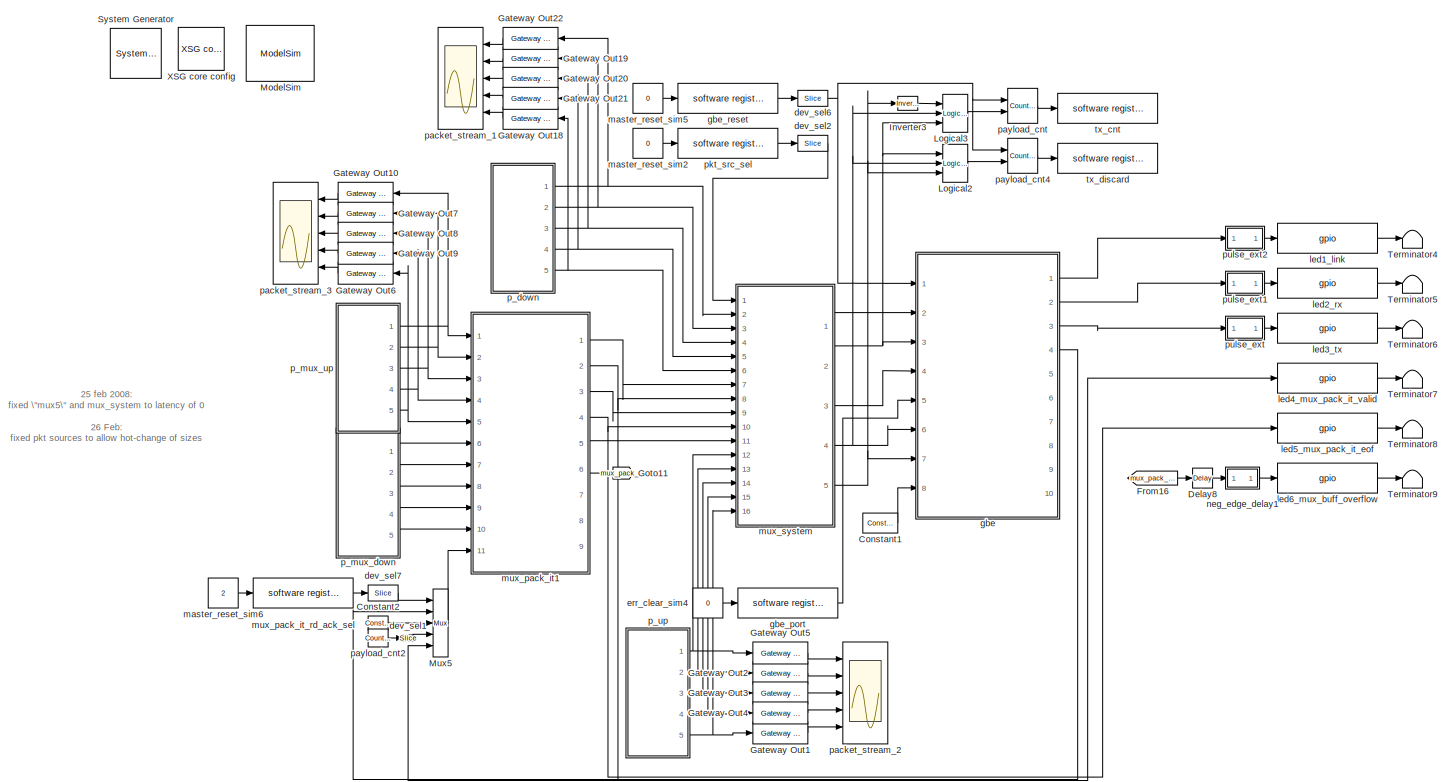
[diagram: root canvas - part 1/1, most of the canvas]
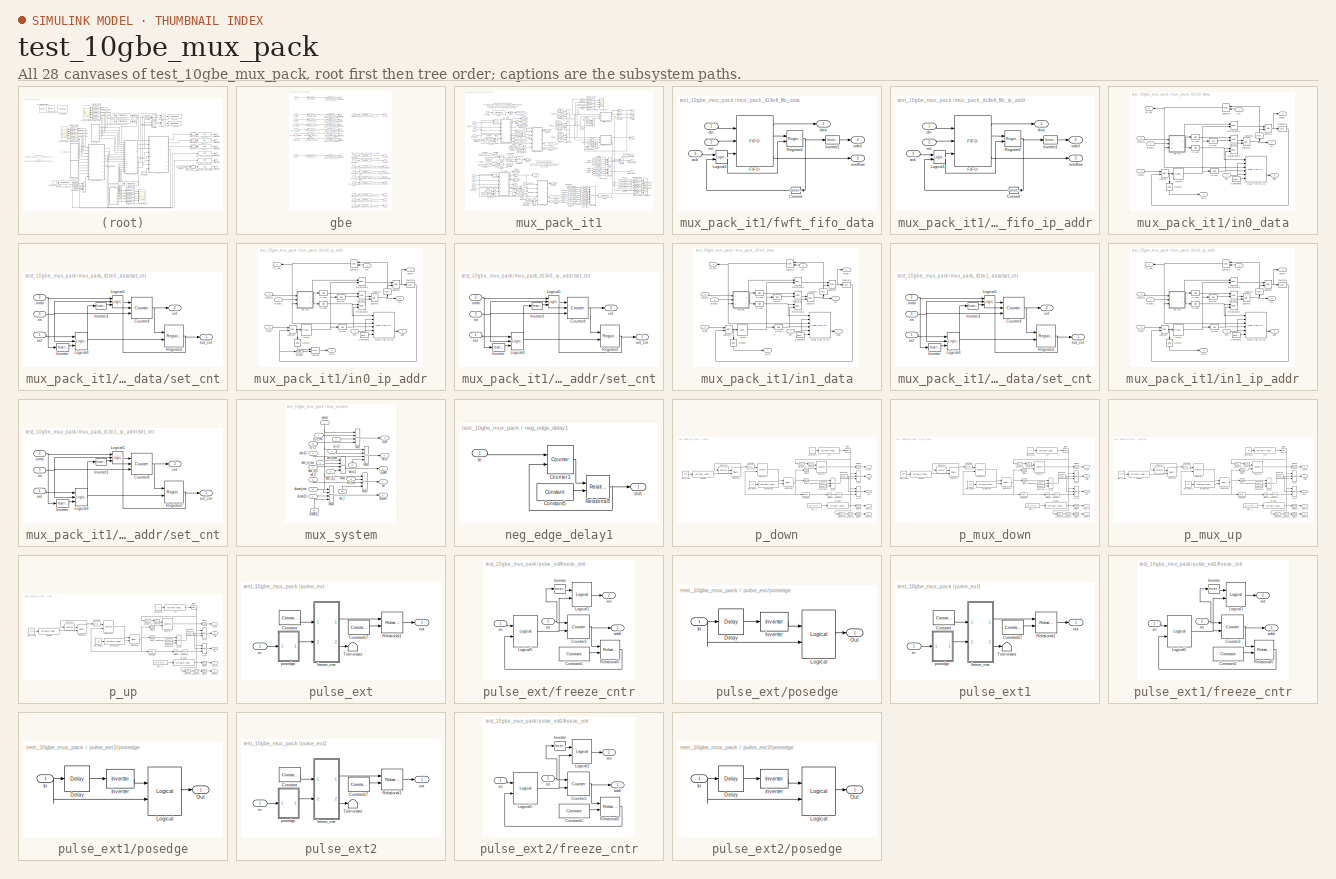
[diagram: thumbnail index - all 28 canvases of the model, root first then tree order]
MODEL test_10gbe_mux_pack
KIND model
BLOCK [Reference]  System Generator  REF=xbsIndex_r3/ System Generator
  AttributesFormatString = System\\nGenerator
  Ports = []
  ShowPortLabels = on
  SourceBlock = xbsIndex_r3/ System Generator
  SourceType = Xilinx System Generator
  Tag = genX
  UserData = DataTag0
  UserDataPersistent = on
  core_generation = According to Block Masks
  dbl_ovrd = According to Block Masks
  deprecated_control = off
  directory = ./test_10gbe_mux_pack/sysgen
  eval_field = 0
  incr_netlist = off
  package = ff1704
  part = xc2vp70
  run_coregen = off
  simulink_period = 1
  speed = -7
  synthesis_tool = XST
  sysclk_period = 4.878
  testbench = off
  trim_vbits = Everywhere in SubSystem
  xilinxfamily = Virtex2P
BLOCK [Reference] Constant1  REF=xbsIndex_r3/Constant
  Ports = [0, 1]
  SourceBlock = xbsIndex_r3/Constant
  SourceType = Xilinx Constant Block
  arith_type = Boolean
  bin_pt = 0
  carry = CIN
  const = 1
  dbl_ovrd = off
  equ = P=C
  explicit_period = on
  inp1 = P
  inp2 = PCIN>>17
  iostate = 0
  n_bits = 1
  opr = +
  opselect = C
  period = 1
BLOCK [Reference] Constant2  REF=xbsIndex_r3/Constant
  Ports = [0, 1]
  SourceBlock = xbsIndex_r3/Constant
  SourceType = Xilinx Constant Block
  arith_type = Boolean
  bin_pt = 0
  carry = CIN
  const = 1
  dbl_ovrd = off
  equ = P=C
  explicit_period = on
  inp1 = P
  inp2 = PCIN>>17
  iostate = 0
  n_bits = 1
  opr = +
  opselect = C
  period = 1
BLOCK [Reference] Delay8  REF=xbsIndex_r3/Delay
  Ports = [1, 1]
  SourceBlock = xbsIndex_r3/Delay
  SourceType = Xilinx Delay Block
  accept_only_valid = off
  dbl_ovrd = off
  en = off
  explicit_period = off
  init_zero = on
  latency = 1
  period = 1
  reg_retiming = off
  show_param = off
  xl_area = [0, 0, 0, 0, 0, 0, 0]
  xl_use_area = off
BLOCK [From] From16
  CloseFcn = tagdialog Close
  GotoTag = mux_pack_it_overflow
BLOCK [Reference] Gateway Out1  REF=xbsIndex_r3/Gateway Out
  LOCs = {}
  Ports = [1, 1]
  SourceBlock = xbsIndex_r3/Gateway Out
  SourceType = Xilinx Gateway Out
  arith_type = Boolean
  bin_pt = 6
  hdl_port = on
  locs_specified = off
  nbits = 8
  needs_fixed_name = off
  output_type = Double
  overflow = Wrap
  quantization = Truncate
  show_param = off
  timing_constraint = None
  xl_area = [0, 0, 0, 0, 0, 0, 0]
  xl_use_area = off
BLOCK [Reference] Gateway Out10  REF=xbsIndex_r3/Gateway Out
  LOCs = {}
  Ports = [1, 1]
  SourceBlock = xbsIndex_r3/Gateway Out
  SourceType = Xilinx Gateway Out
  arith_type = Boolean
  bin_pt = 6
  hdl_port = on
  locs_specified = off
  nbits = 8
  needs_fixed_name = off
  output_type = Double
  overflow = Wrap
  quantization = Truncate
  show_param = off
  timing_constraint = None
  xl_area = [0, 0, 0, 0, 0, 0, 0]
  xl_use_area = off
BLOCK [Reference] Gateway Out18  REF=xbsIndex_r3/Gateway Out
  LOCs = {}
  Ports = [1, 1]
  SourceBlock = xbsIndex_r3/Gateway Out
  SourceType = Xilinx Gateway Out
  arith_type = Boolean
  bin_pt = 6
  hdl_port = on
  locs_specified = off
  nbits = 8
  needs_fixed_name = off
  output_type = Double
  overflow = Wrap
  quantization = Truncate
  show_param = off
  timing_constraint = None
  xl_area = [0, 0, 0, 0, 0, 0, 0]
  xl_use_area = off
BLOCK [Reference] Gateway Out19  REF=xbsIndex_r3/Gateway Out
  LOCs = {}
  Ports = [1, 1]
  SourceBlock = xbsIndex_r3/Gateway Out
  SourceType = Xilinx Gateway Out
  arith_type = Boolean
  bin_pt = 6
  hdl_port = on
  locs_specified = off
  nbits = 8
  needs_fixed_name = off
  output_type = Double
  overflow = Wrap
  quantization = Truncate
  show_param = off
  timing_constraint = None
  xl_area = [0, 0, 0, 0, 0, 0, 0]
  xl_use_area = off
BLOCK [Reference] Gateway Out2  REF=xbsIndex_r3/Gateway Out
  LOCs = {}
  Ports = [1, 1]
  SourceBlock = xbsIndex_r3/Gateway Out
  SourceType = Xilinx Gateway Out
  arith_type = Boolean
  bin_pt = 6
  hdl_port = on
  locs_specified = off
  nbits = 8
  needs_fixed_name = off
  output_type = Double
  overflow = Wrap
  quantization = Truncate
  show_param = off
  timing_constraint = None
  xl_area = [0, 0, 0, 0, 0, 0, 0]
  xl_use_area = off
BLOCK [Reference] Gateway Out20  REF=xbsIndex_r3/Gateway Out
  LOCs = {}
  Ports = [1, 1]
  SourceBlock = xbsIndex_r3/Gateway Out
  SourceType = Xilinx Gateway Out
  arith_type = Boolean
  bin_pt = 6
  hdl_port = on
  locs_specified = off
  nbits = 8
  needs_fixed_name = off
  output_type = Double
  overflow = Wrap
  quantization = Truncate
  show_param = off
  timing_constraint = None
  xl_area = [0, 0, 0, 0, 0, 0, 0]
  xl_use_area = off
BLOCK [Reference] Gateway Out21  REF=xbsIndex_r3/Gateway Out
  LOCs = {}
  Ports = [1, 1]
  SourceBlock = xbsIndex_r3/Gateway Out
  SourceType = Xilinx Gateway Out
  arith_type = Boolean
  bin_pt = 6
  hdl_port = on
  locs_specified = off
  nbits = 8
  needs_fixed_name = off
  output_type = Double
  overflow = Wrap
  quantization = Truncate
  show_param = off
  timing_constraint = None
  xl_area = [0, 0, 0, 0, 0, 0, 0]
  xl_use_area = off
BLOCK [Reference] Gateway Out22  REF=xbsIndex_r3/Gateway Out
  LOCs = {}
  Ports = [1, 1]
  SourceBlock = xbsIndex_r3/Gateway Out
  SourceType = Xilinx Gateway Out
  arith_type = Boolean
  bin_pt = 6
  hdl_port = on
  locs_specified = off
  nbits = 8
  needs_fixed_name = off
  output_type = Double
  overflow = Wrap
  quantization = Truncate
  show_param = off
  timing_constraint = None
  xl_area = [0, 0, 0, 0, 0, 0, 0]
  xl_use_area = off
BLOCK [Reference] Gateway Out3  REF=xbsIndex_r3/Gateway Out
  LOCs = {}
  Ports = [1, 1]
  SourceBlock = xbsIndex_r3/Gateway Out
  SourceType = Xilinx Gateway Out
  arith_type = Boolean
  bin_pt = 6
  hdl_port = on
  locs_specified = off
  nbits = 8
  needs_fixed_name = off
  output_type = Double
  overflow = Wrap
  quantization = Truncate
  show_param = off
  timing_constraint = None
  xl_area = [0, 0, 0, 0, 0, 0, 0]
  xl_use_area = off
BLOCK [Reference] Gateway Out4  REF=xbsIndex_r3/Gateway Out
  LOCs = {}
  Ports = [1, 1]
  SourceBlock = xbsIndex_r3/Gateway Out
  SourceType = Xilinx Gateway Out
  arith_type = Boolean
  bin_pt = 6
  hdl_port = on
  locs_specified = off
  nbits = 8
  needs_fixed_name = off
  output_type = Double
  overflow = Wrap
  quantization = Truncate
  show_param = off
  timing_constraint = None
  xl_area = [0, 0, 0, 0, 0, 0, 0]
  xl_use_area = off
BLOCK [Reference] Gateway Out5  REF=xbsIndex_r3/Gateway Out
  LOCs = {}
  Ports = [1, 1]
  SourceBlock = xbsIndex_r3/Gateway Out
  SourceType = Xilinx Gateway Out
  arith_type = Boolean
  bin_pt = 6
  hdl_port = on
  locs_specified = off
  nbits = 8
  needs_fixed_name = off
  output_type = Double
  overflow = Wrap
  quantization = Truncate
  show_param = off
  timing_constraint = None
  xl_area = [0, 0, 0, 0, 0, 0, 0]
  xl_use_area = off
BLOCK [Reference] Gateway Out6  REF=xbsIndex_r3/Gateway Out
  LOCs = {}
  Ports = [1, 1]
  SourceBlock = xbsIndex_r3/Gateway Out
  SourceType = Xilinx Gateway Out
  arith_type = Boolean
  bin_pt = 6
  hdl_port = on
  locs_specified = off
  nbits = 8
  needs_fixed_name = off
  output_type = Double
  overflow = Wrap
  quantization = Truncate
  show_param = off
  timing_constraint = None
  xl_area = [0, 0, 0, 0, 0, 0, 0]
  xl_use_area = off
BLOCK [Reference] Gateway Out7  REF=xbsIndex_r3/Gateway Out
  LOCs = {}
  Ports = [1, 1]
  SourceBlock = xbsIndex_r3/Gateway Out
  SourceType = Xilinx Gateway Out
  arith_type = Boolean
  bin_pt = 6
  hdl_port = on
  locs_specified = off
  nbits = 8
  needs_fixed_name = off
  output_type = Double
  overflow = Wrap
  quantization = Truncate
  show_param = off
  timing_constraint = None
  xl_area = [0, 0, 0, 0, 0, 0, 0]
  xl_use_area = off
BLOCK [Reference] Gateway Out8  REF=xbsIndex_r3/Gateway Out
  LOCs = {}
  Ports = [1, 1]
  SourceBlock = xbsIndex_r3/Gateway Out
  SourceType = Xilinx Gateway Out
  arith_type = Boolean
  bin_pt = 6
  hdl_port = on
  locs_specified = off
  nbits = 8
  needs_fixed_name = off
  output_type = Double
  overflow = Wrap
  quantization = Truncate
  show_param = off
  timing_constraint = None
  xl_area = [0, 0, 0, 0, 0, 0, 0]
  xl_use_area = off
BLOCK [Reference] Gateway Out9  REF=xbsIndex_r3/Gateway Out
  LOCs = {}
  Ports = [1, 1]
  SourceBlock = xbsIndex_r3/Gateway Out
  SourceType = Xilinx Gateway Out
  arith_type = Boolean
  bin_pt = 6
  hdl_port = on
  locs_specified = off
  nbits = 8
  needs_fixed_name = off
  output_type = Double
  overflow = Wrap
  quantization = Truncate
  show_param = off
  timing_constraint = None
  xl_area = [0, 0, 0, 0, 0, 0, 0]
  xl_use_area = off
BLOCK [Goto] Goto11
  GotoTag = mux_pack_it_overflow
  TagVisibility = local
BLOCK [Reference] Inverter3  REF=xbsIndex_r3/Inverter
  Ports = [1, 1]
  SourceBlock = xbsIndex_r3/Inverter
  SourceType = Xilinx Inverter
  dbl_ovrd = off
  en = off
  explicit_period = off
  latency = 0
  period = 1
  show_param = off
  xl_area = [0, 0, 0, 0, 0, 0, 0]
  xl_use_area = off
BLOCK [Reference] Logical2  REF=xbsIndex_r3/Logical
  Ports = [3, 1]
  SourceBlock = xbsIndex_r3/Logical
  SourceType = Xilinx Logical Block
  align_bp = on
  arith_type = Unsigned
  bin_pt = 2
  dbl_ovrd = off
  en = off
  explicit_period = on
  inputs = 3
  latency = 0
  logical_function = AND
  n_bits = 8
  period = 1
  precision = Full
  show_param = off
  xl_area = [0, 0, 0, 0, 0, 0, 0]
  xl_use_area = off
BLOCK [Reference] Logical3  REF=xbsIndex_r3/Logical
  Ports = [3, 1]
  SourceBlock = xbsIndex_r3/Logical
  SourceType = Xilinx Logical Block
  align_bp = on
  arith_type = Unsigned
  bin_pt = 2
  dbl_ovrd = off
  en = off
  explicit_period = on
  inputs = 3
  latency = 0
  logical_function = AND
  n_bits = 8
  period = 1
  precision = Full
  show_param = off
  xl_area = [0, 0, 0, 0, 0, 0, 0]
  xl_use_area = off
BLOCK [Reference] ModelSim  REF=xbsIndex_r3/ModelSim
  Ports = []
  SourceBlock = xbsIndex_r3/ModelSim
  SourceType = ModelSim HDL Co-Simulation Interface
  custom_scripts = off
  dir = ./modelsim
  leave_open = on
  skip_compile = off
  startup_timeout = 40
  waveform = on
BLOCK [Reference] Mux5  REF=xbsIndex_r3/Mux
  Ports = [5, 1]
  SourceBlock = xbsIndex_r3/Mux
  SourceType = Xilinx Multiplexer Block
  arith_type = Signed  (2's comp)
  bin_pt = 2
  dbl_ovrd = off
  en = off
  explicit_period = on
  gen_core = off
  inputs = 4
  latency = 0
  mux_type = off
  n_bits = 8
  overflow = Wrap
  period = 1
  precision = Full
  quantization = Truncate
  show_param = off
  use_rpm = off
  xl_area = [0, 0, 0, 0, 0, 0, 0]
  xl_use_area = off
BLOCK [Terminator] Terminator4
BLOCK [Terminator] Terminator5
BLOCK [Terminator] Terminator6
BLOCK [Terminator] Terminator7
BLOCK [Terminator] Terminator8
BLOCK [Terminator] Terminator9
BLOCK [Reference] XSG core config  REF=xps_library/XSG core config  (lib defined in mdl_00b5cec29cd0, mdl_02ab6ecaa3d1, +5 more)
  Ports = []
  ShowPortLabels = on
  SourceBlock = xps_library/XSG core config
  SourceType = xsg core config
  Tag = xps:xsg
  clk_rate = 205
  clk_src = sys_clk2x
  gpio_clk_bit_index = 0
  gpio_clk_io_group = iBOB:sma
  hw_sys = BEE2_usr
  ibob_linux = off
  mpc_type = powerpc405
  sample_period = 1
  synthesis_tool = XST
BLOCK [Reference] dev_sel1  REF=xbsIndex_r3/Slice
  Ports = [1, 1]
  SourceBlock = xbsIndex_r3/Slice
  SourceType = Xilinx Slice Block
  base0 = LSB of Input
  base1 = MSB of Input
  bit0 = 0
  bit1 = 0
  boolean_output = on
  dbl_ovrd = off
  explicit_period = off
  mode = Lower Bit Location + Width
  nbits = 1
  period = 1
BLOCK [Reference] dev_sel2  REF=xbsIndex_r3/Slice
  Ports = [1, 1]
  SourceBlock = xbsIndex_r3/Slice
  SourceType = Xilinx Slice Block
  base0 = LSB of Input
  base1 = MSB of Input
  bit0 = 0
  bit1 = 0
  boolean_output = off
  dbl_ovrd = off
  explicit_period = off
  mode = Lower Bit Location + Width
  nbits = 2
  period = 1
BLOCK [Reference] dev_sel6  REF=xbsIndex_r3/Slice
  Ports = [1, 1]
  SourceBlock = xbsIndex_r3/Slice
  SourceType = Xilinx Slice Block
  base0 = LSB of Input
  base1 = MSB of Input
  bit0 = 0
  bit1 = 0
  boolean_output = on
  dbl_ovrd = off
  explicit_period = off
  mode = Lower Bit Location + Width
  nbits = 1
  period = 1
BLOCK [Reference] dev_sel7  REF=xbsIndex_r3/Slice
  Ports = [1, 1]
  SourceBlock = xbsIndex_r3/Slice
  SourceType = Xilinx Slice Block
  base0 = LSB of Input
  base1 = MSB of Input
  bit0 = 0
  bit1 = 0
  boolean_output = off
  dbl_ovrd = off
  explicit_period = off
  mode = Lower Bit Location + Width
  nbits = 2
  period = 1
BLOCK [Constant] err_clear_sim4
  Value = 0
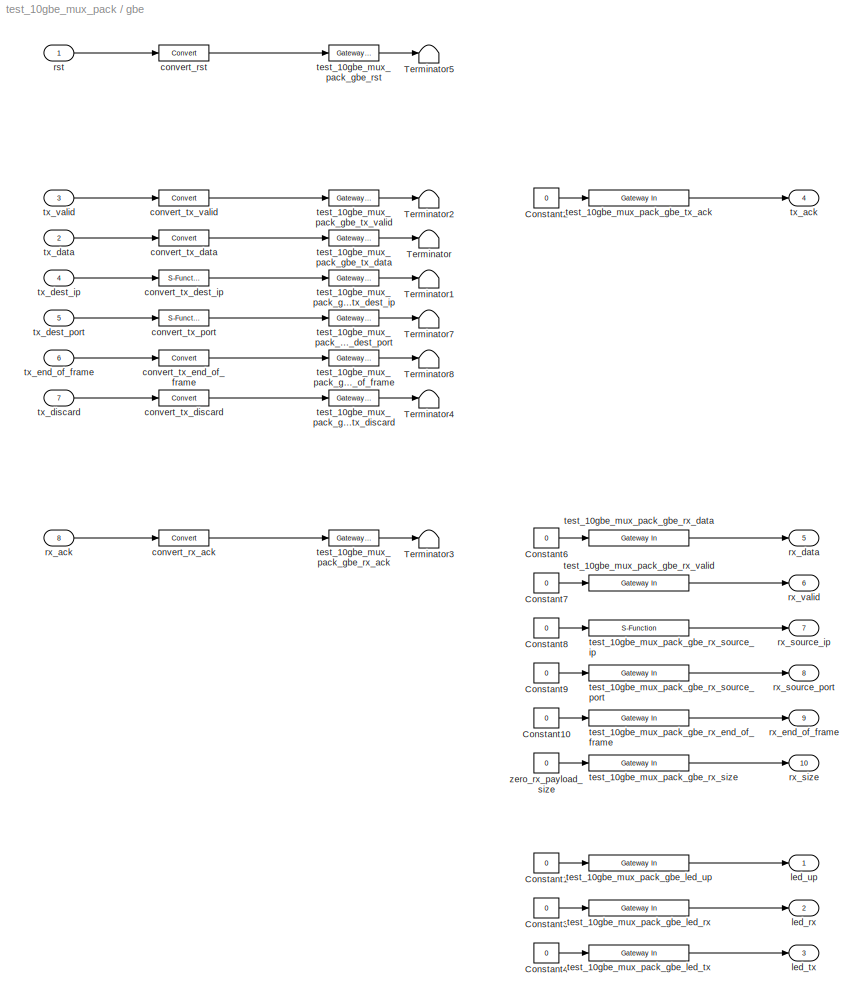
BLOCK [SubSystem] gbe
  AncestorBlock = xps_library/ten_GbE
  MaskCallbackString = ||myname=gcb;\nif strcmp(get_param(myname, 'show_param'), 'on')\n    set_param(myname, 'MaskVisibilities', {'on','on','on','on', 'on'});\nelse\n    set_param(myname, 'MaskVisibilities', {'on','on','on','off','off'});\nend||
  MaskEnableString = on,on,on,on,on
  MaskIconFrame = on
  MaskIconOpaque = on
  MaskIconRotate = none
  MaskIconUnits = autoscale
  MaskInitialization = tengbe_mask;
  MaskPromptString = Port|Use light-weight MAC: Warning --> it DOES NOT check any CRC on receive|---------------------- Show Implementation Parameters -----------------------------------------------------------------------------------|Pre-emphasis|Differential swing
  MaskSelfModifiable = on
  MaskStyleString = popup(iBOB:0|iBOB:1|BEE2_ctrl:0|BEE2_ctrl:1|BEE2_usr:0|BEE2_usr:1|BEE2_usr:2|BEE2_usr:3|CORR:0),checkbox,checkbox,popup(0|1|2|3),popup(400|500|600|700|800)
  MaskTabNameString = ,,,,
  MaskToolTipString = on,on,on,on,on
  MaskTunableValueString = off,off,off,off,off
  MaskValueString = BEE2_usr:2|on|off|3|800
  MaskVarAliasString = ,,,,
  MaskVariables = port=@1;mac_lite=@2;show_param=&3;pre_emph=@4;swing=@5;
  MaskVisibilityString = on,on,on,off,off
  MinAlgLoopOccurrences = off
  Ports = [8, 10]
  RTWSystemCode = Auto
  Tag = xps:tengbe
  TreatAsAtomicUnit = off
BLOCK [Constant] gbe/Constant1
  Value = 0
BLOCK [Constant] gbe/Constant10
  Value = 0
BLOCK [Constant] gbe/Constant2
  Value = 0
BLOCK [Constant] gbe/Constant3
  Value = 0
BLOCK [Constant] gbe/Constant4
  Value = 0
BLOCK [Constant] gbe/Constant6
  Value = 0
BLOCK [Constant] gbe/Constant7
  Value = 0
BLOCK [Constant] gbe/Constant8
  Value = 0
BLOCK [Constant] gbe/Constant9
  Value = 0
BLOCK [Terminator] gbe/Terminator
BLOCK [Terminator] gbe/Terminator1
BLOCK [Terminator] gbe/Terminator2
BLOCK [Terminator] gbe/Terminator3
BLOCK [Terminator] gbe/Terminator4
BLOCK [Terminator] gbe/Terminator5
BLOCK [Terminator] gbe/Terminator7
BLOCK [Terminator] gbe/Terminator8
BLOCK [Reference] gbe/convert_rst  REF=xbsIndex_r3/Convert
  Ports = [1, 1]
  SourceBlock = xbsIndex_r3/Convert
  SourceType = Xilinx Converter Block
  arith_type = Boolean
  bin_pt = 0
  dbl_ovrd = off
  explicit_period = off
  inserted_by_tool = off
  latency = 0
  n_bits = 64
  overflow = Wrap
  period = 1
  pipeline = off
  quantization = Truncate
  show_param = off
  xl_area = [0, 0, 0, 0, 0, 0, 0]
  xl_use_area = off
BLOCK [Reference] gbe/convert_rx_ack  REF=xbsIndex_r3/Convert
  Ports = [1, 1]
  SourceBlock = xbsIndex_r3/Convert
  SourceType = Xilinx Converter Block
  arith_type = Boolean
  bin_pt = 0
  dbl_ovrd = off
  explicit_period = off
  inserted_by_tool = off
  latency = 0
  n_bits = 64
  overflow = Wrap
  period = 1
  pipeline = off
  quantization = Truncate
  show_param = off
  xl_area = [0, 0, 0, 0, 0, 0, 0]
  xl_use_area = off
BLOCK [Reference] gbe/convert_tx_data  REF=xbsIndex_r3/Convert
  Ports = [1, 1]
  SourceBlock = xbsIndex_r3/Convert
  SourceType = Xilinx Converter Block
  arith_type = Unsigned
  bin_pt = 0
  dbl_ovrd = off
  explicit_period = off
  inserted_by_tool = off
  latency = 0
  n_bits = 64
  overflow = Wrap
  period = 1
  pipeline = off
  quantization = Truncate
  show_param = off
  xl_area = [0, 0, 0, 0, 0, 0, 0]
  xl_use_area = off
BLOCK [S-Function] gbe/convert_tx_dest_ip
  AncestorBlock = xbsIndex_r3/Convert
  FunctionName = xlconvert
  MaskCallbackString = xlconvertCallback||||||xlMagicCallback|||xlShowIPCallback||||
  MaskDescription = Type conversion block. The input is presented at the output after quantization and overflow effects.\n\nHardware notes: Additional hardware is used when rounding or saturation is selected and output width is less than the input width.
  MaskDisplay = patch([0 iWidth iWidth 0],[0 0 iHeight iHeight] , bg);\npatch(logoX,logoY , fg);\ntext(zstrx,zstry,zstr);\ntext(zstrx+5,zstry+5,zpstr);\nport_label('output',1,'cast');\nplot([0 0 iWidth iWidth 0], [0 iHeight iHeight 0 0]);\n
  MaskEnableString = on,on,on,on,on,on,on,on,on,on,on,on,on,on
  MaskHelp = eval('xlWeb(xlhtmldoclink(''Convert''))');
  MaskIconFrame = off
  MaskIconOpaque = off
  MaskIconRotate = none
  MaskIconUnits = autoscale
  MaskInitialization = [designRoot, family, part, speed, package, simulinkPeriod, sysclkPeriod, dbl_ovrd, trimVbit] = xlSysgenSettings(gcb,1,1);\nif (arith_type==1)\n  bool = 1;\nelse\n  bool = 0;\n  arith_type = arith_type-1;\nend\nzstr=''; zpstr='';\nif latency > 0\n  zstr = 'z';\n  zpstr = sprintf('-%d', latency);\nend\n[bg,fg] = xlcmap('XBlock',dbl_ovrd);\nif (inserted_by_tool)\n  bg = [1.00 0.50 0.25];\nend\niPos =...<+498ch>
  MaskPromptString = Output Type|Number of Bits|Binary Point|Quantization Behavior|Overflow Behavior|Latency|Use Explicit Sample Period|Sample Period|Override with Doubles|---------------------- Show Implementation Parameters -----------------------------------------------------------------------------------|Hidden Parameter:  inserted_by_tool|      Pipeline to Greatest Extent Possible|FPGA Area [Slices, FFs, BRAMs, L...<+59ch>
  MaskStyleString = popup(Boolean|Unsigned|Signed  (2's comp)),edit,edit,popup(Truncate|Round  (unbiased: +/- Inf)|Round  (unbiased: Even Values)),popup(Wrap|Saturate|Error),edit,checkbox,edit,checkbox,checkbox,checkbox,checkbox,edit,checkbox
  MaskTabNameString = ,,,,,,,,,,,,,
  MaskToolTipString = on,on,on,on,on,on,on,on,on,on,on,on,on,on
  MaskTunableValueString = off,off,off,off,off,off,off,off,off,off,off,off,on,on
  MaskType = Xilinx Converter Block
  MaskValueString = Unsigned|32|0|Truncate|Wrap|0|off|1|off|off|off|off|[0, 0, 0, 0, 0, 0, 0]|off
  MaskVarAliasString = ,,,,,,,,,,,,,
  MaskVariables = arith_type=@1;n_bits=@2;bin_pt=@3;quantization=@4;overflow=@5;latency=@6;explicit_period=@7;period=@8;dbl_ovrd=@9;show_param=@10;inserted_by_tool=@11;pipeline=@12;xl_area=@13;xl_use_area=@14;
  MaskVisibilityString = on,on,on,on,on,on,on,off,on,on,off,off,off,off
  Parameters = sfcn_mwsv__
  Ports = [1, 1]
BLOCK [Reference] gbe/convert_tx_discard  REF=xbsIndex_r3/Convert
  Ports = [1, 1]
  SourceBlock = xbsIndex_r3/Convert
  SourceType = Xilinx Converter Block
  arith_type = Boolean
  bin_pt = 0
  dbl_ovrd = off
  explicit_period = off
  inserted_by_tool = off
  latency = 0
  n_bits = 1
  overflow = Wrap
  period = 1
  pipeline = off
  quantization = Truncate
  show_param = off
  xl_area = [0, 0, 0, 0, 0, 0, 0]
  xl_use_area = off
BLOCK [Reference] gbe/convert_tx_end_of_frame  REF=xbsIndex_r3/Convert
  Ports = [1, 1]
  SourceBlock = xbsIndex_r3/Convert
  SourceType = Xilinx Converter Block
  arith_type = Boolean
  bin_pt = 0
  dbl_ovrd = off
  explicit_period = off
  inserted_by_tool = off
  latency = 0
  n_bits = 1
  overflow = Wrap
  period = 1
  pipeline = off
  quantization = Truncate
  show_param = off
  xl_area = [0, 0, 0, 0, 0, 0, 0]
  xl_use_area = off
BLOCK [S-Function] gbe/convert_tx_port
  AncestorBlock = xbsIndex_r3/Convert
  FunctionName = xlconvert
  MaskCallbackString = xlconvertCallback||||||xlMagicCallback|||xlShowIPCallback||||
  MaskDescription = Type conversion block. The input is presented at the output after quantization and overflow effects.\n\nHardware notes: Additional hardware is used when rounding or saturation is selected and output width is less than the input width.
  MaskDisplay = patch([0 iWidth iWidth 0],[0 0 iHeight iHeight] , bg);\npatch(logoX,logoY , fg);\ntext(zstrx,zstry,zstr);\ntext(zstrx+5,zstry+5,zpstr);\nport_label('output',1,'cast');\nplot([0 0 iWidth iWidth 0], [0 iHeight iHeight 0 0]);\n
  MaskEnableString = on,on,on,on,on,on,on,on,on,on,on,on,on,on
  MaskHelp = eval('xlWeb(xlhtmldoclink(''Convert''))');
  MaskIconFrame = off
  MaskIconOpaque = off
  MaskIconRotate = none
  MaskIconUnits = autoscale
  MaskInitialization = [designRoot, family, part, speed, package, simulinkPeriod, sysclkPeriod, dbl_ovrd, trimVbit] = xlSysgenSettings(gcb,1,1);\nif (arith_type==1)\n  bool = 1;\nelse\n  bool = 0;\n  arith_type = arith_type-1;\nend\nzstr=''; zpstr='';\nif latency > 0\n  zstr = 'z';\n  zpstr = sprintf('-%d', latency);\nend\n[bg,fg] = xlcmap('XBlock',dbl_ovrd);\nif (inserted_by_tool)\n  bg = [1.00 0.50 0.25];\nend\niPos =...<+498ch>
  MaskPromptString = Output Type|Number of Bits|Binary Point|Quantization Behavior|Overflow Behavior|Latency|Use Explicit Sample Period|Sample Period|Override with Doubles|---------------------- Show Implementation Parameters -----------------------------------------------------------------------------------|Hidden Parameter:  inserted_by_tool|      Pipeline to Greatest Extent Possible|FPGA Area [Slices, FFs, BRAMs, L...<+59ch>
  MaskStyleString = popup(Boolean|Unsigned|Signed  (2's comp)),edit,edit,popup(Truncate|Round  (unbiased: +/- Inf)|Round  (unbiased: Even Values)),popup(Wrap|Saturate|Error),edit,checkbox,edit,checkbox,checkbox,checkbox,checkbox,edit,checkbox
  MaskTabNameString = ,,,,,,,,,,,,,
  MaskToolTipString = on,on,on,on,on,on,on,on,on,on,on,on,on,on
  MaskTunableValueString = off,off,off,off,off,off,off,off,off,off,off,off,on,on
  MaskType = Xilinx Converter Block
  MaskValueString = Unsigned|16|0|Truncate|Wrap|0|off|1|off|off|off|off|[0, 0, 0, 0, 0, 0, 0]|off
  MaskVarAliasString = ,,,,,,,,,,,,,
  MaskVariables = arith_type=@1;n_bits=@2;bin_pt=@3;quantization=@4;overflow=@5;latency=@6;explicit_period=@7;period=@8;dbl_ovrd=@9;show_param=@10;inserted_by_tool=@11;pipeline=@12;xl_area=@13;xl_use_area=@14;
  MaskVisibilityString = on,on,on,on,on,on,on,off,on,on,off,off,off,off
  Parameters = sfcn_mwsv__
  Ports = [1, 1]
BLOCK [Reference] gbe/convert_tx_valid  REF=xbsIndex_r3/Convert
  Ports = [1, 1]
  SourceBlock = xbsIndex_r3/Convert
  SourceType = Xilinx Converter Block
  arith_type = Boolean
  bin_pt = 0
  dbl_ovrd = off
  explicit_period = off
  inserted_by_tool = off
  latency = 0
  n_bits = 1
  overflow = Wrap
  period = 1
  pipeline = off
  quantization = Truncate
  show_param = off
  xl_area = [0, 0, 0, 0, 0, 0, 0]
  xl_use_area = off
BLOCK [Outport] gbe/led_rx
  BusOutputAsStruct = off
  IconDisplay = Port number
  Port = 2
BLOCK [Outport] gbe/led_tx
  BusOutputAsStruct = off
  IconDisplay = Port number
  Port = 3
BLOCK [Outport] gbe/led_up
  BusOutputAsStruct = off
  IconDisplay = Port number
BLOCK [Inport] gbe/rst
  IconDisplay = Port number
  LatchInput = off
  Port = 1
BLOCK [Inport] gbe/rx_ack
  IconDisplay = Port number
  LatchInput = off
  Port = 8
BLOCK [Outport] gbe/rx_data
  BusOutputAsStruct = off
  IconDisplay = Port number
  Port = 5
BLOCK [Outport] gbe/rx_end_of_frame
  BusOutputAsStruct = off
  IconDisplay = Port number
  Port = 9
BLOCK [Outport] gbe/rx_size
  BusOutputAsStruct = off
  IconDisplay = Port number
  Port = 10
BLOCK [Outport] gbe/rx_source_ip
  BusOutputAsStruct = off
  IconDisplay = Port number
  Port = 7
BLOCK [Outport] gbe/rx_source_port
  BusOutputAsStruct = off
  IconDisplay = Port number
  Port = 8
BLOCK [Outport] gbe/rx_valid
  BusOutputAsStruct = off
  IconDisplay = Port number
  Port = 6
BLOCK [Reference] gbe/test_10gbe_mux_pack_gbe_led_rx  REF=xbsIndex_r3/Gateway In
  LOCs = {}
  Ports = [1, 1]
  SourceBlock = xbsIndex_r3/Gateway In
  SourceType = Xilinx Gateway In
  arith_type = Boolean
  bin_pt = 0
  dbl_ovrd = off
  locs_specified = off
  n_bits = 1
  needs_fixed_name = off
  overflow = Wrap
  period = 1
  quantization = Truncate
  show_param = off
  timing_constraint = None
  xl_area = [0, 0, 0, 0, 0, 0, 0]
  xl_use_area = off
BLOCK [Reference] gbe/test_10gbe_mux_pack_gbe_led_tx  REF=xbsIndex_r3/Gateway In
  LOCs = {}
  Ports = [1, 1]
  SourceBlock = xbsIndex_r3/Gateway In
  SourceType = Xilinx Gateway In
  arith_type = Boolean
  bin_pt = 0
  dbl_ovrd = off
  locs_specified = off
  n_bits = 1
  needs_fixed_name = off
  overflow = Wrap
  period = 1
  quantization = Truncate
  show_param = off
  timing_constraint = None
  xl_area = [0, 0, 0, 0, 0, 0, 0]
  xl_use_area = off
BLOCK [Reference] gbe/test_10gbe_mux_pack_gbe_led_up  REF=xbsIndex_r3/Gateway In
  LOCs = {}
  Ports = [1, 1]
  SourceBlock = xbsIndex_r3/Gateway In
  SourceType = Xilinx Gateway In
  arith_type = Boolean
  bin_pt = 0
  dbl_ovrd = off
  locs_specified = off
  n_bits = 1
  needs_fixed_name = off
  overflow = Wrap
  period = 1
  quantization = Truncate
  show_param = off
  timing_constraint = None
  xl_area = [0, 0, 0, 0, 0, 0, 0]
  xl_use_area = off
BLOCK [Reference] gbe/test_10gbe_mux_pack_gbe_rst  REF=xbsIndex_r3/Gateway Out
  LOCs = {}
  Ports = [1, 1]
  SourceBlock = xbsIndex_r3/Gateway Out
  SourceType = Xilinx Gateway Out
  arith_type = Boolean
  bin_pt = 6
  hdl_port = on
  locs_specified = off
  nbits = 8
  needs_fixed_name = off
  output_type = Double
  overflow = Wrap
  quantization = Truncate
  show_param = off
  timing_constraint = None
  xl_area = [0, 0, 0, 0, 0, 0, 0]
  xl_use_area = off
BLOCK [Reference] gbe/test_10gbe_mux_pack_gbe_rx_ack  REF=xbsIndex_r3/Gateway Out
  LOCs = {}
  Ports = [1, 1]
  SourceBlock = xbsIndex_r3/Gateway Out
  SourceType = Xilinx Gateway Out
  arith_type = Boolean
  bin_pt = 6
  hdl_port = on
  locs_specified = off
  nbits = 8
  needs_fixed_name = off
  output_type = Double
  overflow = Wrap
  quantization = Truncate
  show_param = off
  timing_constraint = None
  xl_area = [0, 0, 0, 0, 0, 0, 0]
  xl_use_area = off
BLOCK [Reference] gbe/test_10gbe_mux_pack_gbe_rx_data  REF=xbsIndex_r3/Gateway In
  LOCs = {}
  Ports = [1, 1]
  SourceBlock = xbsIndex_r3/Gateway In
  SourceType = Xilinx Gateway In
  arith_type = Unsigned
  bin_pt = 0
  dbl_ovrd = off
  locs_specified = off
  n_bits = 64
  needs_fixed_name = off
  overflow = Wrap
  period = 1
  quantization = Truncate
  show_param = off
  timing_constraint = None
  xl_area = [0, 0, 0, 0, 0, 0, 0]
  xl_use_area = off
BLOCK [Reference] gbe/test_10gbe_mux_pack_gbe_rx_end_of_frame  REF=xbsIndex_r3/Gateway In
  LOCs = {}
  Ports = [1, 1]
  SourceBlock = xbsIndex_r3/Gateway In
  SourceType = Xilinx Gateway In
  arith_type = Boolean
  bin_pt = 0
  dbl_ovrd = off
  locs_specified = off
  n_bits = 1
  needs_fixed_name = off
  overflow = Wrap
  period = 1
  quantization = Truncate
  show_param = off
  timing_constraint = None
  xl_area = [0, 0, 0, 0, 0, 0, 0]
  xl_use_area = off
BLOCK [Reference] gbe/test_10gbe_mux_pack_gbe_rx_size  REF=xbsIndex_r3/Gateway In
  LOCs = {}
  Ports = [1, 1]
  SourceBlock = xbsIndex_r3/Gateway In
  SourceType = Xilinx Gateway In
  arith_type = Unsigned
  bin_pt = 0
  dbl_ovrd = off
  locs_specified = off
  n_bits = 16
  needs_fixed_name = off
  overflow = Wrap
  period = 1
  quantization = Truncate
  show_param = off
  timing_constraint = None
  xl_area = [0, 0, 0, 0, 0, 0, 0]
  xl_use_area = off
BLOCK [S-Function] gbe/test_10gbe_mux_pack_gbe_rx_source_ip
  AncestorBlock = xbsIndex_r3/Gateway In
  FunctionName = xlgatewayin
  MaskCallbackString = xlgatewayinCallback|||||||xlgatewayinCallback||||xlShowIPCallback||
  MaskDescription = Gateway in block.  Converts inputs of type Simulink integer, double and fixed point to  Xilinx fixed point type.\n\nHardware notes:  In hardware these blocks become top level input ports.
  MaskDisplay = patch([0 iWidth iWidth 0],[0 0 iHeight iHeight] , bg);\npatch(logoX,logoY , fg);\nport_label('input',1,'dbl');\nport_label('output',1,'fpt');\n\n;plot([0 0 iWidth iWidth 0], [0 iHeight iHeight 0 0]);\n
  MaskEnableString = on,on,on,on,on,on,on,on,on,off,on,on,on,on
  MaskHelp = eval('xlWeb(xlhtmldoclink(''Gateway In''))');
  MaskIconFrame = off
  MaskIconOpaque = on
  MaskIconRotate = none
  MaskIconUnits = autoscale
  MaskInitialization = [designRoot, family, part, speed, package, simulinkPeriod, sysclkPeriod, dbl_ovrd, trimVbit] = xlSysgenSettings(gcb,1,0);\ntrimVbit = 1;\n[bg,fg] = xlcmap('IO',dbl_ovrd);\niPos = get_param(gcb,'Position');\niWidth=iPos(3)-iPos(1); iHeight=iPos(4)-iPos(2);\niCx=iWidth/2;\niCy=iHeight/2;\n[logoX, logoY] = xlogo(iPos);\n\n
  MaskPromptString = Output Data Type|Number of Bits|Binary Point|Quantization|Overflow|Sample Period|IOB Timing Constraint|Specify IOB Location Constraints|IOB Pad Locations (specify as cell array {'MSB', ..., 'LSB'})|Do Not Prepend Hierarchy to Port Name|Override with Double|---------------------- Show Implementation Parameters -----------------------------------------------------------------------------------|FPGA ...<+86ch>
  MaskStyleString = popup(Boolean|Unsigned|Signed  (2's comp)),edit,edit,popup(Truncate|Round  (unbiased: +/- Inf)),popup(Wrap|Saturate|Flag as Error),edit,popup(None|Data Rate|Data Rate;  Set 'FAST' Attribute),checkbox,edit,checkbox,checkbox,checkbox,edit,checkbox
  MaskTabNameString = ,,,,,,,,,,,,,
  MaskToolTipString = on,on,on,on,on,on,on,on,on,on,on,on,on,on
  MaskTunableValueString = off,off,off,off,off,off,off,off,off,off,off,off,on,on
  MaskType = Xilinx Gateway In
  MaskValueString = Unsigned|32|0|Truncate|Wrap|1|None|off|{}|off|off|off|[0, 0, 0, 0, 0, 0, 0]|off
  MaskVarAliasString = ,,,,,,,,,,,,,
  MaskVariables = arith_type=@1;n_bits=@2;bin_pt=@3;quantization=@4;overflow=@5;period=@6;timing_constraint=@7;locs_specified=@8;LOCs=@9;needs_fixed_name=@10;dbl_ovrd=@11;show_param=@12;xl_area=@13;xl_use_area=@14;
  MaskVisibilityString = on,on,on,on,on,on,on,on,off,off,on,on,off,off
  Parameters = arith_type, n_bits, bin_pt, quantization, overflow,  gcb, period, dbl_ovrd, locs_specified, LOCs, timing_constraint, simulinkPeriod, designRoot, 0
  Ports = [1, 1]
BLOCK [Reference] gbe/test_10gbe_mux_pack_gbe_rx_source_port  REF=xbsIndex_r3/Gateway In
  LOCs = {}
  Ports = [1, 1]
  SourceBlock = xbsIndex_r3/Gateway In
  SourceType = Xilinx Gateway In
  arith_type = Unsigned
  bin_pt = 0
  dbl_ovrd = off
  locs_specified = off
  n_bits = 16
  needs_fixed_name = off
  overflow = Wrap
  period = 1
  quantization = Truncate
  show_param = off
  timing_constraint = None
  xl_area = [0, 0, 0, 0, 0, 0, 0]
  xl_use_area = off
BLOCK [Reference] gbe/test_10gbe_mux_pack_gbe_rx_valid  REF=xbsIndex_r3/Gateway In
  LOCs = {}
  Ports = [1, 1]
  SourceBlock = xbsIndex_r3/Gateway In
  SourceType = Xilinx Gateway In
  arith_type = Boolean
  bin_pt = 0
  dbl_ovrd = off
  locs_specified = off
  n_bits = 1
  needs_fixed_name = off
  overflow = Wrap
  period = 1
  quantization = Truncate
  show_param = off
  timing_constraint = None
  xl_area = [0, 0, 0, 0, 0, 0, 0]
  xl_use_area = off
BLOCK [Reference] gbe/test_10gbe_mux_pack_gbe_tx_ack  REF=xbsIndex_r3/Gateway In
  LOCs = {}
  Ports = [1, 1]
  SourceBlock = xbsIndex_r3/Gateway In
  SourceType = Xilinx Gateway In
  arith_type = Boolean
  bin_pt = 0
  dbl_ovrd = off
  locs_specified = off
  n_bits = 1
  needs_fixed_name = off
  overflow = Wrap
  period = 1
  quantization = Truncate
  show_param = off
  timing_constraint = None
  xl_area = [0, 0, 0, 0, 0, 0, 0]
  xl_use_area = off
BLOCK [Reference] gbe/test_10gbe_mux_pack_gbe_tx_data  REF=xbsIndex_r3/Gateway Out
  LOCs = {}
  Ports = [1, 1]
  SourceBlock = xbsIndex_r3/Gateway Out
  SourceType = Xilinx Gateway Out
  arith_type = Boolean
  bin_pt = 6
  hdl_port = on
  locs_specified = off
  nbits = 8
  needs_fixed_name = off
  output_type = Double
  overflow = Wrap
  quantization = Truncate
  show_param = off
  timing_constraint = None
  xl_area = [0, 0, 0, 0, 0, 0, 0]
  xl_use_area = off
BLOCK [Reference] gbe/test_10gbe_mux_pack_gbe_tx_dest_ip  REF=xbsIndex_r3/Gateway Out
  LOCs = {}
  Ports = [1, 1]
  SourceBlock = xbsIndex_r3/Gateway Out
  SourceType = Xilinx Gateway Out
  arith_type = Boolean
  bin_pt = 6
  hdl_port = on
  locs_specified = off
  nbits = 8
  needs_fixed_name = off
  output_type = Double
  overflow = Wrap
  quantization = Truncate
  show_param = off
  timing_constraint = None
  xl_area = [0, 0, 0, 0, 0, 0, 0]
  xl_use_area = off
BLOCK [Reference] gbe/test_10gbe_mux_pack_gbe_tx_dest_port  REF=xbsIndex_r3/Gateway Out
  LOCs = {}
  Ports = [1, 1]
  SourceBlock = xbsIndex_r3/Gateway Out
  SourceType = Xilinx Gateway Out
  arith_type = Boolean
  bin_pt = 6
  hdl_port = on
  locs_specified = off
  nbits = 8
  needs_fixed_name = off
  output_type = Double
  overflow = Wrap
  quantization = Truncate
  show_param = off
  timing_constraint = None
  xl_area = [0, 0, 0, 0, 0, 0, 0]
  xl_use_area = off
BLOCK [Reference] gbe/test_10gbe_mux_pack_gbe_tx_discard  REF=xbsIndex_r3/Gateway Out
  LOCs = {}
  Ports = [1, 1]
  SourceBlock = xbsIndex_r3/Gateway Out
  SourceType = Xilinx Gateway Out
  arith_type = Boolean
  bin_pt = 6
  hdl_port = on
  locs_specified = off
  nbits = 8
  needs_fixed_name = off
  output_type = Double
  overflow = Wrap
  quantization = Truncate
  show_param = off
  timing_constraint = None
  xl_area = [0, 0, 0, 0, 0, 0, 0]
  xl_use_area = off
BLOCK [Reference] gbe/test_10gbe_mux_pack_gbe_tx_end_of_frame  REF=xbsIndex_r3/Gateway Out
  LOCs = {}
  Ports = [1, 1]
  SourceBlock = xbsIndex_r3/Gateway Out
  SourceType = Xilinx Gateway Out
  arith_type = Boolean
  bin_pt = 6
  hdl_port = on
  locs_specified = off
  nbits = 8
  needs_fixed_name = off
  output_type = Double
  overflow = Wrap
  quantization = Truncate
  show_param = off
  timing_constraint = None
  xl_area = [0, 0, 0, 0, 0, 0, 0]
  xl_use_area = off
BLOCK [Reference] gbe/test_10gbe_mux_pack_gbe_tx_valid  REF=xbsIndex_r3/Gateway Out
  LOCs = {}
  Ports = [1, 1]
  SourceBlock = xbsIndex_r3/Gateway Out
  SourceType = Xilinx Gateway Out
  arith_type = Boolean
  bin_pt = 6
  hdl_port = on
  locs_specified = off
  nbits = 8
  needs_fixed_name = off
  output_type = Double
  overflow = Wrap
  quantization = Truncate
  show_param = off
  timing_constraint = None
  xl_area = [0, 0, 0, 0, 0, 0, 0]
  xl_use_area = off
BLOCK [Outport] gbe/tx_ack
  BusOutputAsStruct = off
  IconDisplay = Port number
  Port = 4
BLOCK [Inport] gbe/tx_data
  IconDisplay = Port number
  LatchInput = off
  Port = 2
BLOCK [Inport] gbe/tx_dest_ip
  IconDisplay = Port number
  LatchInput = off
  Port = 4
BLOCK [Inport] gbe/tx_dest_port
  IconDisplay = Port number
  LatchInput = off
  Port = 5
BLOCK [Inport] gbe/tx_discard
  IconDisplay = Port number
  LatchInput = off
  Port = 7
BLOCK [Inport] gbe/tx_end_of_frame
  IconDisplay = Port number
  LatchInput = off
  Port = 6
BLOCK [Inport] gbe/tx_valid
  IconDisplay = Port number
  LatchInput = off
  Port = 3
BLOCK [Constant] gbe/zero_rx_payload_size
  Value = 0
BLOCK [Reference] gbe_port  REF=xps_library/software register  (lib defined in mdl_00b5cec29cd0, mdl_02ab6ecaa3d1, +5 more)
  Ports = [1, 1]
  ShowPortLabels = on
  SourceBlock = xps_library/software register
  Tag = xps:sw_reg
  arith_type = Unsigned
  bin_pt = 0
  bitwidth = 32
  gw_name = test_10gbe_mux_pack_gbe_port_user_data_out
  io_dir = From Processor
  sample_period = 1
BLOCK [Reference] gbe_reset  REF=xps_library/software register  (lib defined in mdl_00b5cec29cd0, mdl_02ab6ecaa3d1, +5 more)
  Ports = [1, 1]
  ShowPortLabels = on
  SourceBlock = xps_library/software register
  Tag = xps:sw_reg
  arith_type = Unsigned
  bin_pt = 0
  bitwidth = 32
  gw_name = test_10gbe_mux_pack_gbe_reset_user_data_out
  io_dir = From Processor
  sample_period = 1
BLOCK [Reference] led1_link  REF=xps_library/gpio  (lib defined in mdl_00b5cec29cd0, mdl_02ab6ecaa3d1, +5 more)
  Ports = [1, 1]
  ShowPortLabels = on
  SourceBlock = xps_library/gpio
  SourceType = gpio
  Tag = xps:gpio
  arith_type = Boolean
  bin_pt = 0
  bit_index = 0
  bitwidth = 1
  io_dir = out
  io_group = BEE2_usr:led
  reg_clk_phase = 0
  reg_iob = off
  sample_period = 1
  termination = None
  use_ddr = off
  use_single_ended = off
BLOCK [Reference] led2_rx  REF=xps_library/gpio  (lib defined in mdl_00b5cec29cd0, mdl_02ab6ecaa3d1, +5 more)
  Ports = [1, 1]
  ShowPortLabels = on
  SourceBlock = xps_library/gpio
  SourceType = gpio
  Tag = xps:gpio
  arith_type = Boolean
  bin_pt = 0
  bit_index = 1
  bitwidth = 1
  io_dir = out
  io_group = BEE2_usr:led
  reg_clk_phase = 0
  reg_iob = off
  sample_period = 1
  termination = None
  use_ddr = off
  use_single_ended = off
BLOCK [Reference] led3_tx  REF=xps_library/gpio  (lib defined in mdl_00b5cec29cd0, mdl_02ab6ecaa3d1, +5 more)
  Ports = [1, 1]
  ShowPortLabels = on
  SourceBlock = xps_library/gpio
  SourceType = gpio
  Tag = xps:gpio
  arith_type = Boolean
  bin_pt = 0
  bit_index = 2
  bitwidth = 1
  io_dir = out
  io_group = BEE2_usr:led
  reg_clk_phase = 0
  reg_iob = off
  sample_period = 1
  termination = None
  use_ddr = off
  use_single_ended = off
BLOCK [Reference] led4_mux_pack_it_valid  REF=xps_library/gpio  (lib defined in mdl_00b5cec29cd0, mdl_02ab6ecaa3d1, +5 more)
  Ports = [1, 1]
  ShowPortLabels = on
  SourceBlock = xps_library/gpio
  SourceType = gpio
  Tag = xps:gpio
  arith_type = Boolean
  bin_pt = 0
  bit_index = 3
  bitwidth = 1
  io_dir = out
  io_group = BEE2_usr:led
  reg_clk_phase = 0
  reg_iob = off
  sample_period = 1
  termination = None
  use_ddr = off
  use_single_ended = off
BLOCK [Reference] led5_mux_pack_it_eof  REF=xps_library/gpio  (lib defined in mdl_00b5cec29cd0, mdl_02ab6ecaa3d1, +5 more)
  Ports = [1, 1]
  ShowPortLabels = on
  SourceBlock = xps_library/gpio
  SourceType = gpio
  Tag = xps:gpio
  arith_type = Boolean
  bin_pt = 0
  bit_index = 4
  bitwidth = 1
  io_dir = out
  io_group = BEE2_usr:led
  reg_clk_phase = 0
  reg_iob = off
  sample_period = 1
  termination = None
  use_ddr = off
  use_single_ended = off
BLOCK [Reference] led6_mux_buff_overflow  REF=xps_library/gpio  (lib defined in mdl_00b5cec29cd0, mdl_02ab6ecaa3d1, +5 more)
  Ports = [1, 1]
  ShowPortLabels = on
  SourceBlock = xps_library/gpio
  SourceType = gpio
  Tag = xps:gpio
  arith_type = Boolean
  bin_pt = 0
  bit_index = 5
  bitwidth = 1
  io_dir = out
  io_group = BEE2_usr:led
  reg_clk_phase = 0
  reg_iob = off
  sample_period = 1
  termination = None
  use_ddr = off
  use_single_ended = off
BLOCK [Constant] master_reset_sim2
  Value = 0
BLOCK [Constant] master_reset_sim5
  Value = 0
BLOCK [Constant] master_reset_sim6
  Value = 2
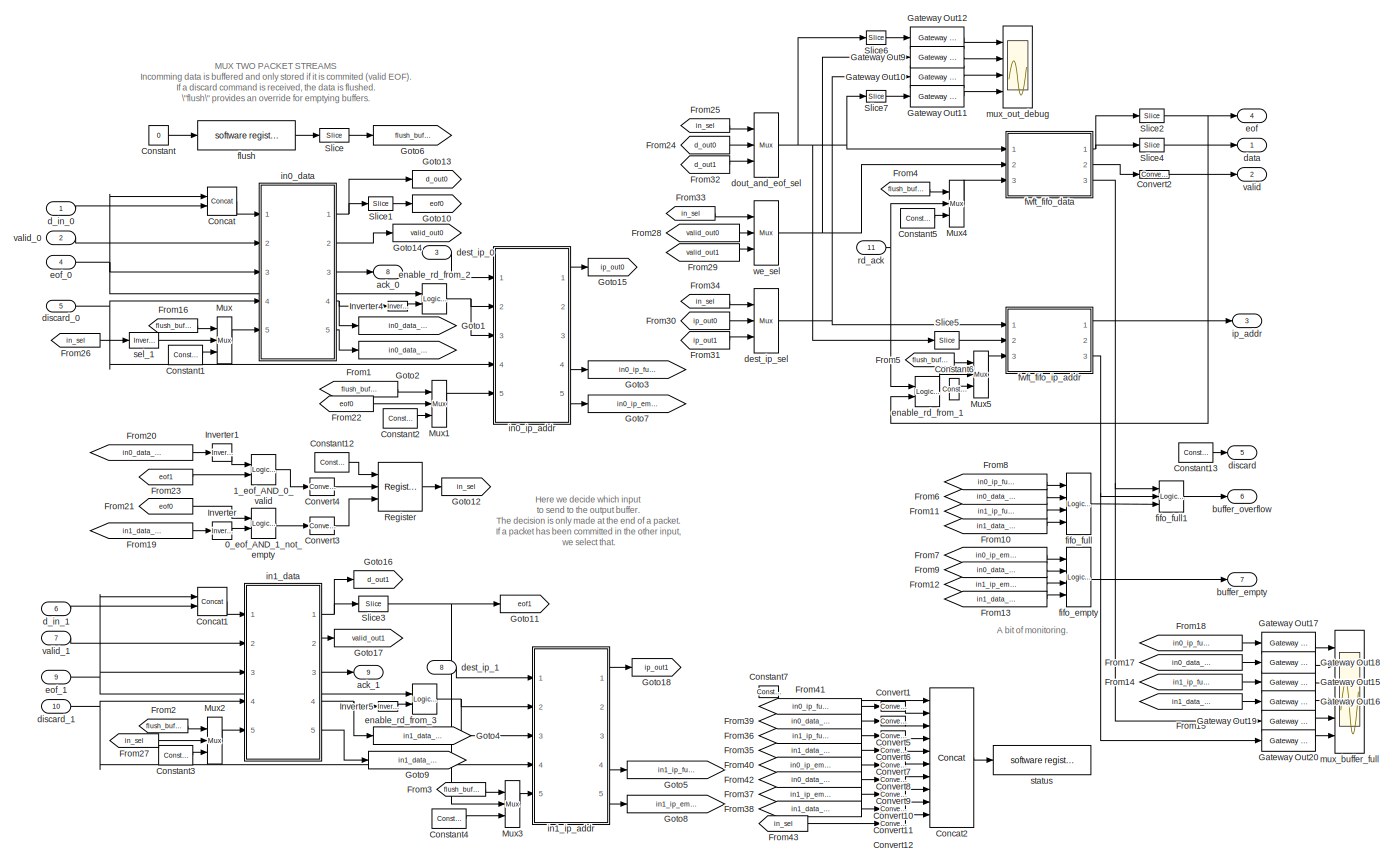
[diagram: mux_pack_it1 - part 1/1, most of the canvas]
BLOCK [SubSystem] mux_pack_it1
  MaskCallbackString = |||
  MaskDescription = This block allows you to mux together two data streams to be sent to the 10GbE core
  MaskEnableString = on,on,on,on
  MaskIconFrame = on
  MaskIconOpaque = on
  MaskIconRotate = none
  MaskIconUnits = autoscale
  MaskPromptString = Input 0: Maximum single packet size (words)|Input 0: Minimum single packet size (words)|Input 1: Maximum single packet size (words)|Input 1: Minimum single packet size (words)
  MaskStyleString = edit,edit,edit,edit
  MaskTabNameString = ,,,
  MaskToolTipString = on,on,on,on
  MaskTunableValueString = off,off,on,on
  MaskType = mux_packets
  MaskValueString = 1500|50|1500|50
  MaskVarAliasString = ,,,
  MaskVariables = max_packet_size_0=@1;min_packet_size_0=@2;max_packet_size_1=@3;min_packet_size_1=@4;
  MaskVisibilityString = on,on,on,on
  MinAlgLoopOccurrences = off
  Ports = [11, 9]
  RTWSystemCode = Auto
  TreatAsAtomicUnit = off
BLOCK [Reference] mux_pack_it1/0_eof_AND_1_not_empty  REF=xbsIndex_r3/Logical
  Ports = [2, 1]
  SourceBlock = xbsIndex_r3/Logical
  SourceType = Xilinx Logical Block
  align_bp = on
  arith_type = Unsigned
  bin_pt = 2
  dbl_ovrd = off
  en = off
  explicit_period = on
  inputs = 2
  latency = 0
  logical_function = AND
  n_bits = 8
  period = 1
  precision = Full
  show_param = off
  xl_area = [0, 0, 0, 0, 0, 0, 0]
  xl_use_area = off
BLOCK [Reference] mux_pack_it1/1_eof_AND_0_valid  REF=xbsIndex_r3/Logical
  Ports = [2, 1]
  SourceBlock = xbsIndex_r3/Logical
  SourceType = Xilinx Logical Block
  align_bp = on
  arith_type = Unsigned
  bin_pt = 2
  dbl_ovrd = off
  en = off
  explicit_period = on
  inputs = 2
  latency = 0
  logical_function = AND
  n_bits = 8
  period = 1
  precision = Full
  show_param = off
  xl_area = [0, 0, 0, 0, 0, 0, 0]
  xl_use_area = off
BLOCK [Reference] mux_pack_it1/Concat  REF=xbsIndex_r3/Concat
  Ports = [2, 1]
  SourceBlock = xbsIndex_r3/Concat
  SourceType = Xilinx Bus Concatenator
  dbl_ovrd = off
  explicit_period = off
  num_inputs = 2
  period = 1
BLOCK [Reference] mux_pack_it1/Concat1  REF=xbsIndex_r3/Concat
  Ports = [2, 1]
  SourceBlock = xbsIndex_r3/Concat
  SourceType = Xilinx Bus Concatenator
  dbl_ovrd = off
  explicit_period = off
  num_inputs = 2
  period = 1
BLOCK [Reference] mux_pack_it1/Concat2  REF=xbsIndex_r3/Concat
  Ports = [10, 1]
  SourceBlock = xbsIndex_r3/Concat
  SourceType = Xilinx Bus Concatenator
  dbl_ovrd = off
  explicit_period = off
  num_inputs = 10
  period = 1
BLOCK [Constant] mux_pack_it1/Constant
  Value = 0
BLOCK [Reference] mux_pack_it1/Constant1  REF=xbsIndex_r3/Constant
  Ports = [0, 1]
  SourceBlock = xbsIndex_r3/Constant
  SourceType = Xilinx Constant Block
  arith_type = Boolean
  bin_pt = 0
  carry = CIN
  const = 1
  dbl_ovrd = off
  equ = P=C
  explicit_period = on
  inp1 = P
  inp2 = PCIN>>17
  iostate = 0
  n_bits = 1
  opr = +
  opselect = C
  period = 1
BLOCK [Reference] mux_pack_it1/Constant12  REF=xbsIndex_r3/Constant
  Ports = [0, 1]
  SourceBlock = xbsIndex_r3/Constant
  SourceType = Xilinx Constant Block
  arith_type = Boolean
  bin_pt = 0
  carry = CIN
  const = 1
  dbl_ovrd = off
  equ = P=C
  explicit_period = on
  inp1 = P
  inp2 = PCIN>>17
  iostate = 0
  n_bits = 1
  opr = +
  opselect = C
  period = 1
BLOCK [Reference] mux_pack_it1/Constant13  REF=xbsIndex_r3/Constant
  Ports = [0, 1]
  SourceBlock = xbsIndex_r3/Constant
  SourceType = Xilinx Constant Block
  arith_type = Boolean
  bin_pt = 0
  carry = CIN
  const = 0
  dbl_ovrd = off
  equ = P=C
  explicit_period = on
  inp1 = P
  inp2 = PCIN>>17
  iostate = 0
  n_bits = 1
  opr = +
  opselect = C
  period = 1
BLOCK [Reference] mux_pack_it1/Constant2  REF=xbsIndex_r3/Constant
  Ports = [0, 1]
  SourceBlock = xbsIndex_r3/Constant
  SourceType = Xilinx Constant Block
  arith_type = Boolean
  bin_pt = 0
  carry = CIN
  const = 1
  dbl_ovrd = off
  equ = P=C
  explicit_period = on
  inp1 = P
  inp2 = PCIN>>17
  iostate = 0
  n_bits = 1
  opr = +
  opselect = C
  period = 1
BLOCK [Reference] mux_pack_it1/Constant3  REF=xbsIndex_r3/Constant
  Ports = [0, 1]
  SourceBlock = xbsIndex_r3/Constant
  SourceType = Xilinx Constant Block
  arith_type = Boolean
  bin_pt = 0
  carry = CIN
  const = 1
  dbl_ovrd = off
  equ = P=C
  explicit_period = on
  inp1 = P
  inp2 = PCIN>>17
  iostate = 0
  n_bits = 1
  opr = +
  opselect = C
  period = 1
BLOCK [Reference] mux_pack_it1/Constant4  REF=xbsIndex_r3/Constant
  Ports = [0, 1]
  SourceBlock = xbsIndex_r3/Constant
  SourceType = Xilinx Constant Block
  arith_type = Boolean
  bin_pt = 0
  carry = CIN
  const = 1
  dbl_ovrd = off
  equ = P=C
  explicit_period = on
  inp1 = P
  inp2 = PCIN>>17
  iostate = 0
  n_bits = 1
  opr = +
  opselect = C
  period = 1
BLOCK [Reference] mux_pack_it1/Constant5  REF=xbsIndex_r3/Constant
  Ports = [0, 1]
  SourceBlock = xbsIndex_r3/Constant
  SourceType = Xilinx Constant Block
  arith_type = Boolean
  bin_pt = 0
  carry = CIN
  const = 1
  dbl_ovrd = off
  equ = P=C
  explicit_period = on
  inp1 = P
  inp2 = PCIN>>17
  iostate = 0
  n_bits = 1
  opr = +
  opselect = C
  period = 1
BLOCK [Reference] mux_pack_it1/Constant6  REF=xbsIndex_r3/Constant
  Ports = [0, 1]
  SourceBlock = xbsIndex_r3/Constant
  SourceType = Xilinx Constant Block
  arith_type = Boolean
  bin_pt = 0
  carry = CIN
  const = 1
  dbl_ovrd = off
  equ = P=C
  explicit_period = on
  inp1 = P
  inp2 = PCIN>>17
  iostate = 0
  n_bits = 1
  opr = +
  opselect = C
  period = 1
BLOCK [Reference] mux_pack_it1/Constant7  REF=xbsIndex_r3/Constant
  Ports = [0, 1]
  SourceBlock = xbsIndex_r3/Constant
  SourceType = Xilinx Constant Block
  arith_type = Unsigned
  bin_pt = 0
  carry = CIN
  const = 0
  dbl_ovrd = off
  equ = P=C
  explicit_period = on
  inp1 = P
  inp2 = PCIN>>17
  iostate = 0
  n_bits = 32-9
  opr = +
  opselect = C
  period = 1
BLOCK [Reference] mux_pack_it1/Convert1  REF=xbsIndex_r3/Convert
  Ports = [1, 1]
  SourceBlock = xbsIndex_r3/Convert
  SourceType = Xilinx Converter Block
  arith_type = Unsigned
  bin_pt = 0
  dbl_ovrd = off
  explicit_period = off
  inserted_by_tool = off
  latency = 0
  n_bits = 1
  overflow = Wrap
  period = 1
  pipeline = off
  quantization = Truncate
  show_param = off
  xl_area = [0, 0, 0, 0, 0, 0, 0]
  xl_use_area = off
BLOCK [Reference] mux_pack_it1/Convert10  REF=xbsIndex_r3/Convert
  Ports = [1, 1]
  SourceBlock = xbsIndex_r3/Convert
  SourceType = Xilinx Converter Block
  arith_type = Unsigned
  bin_pt = 0
  dbl_ovrd = off
  explicit_period = off
  inserted_by_tool = off
  latency = 0
  n_bits = 1
  overflow = Wrap
  period = 1
  pipeline = off
  quantization = Truncate
  show_param = off
  xl_area = [0, 0, 0, 0, 0, 0, 0]
  xl_use_area = off
BLOCK [Reference] mux_pack_it1/Convert11  REF=xbsIndex_r3/Convert
  Ports = [1, 1]
  SourceBlock = xbsIndex_r3/Convert
  SourceType = Xilinx Converter Block
  arith_type = Unsigned
  bin_pt = 0
  dbl_ovrd = off
  explicit_period = off
  inserted_by_tool = off
  latency = 0
  n_bits = 1
  overflow = Wrap
  period = 1
  pipeline = off
  quantization = Truncate
  show_param = off
  xl_area = [0, 0, 0, 0, 0, 0, 0]
  xl_use_area = off
BLOCK [Reference] mux_pack_it1/Convert12  REF=xbsIndex_r3/Convert
  Ports = [1, 1]
  SourceBlock = xbsIndex_r3/Convert
  SourceType = Xilinx Converter Block
  arith_type = Unsigned
  bin_pt = 0
  dbl_ovrd = off
  explicit_period = off
  inserted_by_tool = off
  latency = 0
  n_bits = 1
  overflow = Wrap
  period = 1
  pipeline = off
  quantization = Truncate
  show_param = off
  xl_area = [0, 0, 0, 0, 0, 0, 0]
  xl_use_area = off
BLOCK [Reference] mux_pack_it1/Convert2  REF=xbsIndex_r3/Convert
  Ports = [1, 1]
  SourceBlock = xbsIndex_r3/Convert
  SourceType = Xilinx Converter Block
  arith_type = Boolean
  bin_pt = 6
  dbl_ovrd = off
  explicit_period = off
  inserted_by_tool = off
  latency = 0
  n_bits = 8
  overflow = Wrap
  period = 1
  pipeline = off
  quantization = Truncate
  show_param = off
  xl_area = [0, 0, 0, 0, 0, 0, 0]
  xl_use_area = off
BLOCK [Reference] mux_pack_it1/Convert3  REF=xbsIndex_r3/Convert
  Ports = [1, 1]
  SourceBlock = xbsIndex_r3/Convert
  SourceType = Xilinx Converter Block
  arith_type = Boolean
  bin_pt = 6
  dbl_ovrd = off
  explicit_period = off
  inserted_by_tool = off
  latency = 0
  n_bits = 8
  overflow = Wrap
  period = 1
  pipeline = off
  quantization = Truncate
  show_param = off
  xl_area = [0, 0, 0, 0, 0, 0, 0]
  xl_use_area = off
BLOCK [Reference] mux_pack_it1/Convert4  REF=xbsIndex_r3/Convert
  Ports = [1, 1]
  SourceBlock = xbsIndex_r3/Convert
  SourceType = Xilinx Converter Block
  arith_type = Boolean
  bin_pt = 6
  dbl_ovrd = off
  explicit_period = off
  inserted_by_tool = off
  latency = 0
  n_bits = 8
  overflow = Wrap
  period = 1
  pipeline = off
  quantization = Truncate
  show_param = off
  xl_area = [0, 0, 0, 0, 0, 0, 0]
  xl_use_area = off
BLOCK [Reference] mux_pack_it1/Convert5  REF=xbsIndex_r3/Convert
  Ports = [1, 1]
  SourceBlock = xbsIndex_r3/Convert
  SourceType = Xilinx Converter Block
  arith_type = Unsigned
  bin_pt = 0
  dbl_ovrd = off
  explicit_period = off
  inserted_by_tool = off
  latency = 0
  n_bits = 1
  overflow = Wrap
  period = 1
  pipeline = off
  quantization = Truncate
  show_param = off
  xl_area = [0, 0, 0, 0, 0, 0, 0]
  xl_use_area = off
BLOCK [Reference] mux_pack_it1/Convert6  REF=xbsIndex_r3/Convert
  Ports = [1, 1]
  SourceBlock = xbsIndex_r3/Convert
  SourceType = Xilinx Converter Block
  arith_type = Unsigned
  bin_pt = 0
  dbl_ovrd = off
  explicit_period = off
  inserted_by_tool = off
  latency = 0
  n_bits = 1
  overflow = Wrap
  period = 1
  pipeline = off
  quantization = Truncate
  show_param = off
  xl_area = [0, 0, 0, 0, 0, 0, 0]
  xl_use_area = off
BLOCK [Reference] mux_pack_it1/Convert7  REF=xbsIndex_r3/Convert
  Ports = [1, 1]
  SourceBlock = xbsIndex_r3/Convert
  SourceType = Xilinx Converter Block
  arith_type = Unsigned
  bin_pt = 0
  dbl_ovrd = off
  explicit_period = off
  inserted_by_tool = off
  latency = 0
  n_bits = 1
  overflow = Wrap
  period = 1
  pipeline = off
  quantization = Truncate
  show_param = off
  xl_area = [0, 0, 0, 0, 0, 0, 0]
  xl_use_area = off
BLOCK [Reference] mux_pack_it1/Convert8  REF=xbsIndex_r3/Convert
  Ports = [1, 1]
  SourceBlock = xbsIndex_r3/Convert
  SourceType = Xilinx Converter Block
  arith_type = Unsigned
  bin_pt = 0
  dbl_ovrd = off
  explicit_period = off
  inserted_by_tool = off
  latency = 0
  n_bits = 1
  overflow = Wrap
  period = 1
  pipeline = off
  quantization = Truncate
  show_param = off
  xl_area = [0, 0, 0, 0, 0, 0, 0]
  xl_use_area = off
BLOCK [Reference] mux_pack_it1/Convert9  REF=xbsIndex_r3/Convert
  Ports = [1, 1]
  SourceBlock = xbsIndex_r3/Convert
  SourceType = Xilinx Converter Block
  arith_type = Unsigned
  bin_pt = 0
  dbl_ovrd = off
  explicit_period = off
  inserted_by_tool = off
  latency = 0
  n_bits = 1
  overflow = Wrap
  period = 1
  pipeline = off
  quantization = Truncate
  show_param = off
  xl_area = [0, 0, 0, 0, 0, 0, 0]
  xl_use_area = off
BLOCK [From] mux_pack_it1/From1
  CloseFcn = tagdialog Close
  GotoTag = flush_buffers
BLOCK [From] mux_pack_it1/From10
  CloseFcn = tagdialog Close
  GotoTag = in1_data_full
BLOCK [From] mux_pack_it1/From11
  CloseFcn = tagdialog Close
  GotoTag = in1_ip_full
BLOCK [From] mux_pack_it1/From12
  CloseFcn = tagdialog Close
  GotoTag = in1_ip_empty
BLOCK [From] mux_pack_it1/From13
  CloseFcn = tagdialog Close
  GotoTag = in1_data_empty
BLOCK [From] mux_pack_it1/From14
  CloseFcn = tagdialog Close
  GotoTag = in1_ip_full
BLOCK [From] mux_pack_it1/From15
  CloseFcn = tagdialog Close
  GotoTag = in1_data_full
BLOCK [From] mux_pack_it1/From16
  CloseFcn = tagdialog Close
  GotoTag = flush_buffers
BLOCK [From] mux_pack_it1/From17
  CloseFcn = tagdialog Close
  GotoTag = in0_data_full
BLOCK [From] mux_pack_it1/From18
  CloseFcn = tagdialog Close
  GotoTag = in0_ip_full
BLOCK [From] mux_pack_it1/From19
  CloseFcn = tagdialog Close
  GotoTag = in1_data_empty
BLOCK [From] mux_pack_it1/From2
  CloseFcn = tagdialog Close
  GotoTag = flush_buffers
BLOCK [From] mux_pack_it1/From20
  CloseFcn = tagdialog Close
  GotoTag = in0_data_empty
BLOCK [From] mux_pack_it1/From21
  CloseFcn = tagdialog Close
  GotoTag = eof0
BLOCK [From] mux_pack_it1/From22
  CloseFcn = tagdialog Close
  GotoTag = eof0
BLOCK [From] mux_pack_it1/From23
  CloseFcn = tagdialog Close
  GotoTag = eof1
BLOCK [From] mux_pack_it1/From24
  CloseFcn = tagdialog Close
  GotoTag = d_out0
BLOCK [From] mux_pack_it1/From25
  CloseFcn = tagdialog Close
  GotoTag = in_sel
BLOCK [From] mux_pack_it1/From26
  CloseFcn = tagdialog Close
  GotoTag = in_sel
BLOCK [From] mux_pack_it1/From27
  CloseFcn = tagdialog Close
  GotoTag = in_sel
BLOCK [From] mux_pack_it1/From28
  CloseFcn = tagdialog Close
  GotoTag = valid_out0
BLOCK [From] mux_pack_it1/From29
  CloseFcn = tagdialog Close
  GotoTag = valid_out1
BLOCK [From] mux_pack_it1/From3
  CloseFcn = tagdialog Close
  GotoTag = flush_buffers
BLOCK [From] mux_pack_it1/From30
  CloseFcn = tagdialog Close
  GotoTag = ip_out0
BLOCK [From] mux_pack_it1/From31
  CloseFcn = tagdialog Close
  GotoTag = ip_out1
BLOCK [From] mux_pack_it1/From32
  CloseFcn = tagdialog Close
  GotoTag = d_out1
BLOCK [From] mux_pack_it1/From33
  CloseFcn = tagdialog Close
  GotoTag = in_sel
BLOCK [From] mux_pack_it1/From34
  CloseFcn = tagdialog Close
  GotoTag = in_sel
BLOCK [From] mux_pack_it1/From35
  CloseFcn = tagdialog Close
  GotoTag = in1_data_full
BLOCK [From] mux_pack_it1/From36
  CloseFcn = tagdialog Close
  GotoTag = in1_ip_full
BLOCK [From] mux_pack_it1/From37
  CloseFcn = tagdialog Close
  GotoTag = in1_ip_empty
BLOCK [From] mux_pack_it1/From38
  CloseFcn = tagdialog Close
  GotoTag = in1_data_empty
BLOCK [From] mux_pack_it1/From39
  CloseFcn = tagdialog Close
  GotoTag = in0_data_full
BLOCK [From] mux_pack_it1/From4
  CloseFcn = tagdialog Close
  GotoTag = flush_buffers
BLOCK [From] mux_pack_it1/From40
  CloseFcn = tagdialog Close
  GotoTag = in0_ip_empty
BLOCK [From] mux_pack_it1/From41
  CloseFcn = tagdialog Close
  GotoTag = in0_ip_full
BLOCK [From] mux_pack_it1/From42
  CloseFcn = tagdialog Close
  GotoTag = in0_data_empty
BLOCK [From] mux_pack_it1/From43
  CloseFcn = tagdialog Close
  GotoTag = in_sel
BLOCK [From] mux_pack_it1/From5
  CloseFcn = tagdialog Close
  GotoTag = flush_buffers
BLOCK [From] mux_pack_it1/From6
  CloseFcn = tagdialog Close
  GotoTag = in0_data_full
BLOCK [From] mux_pack_it1/From7
  CloseFcn = tagdialog Close
  GotoTag = in0_ip_empty
BLOCK [From] mux_pack_it1/From8
  CloseFcn = tagdialog Close
  GotoTag = in0_ip_full
BLOCK [From] mux_pack_it1/From9
  CloseFcn = tagdialog Close
  GotoTag = in0_data_empty
BLOCK [Reference] mux_pack_it1/Gateway Out10  REF=xbsIndex_r3/Gateway Out
  LOCs = {}
  Ports = [1, 1]
  SourceBlock = xbsIndex_r3/Gateway Out
  SourceType = Xilinx Gateway Out
  arith_type = Boolean
  bin_pt = 6
  hdl_port = on
  locs_specified = off
  nbits = 8
  needs_fixed_name = off
  output_type = Double
  overflow = Wrap
  quantization = Truncate
  show_param = off
  timing_constraint = None
  xl_area = [0, 0, 0, 0, 0, 0, 0]
  xl_use_area = off
BLOCK [Reference] mux_pack_it1/Gateway Out11  REF=xbsIndex_r3/Gateway Out
  LOCs = {}
  Ports = [1, 1]
  SourceBlock = xbsIndex_r3/Gateway Out
  SourceType = Xilinx Gateway Out
  arith_type = Boolean
  bin_pt = 6
  hdl_port = on
  locs_specified = off
  nbits = 8
  needs_fixed_name = off
  output_type = Double
  overflow = Wrap
  quantization = Truncate
  show_param = off
  timing_constraint = None
  xl_area = [0, 0, 0, 0, 0, 0, 0]
  xl_use_area = off
BLOCK [Reference] mux_pack_it1/Gateway Out12  REF=xbsIndex_r3/Gateway Out
  LOCs = {}
  Ports = [1, 1]
  SourceBlock = xbsIndex_r3/Gateway Out
  SourceType = Xilinx Gateway Out
  arith_type = Boolean
  bin_pt = 6
  hdl_port = on
  locs_specified = off
  nbits = 8
  needs_fixed_name = off
  output_type = Double
  overflow = Wrap
  quantization = Truncate
  show_param = off
  timing_constraint = None
  xl_area = [0, 0, 0, 0, 0, 0, 0]
  xl_use_area = off
BLOCK [Reference] mux_pack_it1/Gateway Out15  REF=xbsIndex_r3/Gateway Out
  LOCs = {}
  Ports = [1, 1]
  SourceBlock = xbsIndex_r3/Gateway Out
  SourceType = Xilinx Gateway Out
  arith_type = Boolean
  bin_pt = 6
  hdl_port = on
  locs_specified = off
  nbits = 8
  needs_fixed_name = off
  output_type = Double
  overflow = Wrap
  quantization = Truncate
  show_param = off
  timing_constraint = None
  xl_area = [0, 0, 0, 0, 0, 0, 0]
  xl_use_area = off
BLOCK [Reference] mux_pack_it1/Gateway Out16  REF=xbsIndex_r3/Gateway Out
  LOCs = {}
  Ports = [1, 1]
  SourceBlock = xbsIndex_r3/Gateway Out
  SourceType = Xilinx Gateway Out
  arith_type = Boolean
  bin_pt = 6
  hdl_port = on
  locs_specified = off
  nbits = 8
  needs_fixed_name = off
  output_type = Double
  overflow = Wrap
  quantization = Truncate
  show_param = off
  timing_constraint = None
  xl_area = [0, 0, 0, 0, 0, 0, 0]
  xl_use_area = off
BLOCK [Reference] mux_pack_it1/Gateway Out17  REF=xbsIndex_r3/Gateway Out
  LOCs = {}
  Ports = [1, 1]
  SourceBlock = xbsIndex_r3/Gateway Out
  SourceType = Xilinx Gateway Out
  arith_type = Boolean
  bin_pt = 6
  hdl_port = on
  locs_specified = off
  nbits = 8
  needs_fixed_name = off
  output_type = Double
  overflow = Wrap
  quantization = Truncate
  show_param = off
  timing_constraint = None
  xl_area = [0, 0, 0, 0, 0, 0, 0]
  xl_use_area = off
BLOCK [Reference] mux_pack_it1/Gateway Out18  REF=xbsIndex_r3/Gateway Out
  LOCs = {}
  Ports = [1, 1]
  SourceBlock = xbsIndex_r3/Gateway Out
  SourceType = Xilinx Gateway Out
  arith_type = Boolean
  bin_pt = 6
  hdl_port = on
  locs_specified = off
  nbits = 8
  needs_fixed_name = off
  output_type = Double
  overflow = Wrap
  quantization = Truncate
  show_param = off
  timing_constraint = None
  xl_area = [0, 0, 0, 0, 0, 0, 0]
  xl_use_area = off
BLOCK [Reference] mux_pack_it1/Gateway Out19  REF=xbsIndex_r3/Gateway Out
  LOCs = {}
  Ports = [1, 1]
  SourceBlock = xbsIndex_r3/Gateway Out
  SourceType = Xilinx Gateway Out
  arith_type = Boolean
  bin_pt = 6
  hdl_port = on
  locs_specified = off
  nbits = 8
  needs_fixed_name = off
  output_type = Double
  overflow = Wrap
  quantization = Truncate
  show_param = off
  timing_constraint = None
  xl_area = [0, 0, 0, 0, 0, 0, 0]
  xl_use_area = off
BLOCK [Reference] mux_pack_it1/Gateway Out20  REF=xbsIndex_r3/Gateway Out
  LOCs = {}
  Ports = [1, 1]
  SourceBlock = xbsIndex_r3/Gateway Out
  SourceType = Xilinx Gateway Out
  arith_type = Boolean
  bin_pt = 6
  hdl_port = on
  locs_specified = off
  nbits = 8
  needs_fixed_name = off
  output_type = Double
  overflow = Wrap
  quantization = Truncate
  show_param = off
  timing_constraint = None
  xl_area = [0, 0, 0, 0, 0, 0, 0]
  xl_use_area = off
BLOCK [Reference] mux_pack_it1/Gateway Out9  REF=xbsIndex_r3/Gateway Out
  LOCs = {}
  Ports = [1, 1]
  SourceBlock = xbsIndex_r3/Gateway Out
  SourceType = Xilinx Gateway Out
  arith_type = Boolean
  bin_pt = 6
  hdl_port = on
  locs_specified = off
  nbits = 8
  needs_fixed_name = off
  output_type = Double
  overflow = Wrap
  quantization = Truncate
  show_param = off
  timing_constraint = None
  xl_area = [0, 0, 0, 0, 0, 0, 0]
  xl_use_area = off
BLOCK [Goto] mux_pack_it1/Goto1
  GotoTag = in0_data_full
  TagVisibility = local
BLOCK [Goto] mux_pack_it1/Goto10
  GotoTag = eof0
  TagVisibility = local
BLOCK [Goto] mux_pack_it1/Goto11
  GotoTag = eof1
  TagVisibility = local
BLOCK [Goto] mux_pack_it1/Goto12
  GotoTag = in_sel
  TagVisibility = local
BLOCK [Goto] mux_pack_it1/Goto13
  GotoTag = d_out0
  TagVisibility = local
BLOCK [Goto] mux_pack_it1/Goto14
  GotoTag = valid_out0
  TagVisibility = local
BLOCK [Goto] mux_pack_it1/Goto15
  GotoTag = ip_out0
  TagVisibility = local
BLOCK [Goto] mux_pack_it1/Goto16
  GotoTag = d_out1
  TagVisibility = local
BLOCK [Goto] mux_pack_it1/Goto17
  GotoTag = valid_out1
  TagVisibility = local
BLOCK [Goto] mux_pack_it1/Goto18
  GotoTag = ip_out1
  TagVisibility = local
BLOCK [Goto] mux_pack_it1/Goto2
  GotoTag = in0_data_empty
  TagVisibility = local
BLOCK [Goto] mux_pack_it1/Goto3
  GotoTag = in0_ip_full
  TagVisibility = local
BLOCK [Goto] mux_pack_it1/Goto4
  GotoTag = in1_data_full
  TagVisibility = local
BLOCK [Goto] mux_pack_it1/Goto5
  GotoTag = in1_ip_full
  TagVisibility = local
BLOCK [Goto] mux_pack_it1/Goto6
  GotoTag = flush_buffers
  TagVisibility = local
BLOCK [Goto] mux_pack_it1/Goto7
  GotoTag = in0_ip_empty
  TagVisibility = local
BLOCK [Goto] mux_pack_it1/Goto8
  GotoTag = in1_ip_empty
  TagVisibility = local
BLOCK [Goto] mux_pack_it1/Goto9
  GotoTag = in1_data_empty
  TagVisibility = local
BLOCK [Reference] mux_pack_it1/Inverter  REF=xbsIndex_r3/Inverter
  Ports = [1, 1]
  SourceBlock = xbsIndex_r3/Inverter
  SourceType = Xilinx Inverter
  dbl_ovrd = off
  en = off
  explicit_period = off
  latency = 0
  period = 1
  show_param = off
  xl_area = [0, 0, 0, 0, 0, 0, 0]
  xl_use_area = off
BLOCK [Reference] mux_pack_it1/Inverter1  REF=xbsIndex_r3/Inverter
  Ports = [1, 1]
  SourceBlock = xbsIndex_r3/Inverter
  SourceType = Xilinx Inverter
  dbl_ovrd = off
  en = off
  explicit_period = off
  latency = 0
  period = 1
  show_param = off
  xl_area = [0, 0, 0, 0, 0, 0, 0]
  xl_use_area = off
BLOCK [Reference] mux_pack_it1/Inverter4  REF=xbsIndex_r3/Inverter
  Ports = [1, 1]
  SourceBlock = xbsIndex_r3/Inverter
  SourceType = Xilinx Inverter
  dbl_ovrd = off
  en = off
  explicit_period = off
  latency = 0
  period = 1
  show_param = off
  xl_area = [0, 0, 0, 0, 0, 0, 0]
  xl_use_area = off
BLOCK [Reference] mux_pack_it1/Inverter5  REF=xbsIndex_r3/Inverter
  Ports = [1, 1]
  SourceBlock = xbsIndex_r3/Inverter
  SourceType = Xilinx Inverter
  dbl_ovrd = off
  en = off
  explicit_period = off
  latency = 0
  period = 1
  show_param = off
  xl_area = [0, 0, 0, 0, 0, 0, 0]
  xl_use_area = off
BLOCK [Reference] mux_pack_it1/Mux  REF=xbsIndex_r3/Mux
  Ports = [3, 1]
  SourceBlock = xbsIndex_r3/Mux
  SourceType = Xilinx Multiplexer Block
  arith_type = Signed  (2's comp)
  bin_pt = 2
  dbl_ovrd = off
  en = off
  explicit_period = on
  gen_core = off
  inputs = 2
  latency = 0
  mux_type = off
  n_bits = 8
  overflow = Wrap
  period = 1
  precision = Full
  quantization = Truncate
  show_param = off
  use_rpm = off
  xl_area = [0, 0, 0, 0, 0, 0, 0]
  xl_use_area = off
BLOCK [Reference] mux_pack_it1/Mux1  REF=xbsIndex_r3/Mux
  Ports = [3, 1]
  SourceBlock = xbsIndex_r3/Mux
  SourceType = Xilinx Multiplexer Block
  arith_type = Signed  (2's comp)
  bin_pt = 2
  dbl_ovrd = off
  en = off
  explicit_period = on
  gen_core = off
  inputs = 2
  latency = 0
  mux_type = off
  n_bits = 8
  overflow = Wrap
  period = 1
  precision = Full
  quantization = Truncate
  show_param = off
  use_rpm = off
  xl_area = [0, 0, 0, 0, 0, 0, 0]
  xl_use_area = off
BLOCK [Reference] mux_pack_it1/Mux2  REF=xbsIndex_r3/Mux
  Ports = [3, 1]
  SourceBlock = xbsIndex_r3/Mux
  SourceType = Xilinx Multiplexer Block
  arith_type = Signed  (2's comp)
  bin_pt = 2
  dbl_ovrd = off
  en = off
  explicit_period = on
  gen_core = off
  inputs = 2
  latency = 0
  mux_type = off
  n_bits = 8
  overflow = Wrap
  period = 1
  precision = Full
  quantization = Truncate
  show_param = off
  use_rpm = off
  xl_area = [0, 0, 0, 0, 0, 0, 0]
  xl_use_area = off
BLOCK [Reference] mux_pack_it1/Mux3  REF=xbsIndex_r3/Mux
  Ports = [3, 1]
  SourceBlock = xbsIndex_r3/Mux
  SourceType = Xilinx Multiplexer Block
  arith_type = Signed  (2's comp)
  bin_pt = 2
  dbl_ovrd = off
  en = off
  explicit_period = on
  gen_core = off
  inputs = 2
  latency = 0
  mux_type = off
  n_bits = 8
  overflow = Wrap
  period = 1
  precision = Full
  quantization = Truncate
  show_param = off
  use_rpm = off
  xl_area = [0, 0, 0, 0, 0, 0, 0]
  xl_use_area = off
BLOCK [Reference] mux_pack_it1/Mux4  REF=xbsIndex_r3/Mux
  Ports = [3, 1]
  SourceBlock = xbsIndex_r3/Mux
  SourceType = Xilinx Multiplexer Block
  arith_type = Signed  (2's comp)
  bin_pt = 2
  dbl_ovrd = off
  en = off
  explicit_period = on
  gen_core = off
  inputs = 2
  latency = 0
  mux_type = off
  n_bits = 8
  overflow = Wrap
  period = 1
  precision = Full
  quantization = Truncate
  show_param = off
  use_rpm = off
  xl_area = [0, 0, 0, 0, 0, 0, 0]
  xl_use_area = off
BLOCK [Reference] mux_pack_it1/Mux5  REF=xbsIndex_r3/Mux
  Ports = [3, 1]
  SourceBlock = xbsIndex_r3/Mux
  SourceType = Xilinx Multiplexer Block
  arith_type = Signed  (2's comp)
  bin_pt = 2
  dbl_ovrd = off
  en = off
  explicit_period = on
  gen_core = off
  inputs = 2
  latency = 0
  mux_type = off
  n_bits = 8
  overflow = Wrap
  period = 1
  precision = Full
  quantization = Truncate
  show_param = off
  use_rpm = off
  xl_area = [0, 0, 0, 0, 0, 0, 0]
  xl_use_area = off
BLOCK [Reference] mux_pack_it1/Register  REF=xbsIndex_r3/Register
  Ports = [3, 1]
  SourceBlock = xbsIndex_r3/Register
  SourceType = Xilinx Register Block
  dbl_ovrd = off
  en = on
  explicit_period = on
  init = 0
  out_en = off
  period = 1
  reg_only_valid = off
  rst = on
  show_param = off
  xl_area = [0, 0, 0, 0, 0, 0, 0]
  xl_use_area = off
BLOCK [Reference] mux_pack_it1/Slice  REF=xbsIndex_r3/Slice
  Ports = [1, 1]
  SourceBlock = xbsIndex_r3/Slice
  SourceType = Xilinx Slice Block
  base0 = LSB of Input
  base1 = MSB of Input
  bit0 = 0
  bit1 = 0
  boolean_output = on
  dbl_ovrd = off
  explicit_period = off
  mode = Lower Bit Location + Width
  nbits = 1
  period = 1
BLOCK [Reference] mux_pack_it1/Slice1  REF=xbsIndex_r3/Slice
  Ports = [1, 1]
  SourceBlock = xbsIndex_r3/Slice
  SourceType = Xilinx Slice Block
  base0 = LSB of Input
  base1 = MSB of Input
  bit0 = 0
  bit1 = 0
  boolean_output = on
  dbl_ovrd = off
  explicit_period = off
  mode = Upper Bit Location + Width
  nbits = 1
  period = 1
BLOCK [Reference] mux_pack_it1/Slice2  REF=xbsIndex_r3/Slice
  Ports = [1, 1]
  SourceBlock = xbsIndex_r3/Slice
  SourceType = Xilinx Slice Block
  base0 = LSB of Input
  base1 = MSB of Input
  bit0 = 0
  bit1 = 0
  boolean_output = on
  dbl_ovrd = off
  explicit_period = off
  mode = Upper Bit Location + Width
  nbits = 1
  period = 1
BLOCK [Reference] mux_pack_it1/Slice3  REF=xbsIndex_r3/Slice
  Ports = [1, 1]
  SourceBlock = xbsIndex_r3/Slice
  SourceType = Xilinx Slice Block
  base0 = LSB of Input
  base1 = MSB of Input
  bit0 = 0
  bit1 = 0
  boolean_output = on
  dbl_ovrd = off
  explicit_period = off
  mode = Upper Bit Location + Width
  nbits = 1
  period = 1
BLOCK [Reference] mux_pack_it1/Slice4  REF=xbsIndex_r3/Slice
  Ports = [1, 1]
  SourceBlock = xbsIndex_r3/Slice
  SourceType = Xilinx Slice Block
  base0 = LSB of Input
  base1 = MSB of Input
  bit0 = 0
  bit1 = 0
  boolean_output = off
  dbl_ovrd = off
  explicit_period = off
  mode = Lower Bit Location + Width
  nbits = 64
  period = 1
BLOCK [Reference] mux_pack_it1/Slice5  REF=xbsIndex_r3/Slice
  Ports = [1, 1]
  SourceBlock = xbsIndex_r3/Slice
  SourceType = Xilinx Slice Block
  base0 = LSB of Input
  base1 = MSB of Input
  bit0 = 0
  bit1 = 0
  boolean_output = on
  dbl_ovrd = off
  explicit_period = off
  mode = Upper Bit Location + Width
  nbits = 1
  period = 1
BLOCK [Reference] mux_pack_it1/Slice6  REF=xbsIndex_r3/Slice
  Ports = [1, 1]
  SourceBlock = xbsIndex_r3/Slice
  SourceType = Xilinx Slice Block
  base0 = LSB of Input
  base1 = MSB of Input
  bit0 = 0
  bit1 = 0
  boolean_output = off
  dbl_ovrd = off
  explicit_period = off
  mode = Lower Bit Location + Width
  nbits = 64
  period = 1
BLOCK [Reference] mux_pack_it1/Slice7  REF=xbsIndex_r3/Slice
  Ports = [1, 1]
  SourceBlock = xbsIndex_r3/Slice
  SourceType = Xilinx Slice Block
  base0 = LSB of Input
  base1 = MSB of Input
  bit0 = 0
  bit1 = 0
  boolean_output = off
  dbl_ovrd = off
  explicit_period = off
  mode = Upper Bit Location + Width
  nbits = 1
  period = 1
BLOCK [Outport] mux_pack_it1/ack_0
  BusOutputAsStruct = off
  IconDisplay = Port number
  Port = 8
BLOCK [Outport] mux_pack_it1/ack_1
  BusOutputAsStruct = off
  IconDisplay = Port number
  Port = 9
BLOCK [Outport] mux_pack_it1/buffer_empty
  BusOutputAsStruct = off
  IconDisplay = Port number
  Port = 7
BLOCK [Outport] mux_pack_it1/buffer_overflow
  BusOutputAsStruct = off
  IconDisplay = Port number
  Port = 6
BLOCK [Inport] mux_pack_it1/d_in_0
  IconDisplay = Port number
  LatchInput = off
  Port = 1
BLOCK [Inport] mux_pack_it1/d_in_1
  IconDisplay = Port number
  LatchInput = off
  Port = 6
BLOCK [Outport] mux_pack_it1/data
  BusOutputAsStruct = off
  IconDisplay = Port number
BLOCK [Inport] mux_pack_it1/dest_ip_0
  IconDisplay = Port number
  LatchInput = off
  Port = 3
BLOCK [Inport] mux_pack_it1/dest_ip_1
  IconDisplay = Port number
  LatchInput = off
  Port = 8
BLOCK [Reference] mux_pack_it1/dest_ip_sel  REF=xbsIndex_r3/Mux
  Ports = [3, 1]
  SourceBlock = xbsIndex_r3/Mux
  SourceType = Xilinx Multiplexer Block
  arith_type = Signed  (2's comp)
  bin_pt = 2
  dbl_ovrd = off
  en = off
  explicit_period = off
  gen_core = off
  inputs = 2
  latency = 0
  mux_type = off
  n_bits = 8
  overflow = Wrap
  period = 1
  precision = Full
  quantization = Truncate
  show_param = off
  use_rpm = off
  xl_area = [0, 0, 0, 0, 0, 0, 0]
  xl_use_area = off
BLOCK [Outport] mux_pack_it1/discard
  BusOutputAsStruct = off
  IconDisplay = Port number
  Port = 5
BLOCK [Inport] mux_pack_it1/discard_0
  IconDisplay = Port number
  LatchInput = off
  Port = 5
BLOCK [Inport] mux_pack_it1/discard_1
  IconDisplay = Port number
  LatchInput = off
  Port = 10
BLOCK [Reference] mux_pack_it1/dout_and_eof_sel  REF=xbsIndex_r3/Mux
  Ports = [3, 1]
  SourceBlock = xbsIndex_r3/Mux
  SourceType = Xilinx Multiplexer Block
  arith_type = Signed  (2's comp)
  bin_pt = 2
  dbl_ovrd = off
  en = off
  explicit_period = off
  gen_core = off
  inputs = 2
  latency = 0
  mux_type = off
  n_bits = 8
  overflow = Wrap
  period = 1
  precision = Full
  quantization = Truncate
  show_param = off
  use_rpm = off
  xl_area = [0, 0, 0, 0, 0, 0, 0]
  xl_use_area = off
BLOCK [Reference] mux_pack_it1/enable_rd_from_1  REF=xbsIndex_r3/Logical
  Ports = [2, 1]
  SourceBlock = xbsIndex_r3/Logical
  SourceType = Xilinx Logical Block
  align_bp = on
  arith_type = Unsigned
  bin_pt = 2
  dbl_ovrd = off
  en = off
  explicit_period = off
  inputs = 2
  latency = 0
  logical_function = AND
  n_bits = 8
  period = 1
  precision = Full
  show_param = off
  xl_area = [0, 0, 0, 0, 0, 0, 0]
  xl_use_area = off
BLOCK [Reference] mux_pack_it1/enable_rd_from_2  REF=xbsIndex_r3/Logical
  Ports = [2, 1]
  SourceBlock = xbsIndex_r3/Logical
  SourceType = Xilinx Logical Block
  align_bp = on
  arith_type = Unsigned
  bin_pt = 2
  dbl_ovrd = off
  en = off
  explicit_period = off
  inputs = 2
  latency = 0
  logical_function = AND
  n_bits = 8
  period = 1
  precision = Full
  show_param = off
  xl_area = [0, 0, 0, 0, 0, 0, 0]
  xl_use_area = off
BLOCK [Reference] mux_pack_it1/enable_rd_from_3  REF=xbsIndex_r3/Logical
  Ports = [2, 1]
  SourceBlock = xbsIndex_r3/Logical
  SourceType = Xilinx Logical Block
  align_bp = on
  arith_type = Unsigned
  bin_pt = 2
  dbl_ovrd = off
  en = off
  explicit_period = off
  inputs = 2
  latency = 0
  logical_function = AND
  n_bits = 8
  period = 1
  precision = Full
  show_param = off
  xl_area = [0, 0, 0, 0, 0, 0, 0]
  xl_use_area = off
BLOCK [Outport] mux_pack_it1/eof
  BusOutputAsStruct = off
  IconDisplay = Port number
  Port = 4
BLOCK [Inport] mux_pack_it1/eof_0
  IconDisplay = Port number
  LatchInput = off
  Port = 4
BLOCK [Inport] mux_pack_it1/eof_1
  IconDisplay = Port number
  LatchInput = off
  Port = 9
BLOCK [Reference] mux_pack_it1/fifo_empty  REF=xbsIndex_r3/Logical
  Ports = [4, 1]
  SourceBlock = xbsIndex_r3/Logical
  SourceType = Xilinx Logical Block
  align_bp = on
  arith_type = Unsigned
  bin_pt = 2
  dbl_ovrd = off
  en = off
  explicit_period = off
  inputs = 4
  latency = 0
  logical_function = AND
  n_bits = 8
  period = 1
  precision = Full
  show_param = off
  xl_area = [0, 0, 0, 0, 0, 0, 0]
  xl_use_area = off
BLOCK [Reference] mux_pack_it1/fifo_full  REF=xbsIndex_r3/Logical
  Ports = [4, 1]
  SourceBlock = xbsIndex_r3/Logical
  SourceType = Xilinx Logical Block
  align_bp = on
  arith_type = Unsigned
  bin_pt = 2
  dbl_ovrd = off
  en = off
  explicit_period = off
  inputs = 4
  latency = 0
  logical_function = OR
  n_bits = 8
  period = 1
  precision = Full
  show_param = off
  xl_area = [0, 0, 0, 0, 0, 0, 0]
  xl_use_area = off
BLOCK [Reference] mux_pack_it1/fifo_full1  REF=xbsIndex_r3/Logical
  Ports = [3, 1]
  SourceBlock = xbsIndex_r3/Logical
  SourceType = Xilinx Logical Block
  align_bp = on
  arith_type = Unsigned
  bin_pt = 2
  dbl_ovrd = off
  en = off
  explicit_period = off
  inputs = 3
  latency = 0
  logical_function = OR
  n_bits = 8
  period = 1
  precision = Full
  show_param = off
  xl_area = [0, 0, 0, 0, 0, 0, 0]
  xl_use_area = off
BLOCK [Reference] mux_pack_it1/flush  REF=xps_library/software register  (lib defined in mdl_00b5cec29cd0, mdl_02ab6ecaa3d1, +5 more)
  Ports = [1, 1]
  ShowPortLabels = on
  SourceBlock = xps_library/software register
  Tag = xps:sw_reg
  arith_type = Unsigned
  bin_pt = 0
  bitwidth = 32
  gw_name = test_10gbe_mux_pack_mux_pack_it1_flush_user_data_out
  io_dir = From Processor
  sample_period = 1
BLOCK [SubSystem] mux_pack_it1/fwft_fifo_data
  MinAlgLoopOccurrences = off
  Ports = [3, 3]
  RTWSystemCode = Auto
  TreatAsAtomicUnit = off
BLOCK [Reference] mux_pack_it1/fwft_fifo_data/Convert  REF=xbsIndex_r3/Convert
  Ports = [1, 1]
  SourceBlock = xbsIndex_r3/Convert
  SourceType = Xilinx Converter Block
  arith_type = Boolean
  bin_pt = 0
  dbl_ovrd = off
  explicit_period = off
  inserted_by_tool = off
  latency = 0
  n_bits = 1
  overflow = Wrap
  period = 1
  pipeline = off
  quantization = Truncate
  show_param = off
  xl_area = [0, 0, 0, 0, 0, 0, 0]
  xl_use_area = off
BLOCK [Reference] mux_pack_it1/fwft_fifo_data/FIFO  REF=xbsIndex_r3/FIFO
  Ports = [3, 4]
  SourceBlock = xbsIndex_r3/FIFO
  SourceType = Xilinx Synchronous FIFO
  almost_empty_offset = 6
  almost_full_offset = 6
  dbl_ovrd = off
  depth = 1K
  en = off
  explicit_period = off
  gen_core = off
  init_zero = on
  mem_type = Block RAM
  percent_nbits = 1
  period = 1
  rst = off
  show_param = off
  store_only_valid = on
  use_almost_empty = off
  use_almost_full = off
  xl_area = [0, 0, 0, 0, 0, 0, 0]
  xl_use_area = off
BLOCK [Reference] mux_pack_it1/fwft_fifo_data/Inverter1  REF=xbsIndex_r3/Inverter
  Ports = [1, 1]
  SourceBlock = xbsIndex_r3/Inverter
  SourceType = Xilinx Inverter
  dbl_ovrd = off
  en = off
  explicit_period = off
  latency = 0
  period = 1
  show_param = off
  xl_area = [0, 0, 0, 0, 0, 0, 0]
  xl_use_area = off
BLOCK [Reference] mux_pack_it1/fwft_fifo_data/Logical1  REF=xbsIndex_r3/Logical
  Ports = [2, 1]
  SourceBlock = xbsIndex_r3/Logical
  SourceType = Xilinx Logical Block
  align_bp = on
  arith_type = Unsigned
  bin_pt = 2
  dbl_ovrd = off
  en = off
  explicit_period = off
  inputs = 2
  latency = 0
  logical_function = OR
  n_bits = 8
  period = 1
  precision = Full
  show_param = off
  xl_area = [0, 0, 0, 0, 0, 0, 0]
  xl_use_area = off
BLOCK [Reference] mux_pack_it1/fwft_fifo_data/Register2  REF=xbsIndex_r3/Register
  Ports = [2, 1]
  SourceBlock = xbsIndex_r3/Register
  SourceType = Xilinx Register Block
  dbl_ovrd = off
  en = on
  explicit_period = on
  init = 0
  out_en = off
  period = 1
  reg_only_valid = off
  rst = off
  show_param = off
  xl_area = [0, 0, 0, 0, 0, 0, 0]
  xl_use_area = off
BLOCK [Inport] mux_pack_it1/fwft_fifo_data/ack
  IconDisplay = Port number
  LatchInput = off
  Port = 3
BLOCK [Inport] mux_pack_it1/fwft_fifo_data/din
  IconDisplay = Port number
  LatchInput = off
  Port = 1
BLOCK [Outport] mux_pack_it1/fwft_fifo_data/dout
  BusOutputAsStruct = off
  IconDisplay = Port number
BLOCK [Outport] mux_pack_it1/fwft_fifo_data/overflow
  BusOutputAsStruct = off
  IconDisplay = Port number
  Port = 3
BLOCK [Outport] mux_pack_it1/fwft_fifo_data/valid
  BusOutputAsStruct = off
  IconDisplay = Port number
  Port = 2
BLOCK [Inport] mux_pack_it1/fwft_fifo_data/we
  IconDisplay = Port number
  LatchInput = off
  Port = 2
BLOCK [SubSystem] mux_pack_it1/fwft_fifo_ip_addr
  MinAlgLoopOccurrences = off
  Ports = [3, 3]
  RTWSystemCode = Auto
  TreatAsAtomicUnit = off
BLOCK [Reference] mux_pack_it1/fwft_fifo_ip_addr/Convert  REF=xbsIndex_r3/Convert
  Ports = [1, 1]
  SourceBlock = xbsIndex_r3/Convert
  SourceType = Xilinx Converter Block
  arith_type = Boolean
  bin_pt = 0
  dbl_ovrd = off
  explicit_period = off
  inserted_by_tool = off
  latency = 0
  n_bits = 1
  overflow = Wrap
  period = 1
  pipeline = off
  quantization = Truncate
  show_param = off
  xl_area = [0, 0, 0, 0, 0, 0, 0]
  xl_use_area = off
BLOCK [Reference] mux_pack_it1/fwft_fifo_ip_addr/FIFO  REF=xbsIndex_r3/FIFO
  Ports = [3, 4]
  SourceBlock = xbsIndex_r3/FIFO
  SourceType = Xilinx Synchronous FIFO
  almost_empty_offset = 6
  almost_full_offset = 6
  dbl_ovrd = off
  depth = 64
  en = off
  explicit_period = off
  gen_core = off
  init_zero = on
  mem_type = Block RAM
  percent_nbits = 1
  period = 1
  rst = off
  show_param = off
  store_only_valid = on
  use_almost_empty = off
  use_almost_full = off
  xl_area = [0, 0, 0, 0, 0, 0, 0]
  xl_use_area = off
BLOCK [Reference] mux_pack_it1/fwft_fifo_ip_addr/Inverter1  REF=xbsIndex_r3/Inverter
  Ports = [1, 1]
  SourceBlock = xbsIndex_r3/Inverter
  SourceType = Xilinx Inverter
  dbl_ovrd = off
  en = off
  explicit_period = off
  latency = 0
  period = 1
  show_param = off
  xl_area = [0, 0, 0, 0, 0, 0, 0]
  xl_use_area = off
BLOCK [Reference] mux_pack_it1/fwft_fifo_ip_addr/Logical1  REF=xbsIndex_r3/Logical
  Ports = [2, 1]
  SourceBlock = xbsIndex_r3/Logical
  SourceType = Xilinx Logical Block
  align_bp = on
  arith_type = Unsigned
  bin_pt = 2
  dbl_ovrd = off
  en = off
  explicit_period = off
  inputs = 2
  latency = 0
  logical_function = OR
  n_bits = 8
  period = 1
  precision = Full
  show_param = off
  xl_area = [0, 0, 0, 0, 0, 0, 0]
  xl_use_area = off
BLOCK [Reference] mux_pack_it1/fwft_fifo_ip_addr/Register2  REF=xbsIndex_r3/Register
  Ports = [2, 1]
  SourceBlock = xbsIndex_r3/Register
  SourceType = Xilinx Register Block
  dbl_ovrd = off
  en = on
  explicit_period = on
  init = 0
  out_en = off
  period = 1
  reg_only_valid = off
  rst = off
  show_param = off
  xl_area = [0, 0, 0, 0, 0, 0, 0]
  xl_use_area = off
BLOCK [Inport] mux_pack_it1/fwft_fifo_ip_addr/ack
  IconDisplay = Port number
  LatchInput = off
  Port = 3
BLOCK [Inport] mux_pack_it1/fwft_fifo_ip_addr/din
  IconDisplay = Port number
  LatchInput = off
  Port = 1
BLOCK [Outport] mux_pack_it1/fwft_fifo_ip_addr/dout
  BusOutputAsStruct = off
  IconDisplay = Port number
BLOCK [Outport] mux_pack_it1/fwft_fifo_ip_addr/overflow
  BusOutputAsStruct = off
  IconDisplay = Port number
  Port = 3
BLOCK [Outport] mux_pack_it1/fwft_fifo_ip_addr/valid
  BusOutputAsStruct = off
  IconDisplay = Port number
  Port = 2
BLOCK [Inport] mux_pack_it1/fwft_fifo_ip_addr/we
  IconDisplay = Port number
  LatchInput = off
  Port = 2
BLOCK [SubSystem] mux_pack_it1/in0_data
  MaskDescription = A rollback fifo behaves as a normal fifo, except that data which are written in have to be \"committed\" before they become available for readout.  Moreover, any data which are written in and have not been committed can be \"discarded\", and will never be made available for readout.  <repeated x4 — deduplicated; at blocks: in0_data, in0_ip_addr, in1_data, in1_ip_addr>
  MaskEnableString = on
  MaskIconFrame = on
  MaskIconOpaque = on
  MaskIconRotate = none
  MaskIconUnits = autoscale
  MaskPromptString = Fifo Depth (2^?):
  MaskStyleString = edit
  MaskToolTipString = on
  MaskTunableValueString = on
  MaskValueString = ceil(log2(max(max_packet_size_0,max_packet_size_1))) +1
  MaskVariables = depth_bits=@1;
  MaskVisibilityString = on
  MinAlgLoopOccurrences = off
  Ports = [5, 5]
  RTWSystemCode = Auto
  TreatAsAtomicUnit = off
BLOCK [Reference] mux_pack_it1/in0_data/Constant5  REF=xbsIndex_r3/Constant
  Ports = [0, 1]
  SourceBlock = xbsIndex_r3/Constant
  SourceType = Xilinx Constant Block
  arith_type = Boolean
  bin_pt = 0
  carry = CIN
  const = 0
  dbl_ovrd = off
  equ = P=C
  explicit_period = on
  inp1 = P
  inp2 = PCIN>>17
  iostate = 0
  n_bits = 1
  opr = +
  opselect = C
  period = 1
BLOCK [Reference] mux_pack_it1/in0_data/Delay2  REF=xbsIndex_r3/Delay
  Ports = [1, 1]
  SourceBlock = xbsIndex_r3/Delay
  SourceType = Xilinx Delay Block
  accept_only_valid = off
  dbl_ovrd = off
  en = off
  explicit_period = off
  init_zero = on
  latency = 1
  period = 1
  reg_retiming = off
  show_param = off
  xl_area = [0, 0, 0, 0, 0, 0, 0]
  xl_use_area = off
BLOCK [Reference] mux_pack_it1/in0_data/Dual Port RAM  REF=xbsIndex_r3/Dual Port RAM
  Ports = [6, 2]
  SourceBlock = xbsIndex_r3/Dual Port RAM
  SourceType = Xilinx Dual Port Random Access Memory
  dbl_ovrd = off
  depth = 2^depth_bits
  distributed_mem = off
  explicit_period = off
  gen_core = off
  initVector = 0
  init_a = 0
  init_b = 0
  init_zero = on
  latency = 1
  mem_collision = off
  period = 1
  rst_a = off
  rst_b = off
  show_param = off
  use_rpm = off
  write_mode_A = Read Before Write
  write_mode_B = Read Before Write
  xl_area = [0, 0, 0, 0, 0, 0, 0]
  xl_use_area = off
BLOCK [Reference] mux_pack_it1/in0_data/Inverter1  REF=xbsIndex_r3/Inverter
  Ports = [1, 1]
  SourceBlock = xbsIndex_r3/Inverter
  SourceType = Xilinx Inverter
  dbl_ovrd = off
  en = off
  explicit_period = off
  latency = 0
  period = 1
  show_param = off
  xl_area = [0, 0, 0, 0, 0, 0, 0]
  xl_use_area = off
BLOCK [Reference] mux_pack_it1/in0_data/Inverter2  REF=xbsIndex_r3/Inverter
  Ports = [1, 1]
  SourceBlock = xbsIndex_r3/Inverter
  SourceType = Xilinx Inverter
  dbl_ovrd = off
  en = off
  explicit_period = off
  latency = 0
  period = 1
  show_param = off
  xl_area = [0, 0, 0, 0, 0, 0, 0]
  xl_use_area = off
BLOCK [Reference] mux_pack_it1/in0_data/Logical1  REF=xbsIndex_r3/Logical
  Ports = [2, 1]
  SourceBlock = xbsIndex_r3/Logical
  SourceType = Xilinx Logical Block
  align_bp = on
  arith_type = Unsigned
  bin_pt = 2
  dbl_ovrd = off
  en = off
  explicit_period = off
  inputs = 2
  latency = 0
  logical_function = AND
  n_bits = 8
  period = 1
  precision = Full
  show_param = off
  xl_area = [0, 0, 0, 0, 0, 0, 0]
  xl_use_area = off
BLOCK [Reference] mux_pack_it1/in0_data/Logical3  REF=xbsIndex_r3/Logical
  Ports = [2, 1]
  SourceBlock = xbsIndex_r3/Logical
  SourceType = Xilinx Logical Block
  align_bp = on
  arith_type = Unsigned
  bin_pt = 2
  dbl_ovrd = off
  en = off
  explicit_period = off
  inputs = 2
  latency = 0
  logical_function = AND
  n_bits = 8
  period = 1
  precision = Full
  show_param = off
  xl_area = [0, 0, 0, 0, 0, 0, 0]
  xl_use_area = off
BLOCK [Reference] mux_pack_it1/in0_data/Logical4  REF=xbsIndex_r3/Logical
  Ports = [2, 1]
  SourceBlock = xbsIndex_r3/Logical
  SourceType = Xilinx Logical Block
  align_bp = on
  arith_type = Unsigned
  bin_pt = 2
  dbl_ovrd = off
  en = off
  explicit_period = off
  inputs = 2
  latency = 0
  logical_function = AND
  n_bits = 8
  period = 1
  precision = Full
  show_param = off
  xl_area = [0, 0, 0, 0, 0, 0, 0]
  xl_use_area = off
BLOCK [Reference] mux_pack_it1/in0_data/Logical5  REF=xbsIndex_r3/Logical
  Ports = [2, 1]
  SourceBlock = xbsIndex_r3/Logical
  SourceType = Xilinx Logical Block
  align_bp = on
  arith_type = Unsigned
  bin_pt = 2
  dbl_ovrd = off
  en = off
  explicit_period = off
  inputs = 2
  latency = 0
  logical_function = XOR
  n_bits = 8
  period = 1
  precision = Full
  show_param = off
  xl_area = [0, 0, 0, 0, 0, 0, 0]
  xl_use_area = off
BLOCK [Reference] mux_pack_it1/in0_data/Logical6  REF=xbsIndex_r3/Logical
  Ports = [2, 1]
  SourceBlock = xbsIndex_r3/Logical
  SourceType = Xilinx Logical Block
  align_bp = on
  arith_type = Unsigned
  bin_pt = 2
  dbl_ovrd = off
  en = off
  explicit_period = off
  inputs = 2
  latency = 0
  logical_function = AND
  n_bits = 8
  period = 1
  precision = Full
  show_param = off
  xl_area = [0, 0, 0, 0, 0, 0, 0]
  xl_use_area = off
BLOCK [Reference] mux_pack_it1/in0_data/Relational1  REF=xbsIndex_r3/Relational
  Ports = [2, 1]
  SourceBlock = xbsIndex_r3/Relational
  SourceType = Xilinx Relational Block
  dbl_ovrd = off
  en = off
  explicit_period = on
  latency = 0
  mode = a=b
  period = 1
  show_param = off
  xl_area = [0, 0, 0, 0, 0, 0, 0]
  xl_use_area = off
BLOCK [Reference] mux_pack_it1/in0_data/Relational2  REF=xbsIndex_r3/Relational
  Ports = [2, 1]
  SourceBlock = xbsIndex_r3/Relational
  SourceType = Xilinx Relational Block
  dbl_ovrd = off
  en = off
  explicit_period = on
  latency = 0
  mode = a=b
  period = 1
  show_param = off
  xl_area = [0, 0, 0, 0, 0, 0, 0]
  xl_use_area = off
BLOCK [Reference] mux_pack_it1/in0_data/Slice  REF=xbsIndex_r3/Slice
  Ports = [1, 1]
  SourceBlock = xbsIndex_r3/Slice
  SourceType = Xilinx Slice Block
  base0 = LSB of Input
  base1 = MSB of Input
  bit0 = 0
  bit1 = -1
  boolean_output = off
  dbl_ovrd = off
  explicit_period = off
  mode = Two Bit Locations
  nbits = 1
  period = 1
BLOCK [Reference] mux_pack_it1/in0_data/Slice1  REF=xbsIndex_r3/Slice
  Ports = [1, 1]
  SourceBlock = xbsIndex_r3/Slice
  SourceType = Xilinx Slice Block
  base0 = LSB of Input
  base1 = MSB of Input
  bit0 = 0
  bit1 = 0
  boolean_output = on
  dbl_ovrd = off
  explicit_period = off
  mode = Upper Bit Location + Width
  nbits = 1
  period = 1
BLOCK [Reference] mux_pack_it1/in0_data/Slice2  REF=xbsIndex_r3/Slice
  Ports = [1, 1]
  SourceBlock = xbsIndex_r3/Slice
  SourceType = Xilinx Slice Block
  base0 = LSB of Input
  base1 = MSB of Input
  bit0 = 0
  bit1 = -1
  boolean_output = off
  dbl_ovrd = off
  explicit_period = off
  mode = Two Bit Locations
  nbits = 1
  period = 1
BLOCK [Reference] mux_pack_it1/in0_data/Slice3  REF=xbsIndex_r3/Slice
  Ports = [1, 1]
  SourceBlock = xbsIndex_r3/Slice
  SourceType = Xilinx Slice Block
  base0 = LSB of Input
  base1 = MSB of Input
  bit0 = 0
  bit1 = 0
  boolean_output = on
  dbl_ovrd = off
  explicit_period = off
  mode = Upper Bit Location + Width
  nbits = 1
  period = 1
BLOCK [Inport] mux_pack_it1/in0_data/commit
  IconDisplay = Port number
  LatchInput = off
  Port = 3
BLOCK [Inport] mux_pack_it1/in0_data/din
  IconDisplay = Port number
  LatchInput = off
  Port = 1
BLOCK [Inport] mux_pack_it1/in0_data/discard
  IconDisplay = Port number
  LatchInput = off
  Port = 4
BLOCK [Outport] mux_pack_it1/in0_data/dout
  BusOutputAsStruct = off
  IconDisplay = Port number
BLOCK [Outport] mux_pack_it1/in0_data/empty
  BusOutputAsStruct = off
  IconDisplay = Port number
  Port = 5
BLOCK [Outport] mux_pack_it1/in0_data/full
  BusOutputAsStruct = off
  IconDisplay = Port number
  Port = 4
BLOCK [Inport] mux_pack_it1/in0_data/rd_ack
  IconDisplay = Port number
  LatchInput = off
  Port = 5
BLOCK [Reference] mux_pack_it1/in0_data/rd_cnt  REF=xbsIndex_r3/Counter
  Ports = [1, 1]
  SourceBlock = xbsIndex_r3/Counter
  SourceType = Xilinx Counter Block
  arith_type = Unsigned
  bin_pt = 0
  cnt_by_val = 1
  cnt_to = Inf
  cnt_type = Free Running
  dbl_ovrd = off
  en = on
  explicit_period = on
  gen_core = off
  load_pin = off
  n_bits = depth_bits + 1
  operation = Up
  period = 1
  rst = off
  show_param = off
  start_count = 0
  use_rpm = on
  xl_area = [0, 0, 0, 0, 0, 0, 0]
  xl_use_area = off
BLOCK [SubSystem] mux_pack_it1/in0_data/set_cnt
  MinAlgLoopOccurrences = off
  Ports = [3, 2]
  RTWSystemCode = Auto
  TreatAsAtomicUnit = off
BLOCK [Reference] mux_pack_it1/in0_data/set_cnt/Counter4  REF=xbsIndex_r3/Counter
  Ports = [3, 1]
  SourceBlock = xbsIndex_r3/Counter
  SourceType = Xilinx Counter Block
  arith_type = Unsigned
  bin_pt = 0
  cnt_by_val = 1
  cnt_to = Inf
  cnt_type = Free Running
  dbl_ovrd = off
  en = on
  explicit_period = on
  gen_core = off
  load_pin = on
  n_bits = depth_bits + 1
  operation = Up
  period = 1
  rst = off
  show_param = off
  start_count = 0
  use_rpm = on
  xl_area = [0, 0, 0, 0, 0, 0, 0]
  xl_use_area = off
BLOCK [Reference] mux_pack_it1/in0_data/set_cnt/Inverter  REF=xbsIndex_r3/Inverter
  Ports = [1, 1]
  SourceBlock = xbsIndex_r3/Inverter
  SourceType = Xilinx Inverter
  dbl_ovrd = off
  en = off
  explicit_period = off
  latency = 0
  period = 1
  show_param = off
  xl_area = [0, 0, 0, 0, 0, 0, 0]
  xl_use_area = off
BLOCK [Reference] mux_pack_it1/in0_data/set_cnt/Inverter1  REF=xbsIndex_r3/Inverter
  Ports = [1, 1]
  SourceBlock = xbsIndex_r3/Inverter
  SourceType = Xilinx Inverter
  dbl_ovrd = off
  en = off
  explicit_period = off
  latency = 0
  period = 1
  show_param = off
  xl_area = [0, 0, 0, 0, 0, 0, 0]
  xl_use_area = off
BLOCK [Reference] mux_pack_it1/in0_data/set_cnt/Logical1  REF=xbsIndex_r3/Logical
  Ports = [3, 1]
  SourceBlock = xbsIndex_r3/Logical
  SourceType = Xilinx Logical Block
  align_bp = on
  arith_type = Unsigned
  bin_pt = 2
  dbl_ovrd = off
  en = off
  explicit_period = off
  inputs = 3
  latency = 0
  logical_function = AND
  n_bits = 8
  period = 1
  precision = Full
  show_param = off
  xl_area = [0, 0, 0, 0, 0, 0, 0]
  xl_use_area = off
BLOCK [Reference] mux_pack_it1/in0_data/set_cnt/Logical4  REF=xbsIndex_r3/Logical
  Ports = [3, 1]
  SourceBlock = xbsIndex_r3/Logical
  SourceType = Xilinx Logical Block
  align_bp = on
  arith_type = Unsigned
  bin_pt = 2
  dbl_ovrd = off
  en = off
  explicit_period = off
  inputs = 3
  latency = 1
  logical_function = AND
  n_bits = 8
  period = 1
  precision = Full
  show_param = off
  xl_area = [0, 0, 0, 0, 0, 0, 0]
  xl_use_area = off
BLOCK [Reference] mux_pack_it1/in0_data/set_cnt/Register2  REF=xbsIndex_r3/Register
  Ports = [2, 1]
  SourceBlock = xbsIndex_r3/Register
  SourceType = Xilinx Register Block
  dbl_ovrd = off
  en = on
  explicit_period = off
  init = 0
  out_en = off
  period = 1
  reg_only_valid = off
  rst = off
  show_param = off
  xl_area = [0, 0, 0, 0, 0, 0, 0]
  xl_use_area = off
BLOCK [Outport] mux_pack_it1/in0_data/set_cnt/cnt
  BusOutputAsStruct = off
  IconDisplay = Port number
  Port = 2
BLOCK [Inport] mux_pack_it1/in0_data/set_cnt/en
  IconDisplay = Port number
  LatchInput = off
  Port = 3
BLOCK [Inport] mux_pack_it1/in0_data/set_cnt/set
  IconDisplay = Port number
  LatchInput = off
  Port = 1
BLOCK [Outport] mux_pack_it1/in0_data/set_cnt/set_cnt
  BusOutputAsStruct = off
  IconDisplay = Port number
BLOCK [Inport] mux_pack_it1/in0_data/set_cnt/undo
  IconDisplay = Port number
  LatchInput = off
  Port = 2
BLOCK [Outport] mux_pack_it1/in0_data/valid
  BusOutputAsStruct = off
  IconDisplay = Port number
  Port = 2
BLOCK [Inport] mux_pack_it1/in0_data/we
  IconDisplay = Port number
  LatchInput = off
  Port = 2
BLOCK [Outport] mux_pack_it1/in0_data/wr_ack
  BusOutputAsStruct = off
  IconDisplay = Port number
  Port = 3
BLOCK [SubSystem] mux_pack_it1/in0_ip_addr
  MaskEnableString = on
  MaskIconFrame = on
  MaskIconOpaque = on
  MaskIconRotate = none
  MaskIconUnits = autoscale
  MaskPromptString = Fifo Depth (2^?):
  MaskStyleString = edit
  MaskToolTipString = on
  MaskTunableValueString = on
  MaskValueString = ceil(log2(ceil((max_packet_size_1 / min_packet_size_0))))+1
  MaskVariables = depth_bits=@1;
  MaskVisibilityString = on
  MinAlgLoopOccurrences = off
  Ports = [5, 5]
  RTWSystemCode = Auto
  TreatAsAtomicUnit = off
BLOCK [Reference] mux_pack_it1/in0_ip_addr/Constant5  REF=xbsIndex_r3/Constant
  Ports = [0, 1]
  SourceBlock = xbsIndex_r3/Constant
  SourceType = Xilinx Constant Block
  arith_type = Boolean
  bin_pt = 0
  carry = CIN
  const = 0
  dbl_ovrd = off
  equ = P=C
  explicit_period = on
  inp1 = P
  inp2 = PCIN>>17
  iostate = 0
  n_bits = 1
  opr = +
  opselect = C
  period = 1
BLOCK [Reference] mux_pack_it1/in0_ip_addr/Delay2  REF=xbsIndex_r3/Delay
  Ports = [1, 1]
  SourceBlock = xbsIndex_r3/Delay
  SourceType = Xilinx Delay Block
  accept_only_valid = off
  dbl_ovrd = off
  en = off
  explicit_period = off
  init_zero = on
  latency = 2
  period = 1
  reg_retiming = off
  show_param = off
  xl_area = [0, 0, 0, 0, 0, 0, 0]
  xl_use_area = off
BLOCK [Reference] mux_pack_it1/in0_ip_addr/Dual Port RAM  REF=xbsIndex_r3/Dual Port RAM
  Ports = [6, 2]
  SourceBlock = xbsIndex_r3/Dual Port RAM
  SourceType = Xilinx Dual Port Random Access Memory
  dbl_ovrd = off
  depth = 2^depth_bits
  distributed_mem = off
  explicit_period = off
  gen_core = off
  initVector = 0
  init_a = 0
  init_b = 0
  init_zero = on
  latency = 1
  mem_collision = off
  period = 1
  rst_a = off
  rst_b = off
  show_param = off
  use_rpm = off
  write_mode_A = Read Before Write
  write_mode_B = Read Before Write
  xl_area = [0, 0, 0, 0, 0, 0, 0]
  xl_use_area = off
BLOCK [Reference] mux_pack_it1/in0_ip_addr/Inverter1  REF=xbsIndex_r3/Inverter
  Ports = [1, 1]
  SourceBlock = xbsIndex_r3/Inverter
  SourceType = Xilinx Inverter
  dbl_ovrd = off
  en = off
  explicit_period = off
  latency = 0
  period = 1
  show_param = off
  xl_area = [0, 0, 0, 0, 0, 0, 0]
  xl_use_area = off
BLOCK [Reference] mux_pack_it1/in0_ip_addr/Inverter2  REF=xbsIndex_r3/Inverter
  Ports = [1, 1]
  SourceBlock = xbsIndex_r3/Inverter
  SourceType = Xilinx Inverter
  dbl_ovrd = off
  en = off
  explicit_period = off
  latency = 0
  period = 1
  show_param = off
  xl_area = [0, 0, 0, 0, 0, 0, 0]
  xl_use_area = off
BLOCK [Reference] mux_pack_it1/in0_ip_addr/Logical  REF=xbsIndex_r3/Logical
  Ports = [2, 1]
  SourceBlock = xbsIndex_r3/Logical
  SourceType = Xilinx Logical Block
  align_bp = on
  arith_type = Unsigned
  bin_pt = 2
  dbl_ovrd = off
  en = off
  explicit_period = on
  inputs = 2
  latency = 0
  logical_function = OR
  n_bits = 8
  period = 1
  precision = Full
  show_param = off
  xl_area = [0, 0, 0, 0, 0, 0, 0]
  xl_use_area = off
BLOCK [Reference] mux_pack_it1/in0_ip_addr/Logical1  REF=xbsIndex_r3/Logical
  Ports = [2, 1]
  SourceBlock = xbsIndex_r3/Logical
  SourceType = Xilinx Logical Block
  align_bp = on
  arith_type = Unsigned
  bin_pt = 2
  dbl_ovrd = off
  en = off
  explicit_period = off
  inputs = 2
  latency = 0
  logical_function = AND
  n_bits = 8
  period = 1
  precision = Full
  show_param = off
  xl_area = [0, 0, 0, 0, 0, 0, 0]
  xl_use_area = off
BLOCK [Reference] mux_pack_it1/in0_ip_addr/Logical3  REF=xbsIndex_r3/Logical
  Ports = [2, 1]
  SourceBlock = xbsIndex_r3/Logical
  SourceType = Xilinx Logical Block
  align_bp = on
  arith_type = Unsigned
  bin_pt = 2
  dbl_ovrd = off
  en = off
  explicit_period = off
  inputs = 2
  latency = 0
  logical_function = AND
  n_bits = 8
  period = 1
  precision = Full
  show_param = off
  xl_area = [0, 0, 0, 0, 0, 0, 0]
  xl_use_area = off
BLOCK [Reference] mux_pack_it1/in0_ip_addr/Logical4  REF=xbsIndex_r3/Logical
  Ports = [2, 1]
  SourceBlock = xbsIndex_r3/Logical
  SourceType = Xilinx Logical Block
  align_bp = on
  arith_type = Unsigned
  bin_pt = 2
  dbl_ovrd = off
  en = off
  explicit_period = off
  inputs = 2
  latency = 0
  logical_function = AND
  n_bits = 8
  period = 1
  precision = Full
  show_param = off
  xl_area = [0, 0, 0, 0, 0, 0, 0]
  xl_use_area = off
BLOCK [Reference] mux_pack_it1/in0_ip_addr/Logical5  REF=xbsIndex_r3/Logical
  Ports = [2, 1]
  SourceBlock = xbsIndex_r3/Logical
  SourceType = Xilinx Logical Block
  align_bp = on
  arith_type = Unsigned
  bin_pt = 2
  dbl_ovrd = off
  en = off
  explicit_period = off
  inputs = 2
  latency = 0
  logical_function = XOR
  n_bits = 8
  period = 1
  precision = Full
  show_param = off
  xl_area = [0, 0, 0, 0, 0, 0, 0]
  xl_use_area = off
BLOCK [Reference] mux_pack_it1/in0_ip_addr/Logical6  REF=xbsIndex_r3/Logical
  Ports = [2, 1]
  SourceBlock = xbsIndex_r3/Logical
  SourceType = Xilinx Logical Block
  align_bp = on
  arith_type = Unsigned
  bin_pt = 2
  dbl_ovrd = off
  en = off
  explicit_period = off
  inputs = 2
  latency = 0
  logical_function = AND
  n_bits = 8
  period = 1
  precision = Full
  show_param = off
  xl_area = [0, 0, 0, 0, 0, 0, 0]
  xl_use_area = off
BLOCK [Reference] mux_pack_it1/in0_ip_addr/Relational1  REF=xbsIndex_r3/Relational
  Ports = [2, 1]
  SourceBlock = xbsIndex_r3/Relational
  SourceType = Xilinx Relational Block
  dbl_ovrd = off
  en = off
  explicit_period = on
  latency = 0
  mode = a=b
  period = 1
  show_param = off
  xl_area = [0, 0, 0, 0, 0, 0, 0]
  xl_use_area = off
BLOCK [Reference] mux_pack_it1/in0_ip_addr/Relational2  REF=xbsIndex_r3/Relational
  Ports = [2, 1]
  SourceBlock = xbsIndex_r3/Relational
  SourceType = Xilinx Relational Block
  dbl_ovrd = off
  en = off
  explicit_period = on
  latency = 0
  mode = a=b
  period = 1
  show_param = off
  xl_area = [0, 0, 0, 0, 0, 0, 0]
  xl_use_area = off
BLOCK [Reference] mux_pack_it1/in0_ip_addr/Slice  REF=xbsIndex_r3/Slice
  Ports = [1, 1]
  SourceBlock = xbsIndex_r3/Slice
  SourceType = Xilinx Slice Block
  base0 = LSB of Input
  base1 = MSB of Input
  bit0 = 0
  bit1 = -1
  boolean_output = off
  dbl_ovrd = off
  explicit_period = off
  mode = Two Bit Locations
  nbits = 1
  period = 1
BLOCK [Reference] mux_pack_it1/in0_ip_addr/Slice1  REF=xbsIndex_r3/Slice
  Ports = [1, 1]
  SourceBlock = xbsIndex_r3/Slice
  SourceType = Xilinx Slice Block
  base0 = LSB of Input
  base1 = MSB of Input
  bit0 = 0
  bit1 = 0
  boolean_output = on
  dbl_ovrd = off
  explicit_period = off
  mode = Upper Bit Location + Width
  nbits = 1
  period = 1
BLOCK [Reference] mux_pack_it1/in0_ip_addr/Slice2  REF=xbsIndex_r3/Slice
  Ports = [1, 1]
  SourceBlock = xbsIndex_r3/Slice
  SourceType = Xilinx Slice Block
  base0 = LSB of Input
  base1 = MSB of Input
  bit0 = 0
  bit1 = -1
  boolean_output = off
  dbl_ovrd = off
  explicit_period = off
  mode = Two Bit Locations
  nbits = 1
  period = 1
BLOCK [Reference] mux_pack_it1/in0_ip_addr/Slice3  REF=xbsIndex_r3/Slice
  Ports = [1, 1]
  SourceBlock = xbsIndex_r3/Slice
  SourceType = Xilinx Slice Block
  base0 = LSB of Input
  base1 = MSB of Input
  bit0 = 0
  bit1 = 0
  boolean_output = on
  dbl_ovrd = off
  explicit_period = off
  mode = Upper Bit Location + Width
  nbits = 1
  period = 1
BLOCK [Inport] mux_pack_it1/in0_ip_addr/commit
  IconDisplay = Port number
  LatchInput = off
  Port = 3
BLOCK [Inport] mux_pack_it1/in0_ip_addr/din
  IconDisplay = Port number
  LatchInput = off
  Port = 1
BLOCK [Inport] mux_pack_it1/in0_ip_addr/discard
  IconDisplay = Port number
  LatchInput = off
  Port = 4
BLOCK [Outport] mux_pack_it1/in0_ip_addr/dout
  BusOutputAsStruct = off
  IconDisplay = Port number
BLOCK [Outport] mux_pack_it1/in0_ip_addr/empty
  BusOutputAsStruct = off
  IconDisplay = Port number
  Port = 5
BLOCK [Outport] mux_pack_it1/in0_ip_addr/full
  BusOutputAsStruct = off
  IconDisplay = Port number
  Port = 4
BLOCK [Reference] mux_pack_it1/in0_ip_addr/posedge  REF=casper_library/Misc/posedge  (lib defined in mdl_138b2fc3435f, mdl_4ed325b712b3, +2 more)
  Ports = [1, 1]
  ShowPortLabels = on
  SourceBlock = casper_library/Misc/posedge
  SourceType = posedge
  Tag = Rising Edge Detector
BLOCK [Inport] mux_pack_it1/in0_ip_addr/rd_ack
  IconDisplay = Port number
  LatchInput = off
  Port = 5
BLOCK [Reference] mux_pack_it1/in0_ip_addr/rd_cnt  REF=xbsIndex_r3/Counter
  Ports = [1, 1]
  SourceBlock = xbsIndex_r3/Counter
  SourceType = Xilinx Counter Block
  arith_type = Unsigned
  bin_pt = 0
  cnt_by_val = 1
  cnt_to = Inf
  cnt_type = Free Running
  dbl_ovrd = off
  en = on
  explicit_period = on
  gen_core = off
  load_pin = off
  n_bits = depth_bits + 1
  operation = Up
  period = 1
  rst = off
  show_param = off
  start_count = 0
  use_rpm = on
  xl_area = [0, 0, 0, 0, 0, 0, 0]
  xl_use_area = off
BLOCK [SubSystem] mux_pack_it1/in0_ip_addr/set_cnt
  MinAlgLoopOccurrences = off
  Ports = [3, 2]
  RTWSystemCode = Auto
  TreatAsAtomicUnit = off
BLOCK [Reference] mux_pack_it1/in0_ip_addr/set_cnt/Counter4  REF=xbsIndex_r3/Counter
  Ports = [3, 1]
  SourceBlock = xbsIndex_r3/Counter
  SourceType = Xilinx Counter Block
  arith_type = Unsigned
  bin_pt = 0
  cnt_by_val = 1
  cnt_to = Inf
  cnt_type = Free Running
  dbl_ovrd = off
  en = on
  explicit_period = on
  gen_core = off
  load_pin = on
  n_bits = depth_bits + 1
  operation = Up
  period = 1
  rst = off
  show_param = off
  start_count = 0
  use_rpm = on
  xl_area = [0, 0, 0, 0, 0, 0, 0]
  xl_use_area = off
BLOCK [Reference] mux_pack_it1/in0_ip_addr/set_cnt/Inverter  REF=xbsIndex_r3/Inverter
  Ports = [1, 1]
  SourceBlock = xbsIndex_r3/Inverter
  SourceType = Xilinx Inverter
  dbl_ovrd = off
  en = off
  explicit_period = off
  latency = 0
  period = 1
  show_param = off
  xl_area = [0, 0, 0, 0, 0, 0, 0]
  xl_use_area = off
BLOCK [Reference] mux_pack_it1/in0_ip_addr/set_cnt/Inverter1  REF=xbsIndex_r3/Inverter
  Ports = [1, 1]
  SourceBlock = xbsIndex_r3/Inverter
  SourceType = Xilinx Inverter
  dbl_ovrd = off
  en = off
  explicit_period = off
  latency = 0
  period = 1
  show_param = off
  xl_area = [0, 0, 0, 0, 0, 0, 0]
  xl_use_area = off
BLOCK [Reference] mux_pack_it1/in0_ip_addr/set_cnt/Logical1  REF=xbsIndex_r3/Logical
  Ports = [3, 1]
  SourceBlock = xbsIndex_r3/Logical
  SourceType = Xilinx Logical Block
  align_bp = on
  arith_type = Unsigned
  bin_pt = 2
  dbl_ovrd = off
  en = off
  explicit_period = off
  inputs = 3
  latency = 0
  logical_function = AND
  n_bits = 8
  period = 1
  precision = Full
  show_param = off
  xl_area = [0, 0, 0, 0, 0, 0, 0]
  xl_use_area = off
BLOCK [Reference] mux_pack_it1/in0_ip_addr/set_cnt/Logical4  REF=xbsIndex_r3/Logical
  Ports = [3, 1]
  SourceBlock = xbsIndex_r3/Logical
  SourceType = Xilinx Logical Block
  align_bp = on
  arith_type = Unsigned
  bin_pt = 2
  dbl_ovrd = off
  en = off
  explicit_period = off
  inputs = 3
  latency = 1
  logical_function = AND
  n_bits = 8
  period = 1
  precision = Full
  show_param = off
  xl_area = [0, 0, 0, 0, 0, 0, 0]
  xl_use_area = off
BLOCK [Reference] mux_pack_it1/in0_ip_addr/set_cnt/Register2  REF=xbsIndex_r3/Register
  Ports = [2, 1]
  SourceBlock = xbsIndex_r3/Register
  SourceType = Xilinx Register Block
  dbl_ovrd = off
  en = on
  explicit_period = off
  init = 0
  out_en = off
  period = 1
  reg_only_valid = off
  rst = off
  show_param = off
  xl_area = [0, 0, 0, 0, 0, 0, 0]
  xl_use_area = off
BLOCK [Outport] mux_pack_it1/in0_ip_addr/set_cnt/cnt
  BusOutputAsStruct = off
  IconDisplay = Port number
  Port = 2
BLOCK [Inport] mux_pack_it1/in0_ip_addr/set_cnt/en
  IconDisplay = Port number
  LatchInput = off
  Port = 3
BLOCK [Inport] mux_pack_it1/in0_ip_addr/set_cnt/set
  IconDisplay = Port number
  LatchInput = off
  Port = 1
BLOCK [Outport] mux_pack_it1/in0_ip_addr/set_cnt/set_cnt
  BusOutputAsStruct = off
  IconDisplay = Port number
BLOCK [Inport] mux_pack_it1/in0_ip_addr/set_cnt/undo
  IconDisplay = Port number
  LatchInput = off
  Port = 2
BLOCK [Outport] mux_pack_it1/in0_ip_addr/valid
  BusOutputAsStruct = off
  IconDisplay = Port number
  Port = 2
BLOCK [Inport] mux_pack_it1/in0_ip_addr/we
  IconDisplay = Port number
  LatchInput = off
  Port = 2
BLOCK [Outport] mux_pack_it1/in0_ip_addr/wr_ack
  BusOutputAsStruct = off
  IconDisplay = Port number
  Port = 3
BLOCK [SubSystem] mux_pack_it1/in1_data
  MaskEnableString = on
  MaskIconFrame = on
  MaskIconOpaque = on
  MaskIconRotate = none
  MaskIconUnits = autoscale
  MaskPromptString = Fifo Depth (2^?):
  MaskStyleString = edit
  MaskToolTipString = on
  MaskTunableValueString = on
  MaskValueString = ceil(log2(max(max_packet_size_0,max_packet_size_1))) +1
  MaskVariables = depth_bits=@1;
  MaskVisibilityString = on
  MinAlgLoopOccurrences = off
  Ports = [5, 5]
  RTWSystemCode = Auto
  TreatAsAtomicUnit = off
BLOCK [Reference] mux_pack_it1/in1_data/Constant5  REF=xbsIndex_r3/Constant
  Ports = [0, 1]
  SourceBlock = xbsIndex_r3/Constant
  SourceType = Xilinx Constant Block
  arith_type = Boolean
  bin_pt = 0
  carry = CIN
  const = 0
  dbl_ovrd = off
  equ = P=C
  explicit_period = on
  inp1 = P
  inp2 = PCIN>>17
  iostate = 0
  n_bits = 1
  opr = +
  opselect = C
  period = 1
BLOCK [Reference] mux_pack_it1/in1_data/Delay2  REF=xbsIndex_r3/Delay
  Ports = [1, 1]
  SourceBlock = xbsIndex_r3/Delay
  SourceType = Xilinx Delay Block
  accept_only_valid = off
  dbl_ovrd = off
  en = off
  explicit_period = off
  init_zero = on
  latency = 1
  period = 1
  reg_retiming = off
  show_param = off
  xl_area = [0, 0, 0, 0, 0, 0, 0]
  xl_use_area = off
BLOCK [Reference] mux_pack_it1/in1_data/Dual Port RAM  REF=xbsIndex_r3/Dual Port RAM
  Ports = [6, 2]
  SourceBlock = xbsIndex_r3/Dual Port RAM
  SourceType = Xilinx Dual Port Random Access Memory
  dbl_ovrd = off
  depth = 2^depth_bits
  distributed_mem = off
  explicit_period = off
  gen_core = off
  initVector = 0
  init_a = 0
  init_b = 0
  init_zero = on
  latency = 1
  mem_collision = off
  period = 1
  rst_a = off
  rst_b = off
  show_param = off
  use_rpm = off
  write_mode_A = Read Before Write
  write_mode_B = Read Before Write
  xl_area = [0, 0, 0, 0, 0, 0, 0]
  xl_use_area = off
BLOCK [Reference] mux_pack_it1/in1_data/Inverter1  REF=xbsIndex_r3/Inverter
  Ports = [1, 1]
  SourceBlock = xbsIndex_r3/Inverter
  SourceType = Xilinx Inverter
  dbl_ovrd = off
  en = off
  explicit_period = off
  latency = 0
  period = 1
  show_param = off
  xl_area = [0, 0, 0, 0, 0, 0, 0]
  xl_use_area = off
BLOCK [Reference] mux_pack_it1/in1_data/Inverter2  REF=xbsIndex_r3/Inverter
  Ports = [1, 1]
  SourceBlock = xbsIndex_r3/Inverter
  SourceType = Xilinx Inverter
  dbl_ovrd = off
  en = off
  explicit_period = off
  latency = 0
  period = 1
  show_param = off
  xl_area = [0, 0, 0, 0, 0, 0, 0]
  xl_use_area = off
BLOCK [Reference] mux_pack_it1/in1_data/Logical1  REF=xbsIndex_r3/Logical
  Ports = [2, 1]
  SourceBlock = xbsIndex_r3/Logical
  SourceType = Xilinx Logical Block
  align_bp = on
  arith_type = Unsigned
  bin_pt = 2
  dbl_ovrd = off
  en = off
  explicit_period = off
  inputs = 2
  latency = 0
  logical_function = AND
  n_bits = 8
  period = 1
  precision = Full
  show_param = off
  xl_area = [0, 0, 0, 0, 0, 0, 0]
  xl_use_area = off
BLOCK [Reference] mux_pack_it1/in1_data/Logical3  REF=xbsIndex_r3/Logical
  Ports = [2, 1]
  SourceBlock = xbsIndex_r3/Logical
  SourceType = Xilinx Logical Block
  align_bp = on
  arith_type = Unsigned
  bin_pt = 2
  dbl_ovrd = off
  en = off
  explicit_period = off
  inputs = 2
  latency = 0
  logical_function = AND
  n_bits = 8
  period = 1
  precision = Full
  show_param = off
  xl_area = [0, 0, 0, 0, 0, 0, 0]
  xl_use_area = off
BLOCK [Reference] mux_pack_it1/in1_data/Logical4  REF=xbsIndex_r3/Logical
  Ports = [2, 1]
  SourceBlock = xbsIndex_r3/Logical
  SourceType = Xilinx Logical Block
  align_bp = on
  arith_type = Unsigned
  bin_pt = 2
  dbl_ovrd = off
  en = off
  explicit_period = off
  inputs = 2
  latency = 0
  logical_function = AND
  n_bits = 8
  period = 1
  precision = Full
  show_param = off
  xl_area = [0, 0, 0, 0, 0, 0, 0]
  xl_use_area = off
BLOCK [Reference] mux_pack_it1/in1_data/Logical5  REF=xbsIndex_r3/Logical
  Ports = [2, 1]
  SourceBlock = xbsIndex_r3/Logical
  SourceType = Xilinx Logical Block
  align_bp = on
  arith_type = Unsigned
  bin_pt = 2
  dbl_ovrd = off
  en = off
  explicit_period = off
  inputs = 2
  latency = 0
  logical_function = XOR
  n_bits = 8
  period = 1
  precision = Full
  show_param = off
  xl_area = [0, 0, 0, 0, 0, 0, 0]
  xl_use_area = off
BLOCK [Reference] mux_pack_it1/in1_data/Logical6  REF=xbsIndex_r3/Logical
  Ports = [2, 1]
  SourceBlock = xbsIndex_r3/Logical
  SourceType = Xilinx Logical Block
  align_bp = on
  arith_type = Unsigned
  bin_pt = 2
  dbl_ovrd = off
  en = off
  explicit_period = off
  inputs = 2
  latency = 0
  logical_function = AND
  n_bits = 8
  period = 1
  precision = Full
  show_param = off
  xl_area = [0, 0, 0, 0, 0, 0, 0]
  xl_use_area = off
BLOCK [Reference] mux_pack_it1/in1_data/Relational1  REF=xbsIndex_r3/Relational
  Ports = [2, 1]
  SourceBlock = xbsIndex_r3/Relational
  SourceType = Xilinx Relational Block
  dbl_ovrd = off
  en = off
  explicit_period = on
  latency = 0
  mode = a=b
  period = 1
  show_param = off
  xl_area = [0, 0, 0, 0, 0, 0, 0]
  xl_use_area = off
BLOCK [Reference] mux_pack_it1/in1_data/Relational2  REF=xbsIndex_r3/Relational
  Ports = [2, 1]
  SourceBlock = xbsIndex_r3/Relational
  SourceType = Xilinx Relational Block
  dbl_ovrd = off
  en = off
  explicit_period = on
  latency = 0
  mode = a=b
  period = 1
  show_param = off
  xl_area = [0, 0, 0, 0, 0, 0, 0]
  xl_use_area = off
BLOCK [Reference] mux_pack_it1/in1_data/Slice  REF=xbsIndex_r3/Slice
  Ports = [1, 1]
  SourceBlock = xbsIndex_r3/Slice
  SourceType = Xilinx Slice Block
  base0 = LSB of Input
  base1 = MSB of Input
  bit0 = 0
  bit1 = -1
  boolean_output = off
  dbl_ovrd = off
  explicit_period = off
  mode = Two Bit Locations
  nbits = 1
  period = 1
BLOCK [Reference] mux_pack_it1/in1_data/Slice1  REF=xbsIndex_r3/Slice
  Ports = [1, 1]
  SourceBlock = xbsIndex_r3/Slice
  SourceType = Xilinx Slice Block
  base0 = LSB of Input
  base1 = MSB of Input
  bit0 = 0
  bit1 = 0
  boolean_output = on
  dbl_ovrd = off
  explicit_period = off
  mode = Upper Bit Location + Width
  nbits = 1
  period = 1
BLOCK [Reference] mux_pack_it1/in1_data/Slice2  REF=xbsIndex_r3/Slice
  Ports = [1, 1]
  SourceBlock = xbsIndex_r3/Slice
  SourceType = Xilinx Slice Block
  base0 = LSB of Input
  base1 = MSB of Input
  bit0 = 0
  bit1 = -1
  boolean_output = off
  dbl_ovrd = off
  explicit_period = off
  mode = Two Bit Locations
  nbits = 1
  period = 1
BLOCK [Reference] mux_pack_it1/in1_data/Slice3  REF=xbsIndex_r3/Slice
  Ports = [1, 1]
  SourceBlock = xbsIndex_r3/Slice
  SourceType = Xilinx Slice Block
  base0 = LSB of Input
  base1 = MSB of Input
  bit0 = 0
  bit1 = 0
  boolean_output = on
  dbl_ovrd = off
  explicit_period = off
  mode = Upper Bit Location + Width
  nbits = 1
  period = 1
BLOCK [Inport] mux_pack_it1/in1_data/commit
  IconDisplay = Port number
  LatchInput = off
  Port = 3
BLOCK [Inport] mux_pack_it1/in1_data/din
  IconDisplay = Port number
  LatchInput = off
  Port = 1
BLOCK [Inport] mux_pack_it1/in1_data/discard
  IconDisplay = Port number
  LatchInput = off
  Port = 4
BLOCK [Outport] mux_pack_it1/in1_data/dout
  BusOutputAsStruct = off
  IconDisplay = Port number
BLOCK [Outport] mux_pack_it1/in1_data/empty
  BusOutputAsStruct = off
  IconDisplay = Port number
  Port = 5
BLOCK [Outport] mux_pack_it1/in1_data/full
  BusOutputAsStruct = off
  IconDisplay = Port number
  Port = 4
BLOCK [Inport] mux_pack_it1/in1_data/rd_ack
  IconDisplay = Port number
  LatchInput = off
  Port = 5
BLOCK [Reference] mux_pack_it1/in1_data/rd_cnt  REF=xbsIndex_r3/Counter
  Ports = [1, 1]
  SourceBlock = xbsIndex_r3/Counter
  SourceType = Xilinx Counter Block
  arith_type = Unsigned
  bin_pt = 0
  cnt_by_val = 1
  cnt_to = Inf
  cnt_type = Free Running
  dbl_ovrd = off
  en = on
  explicit_period = on
  gen_core = off
  load_pin = off
  n_bits = depth_bits + 1
  operation = Up
  period = 1
  rst = off
  show_param = off
  start_count = 0
  use_rpm = on
  xl_area = [0, 0, 0, 0, 0, 0, 0]
  xl_use_area = off
BLOCK [SubSystem] mux_pack_it1/in1_data/set_cnt
  MinAlgLoopOccurrences = off
  Ports = [3, 2]
  RTWSystemCode = Auto
  TreatAsAtomicUnit = off
BLOCK [Reference] mux_pack_it1/in1_data/set_cnt/Counter4  REF=xbsIndex_r3/Counter
  Ports = [3, 1]
  SourceBlock = xbsIndex_r3/Counter
  SourceType = Xilinx Counter Block
  arith_type = Unsigned
  bin_pt = 0
  cnt_by_val = 1
  cnt_to = Inf
  cnt_type = Free Running
  dbl_ovrd = off
  en = on
  explicit_period = on
  gen_core = off
  load_pin = on
  n_bits = depth_bits + 1
  operation = Up
  period = 1
  rst = off
  show_param = off
  start_count = 0
  use_rpm = on
  xl_area = [0, 0, 0, 0, 0, 0, 0]
  xl_use_area = off
BLOCK [Reference] mux_pack_it1/in1_data/set_cnt/Inverter  REF=xbsIndex_r3/Inverter
  Ports = [1, 1]
  SourceBlock = xbsIndex_r3/Inverter
  SourceType = Xilinx Inverter
  dbl_ovrd = off
  en = off
  explicit_period = off
  latency = 0
  period = 1
  show_param = off
  xl_area = [0, 0, 0, 0, 0, 0, 0]
  xl_use_area = off
BLOCK [Reference] mux_pack_it1/in1_data/set_cnt/Inverter1  REF=xbsIndex_r3/Inverter
  Ports = [1, 1]
  SourceBlock = xbsIndex_r3/Inverter
  SourceType = Xilinx Inverter
  dbl_ovrd = off
  en = off
  explicit_period = off
  latency = 0
  period = 1
  show_param = off
  xl_area = [0, 0, 0, 0, 0, 0, 0]
  xl_use_area = off
BLOCK [Reference] mux_pack_it1/in1_data/set_cnt/Logical1  REF=xbsIndex_r3/Logical
  Ports = [3, 1]
  SourceBlock = xbsIndex_r3/Logical
  SourceType = Xilinx Logical Block
  align_bp = on
  arith_type = Unsigned
  bin_pt = 2
  dbl_ovrd = off
  en = off
  explicit_period = off
  inputs = 3
  latency = 0
  logical_function = AND
  n_bits = 8
  period = 1
  precision = Full
  show_param = off
  xl_area = [0, 0, 0, 0, 0, 0, 0]
  xl_use_area = off
BLOCK [Reference] mux_pack_it1/in1_data/set_cnt/Logical4  REF=xbsIndex_r3/Logical
  Ports = [3, 1]
  SourceBlock = xbsIndex_r3/Logical
  SourceType = Xilinx Logical Block
  align_bp = on
  arith_type = Unsigned
  bin_pt = 2
  dbl_ovrd = off
  en = off
  explicit_period = off
  inputs = 3
  latency = 1
  logical_function = AND
  n_bits = 8
  period = 1
  precision = Full
  show_param = off
  xl_area = [0, 0, 0, 0, 0, 0, 0]
  xl_use_area = off
BLOCK [Reference] mux_pack_it1/in1_data/set_cnt/Register2  REF=xbsIndex_r3/Register
  Ports = [2, 1]
  SourceBlock = xbsIndex_r3/Register
  SourceType = Xilinx Register Block
  dbl_ovrd = off
  en = on
  explicit_period = off
  init = 0
  out_en = off
  period = 1
  reg_only_valid = off
  rst = off
  show_param = off
  xl_area = [0, 0, 0, 0, 0, 0, 0]
  xl_use_area = off
BLOCK [Outport] mux_pack_it1/in1_data/set_cnt/cnt
  BusOutputAsStruct = off
  IconDisplay = Port number
  Port = 2
BLOCK [Inport] mux_pack_it1/in1_data/set_cnt/en
  IconDisplay = Port number
  LatchInput = off
  Port = 3
BLOCK [Inport] mux_pack_it1/in1_data/set_cnt/set
  IconDisplay = Port number
  LatchInput = off
  Port = 1
BLOCK [Outport] mux_pack_it1/in1_data/set_cnt/set_cnt
  BusOutputAsStruct = off
  IconDisplay = Port number
BLOCK [Inport] mux_pack_it1/in1_data/set_cnt/undo
  IconDisplay = Port number
  LatchInput = off
  Port = 2
BLOCK [Outport] mux_pack_it1/in1_data/valid
  BusOutputAsStruct = off
  IconDisplay = Port number
  Port = 2
BLOCK [Inport] mux_pack_it1/in1_data/we
  IconDisplay = Port number
  LatchInput = off
  Port = 2
BLOCK [Outport] mux_pack_it1/in1_data/wr_ack
  BusOutputAsStruct = off
  IconDisplay = Port number
  Port = 3
BLOCK [SubSystem] mux_pack_it1/in1_ip_addr
  MaskEnableString = on
  MaskIconFrame = on
  MaskIconOpaque = on
  MaskIconRotate = none
  MaskIconUnits = autoscale
  MaskPromptString = Fifo Depth (2^?):
  MaskStyleString = edit
  MaskToolTipString = on
  MaskTunableValueString = on
  MaskValueString = ceil(log2(ceil((max_packet_size_0 / min_packet_size_1))))+1
  MaskVariables = depth_bits=@1;
  MaskVisibilityString = on
  MinAlgLoopOccurrences = off
  Ports = [5, 5]
  RTWSystemCode = Auto
  TreatAsAtomicUnit = off
BLOCK [Reference] mux_pack_it1/in1_ip_addr/Constant5  REF=xbsIndex_r3/Constant
  Ports = [0, 1]
  SourceBlock = xbsIndex_r3/Constant
  SourceType = Xilinx Constant Block
  arith_type = Boolean
  bin_pt = 0
  carry = CIN
  const = 0
  dbl_ovrd = off
  equ = P=C
  explicit_period = on
  inp1 = P
  inp2 = PCIN>>17
  iostate = 0
  n_bits = 1
  opr = +
  opselect = C
  period = 1
BLOCK [Reference] mux_pack_it1/in1_ip_addr/Delay2  REF=xbsIndex_r3/Delay
  Ports = [1, 1]
  SourceBlock = xbsIndex_r3/Delay
  SourceType = Xilinx Delay Block
  accept_only_valid = off
  dbl_ovrd = off
  en = off
  explicit_period = off
  init_zero = on
  latency = 2
  period = 1
  reg_retiming = off
  show_param = off
  xl_area = [0, 0, 0, 0, 0, 0, 0]
  xl_use_area = off
BLOCK [Reference] mux_pack_it1/in1_ip_addr/Dual Port RAM  REF=xbsIndex_r3/Dual Port RAM
  Ports = [6, 2]
  SourceBlock = xbsIndex_r3/Dual Port RAM
  SourceType = Xilinx Dual Port Random Access Memory
  dbl_ovrd = off
  depth = 2^depth_bits
  distributed_mem = off
  explicit_period = off
  gen_core = off
  initVector = 0
  init_a = 0
  init_b = 0
  init_zero = on
  latency = 1
  mem_collision = off
  period = 1
  rst_a = off
  rst_b = off
  show_param = off
  use_rpm = off
  write_mode_A = Read Before Write
  write_mode_B = Read Before Write
  xl_area = [0, 0, 0, 0, 0, 0, 0]
  xl_use_area = off
BLOCK [Reference] mux_pack_it1/in1_ip_addr/Inverter1  REF=xbsIndex_r3/Inverter
  Ports = [1, 1]
  SourceBlock = xbsIndex_r3/Inverter
  SourceType = Xilinx Inverter
  dbl_ovrd = off
  en = off
  explicit_period = off
  latency = 0
  period = 1
  show_param = off
  xl_area = [0, 0, 0, 0, 0, 0, 0]
  xl_use_area = off
BLOCK [Reference] mux_pack_it1/in1_ip_addr/Inverter2  REF=xbsIndex_r3/Inverter
  Ports = [1, 1]
  SourceBlock = xbsIndex_r3/Inverter
  SourceType = Xilinx Inverter
  dbl_ovrd = off
  en = off
  explicit_period = off
  latency = 0
  period = 1
  show_param = off
  xl_area = [0, 0, 0, 0, 0, 0, 0]
  xl_use_area = off
BLOCK [Reference] mux_pack_it1/in1_ip_addr/Logical1  REF=xbsIndex_r3/Logical
  Ports = [2, 1]
  SourceBlock = xbsIndex_r3/Logical
  SourceType = Xilinx Logical Block
  align_bp = on
  arith_type = Unsigned
  bin_pt = 2
  dbl_ovrd = off
  en = off
  explicit_period = off
  inputs = 2
  latency = 0
  logical_function = AND
  n_bits = 8
  period = 1
  precision = Full
  show_param = off
  xl_area = [0, 0, 0, 0, 0, 0, 0]
  xl_use_area = off
BLOCK [Reference] mux_pack_it1/in1_ip_addr/Logical3  REF=xbsIndex_r3/Logical
  Ports = [2, 1]
  SourceBlock = xbsIndex_r3/Logical
  SourceType = Xilinx Logical Block
  align_bp = on
  arith_type = Unsigned
  bin_pt = 2
  dbl_ovrd = off
  en = off
  explicit_period = off
  inputs = 2
  latency = 0
  logical_function = AND
  n_bits = 8
  period = 1
  precision = Full
  show_param = off
  xl_area = [0, 0, 0, 0, 0, 0, 0]
  xl_use_area = off
BLOCK [Reference] mux_pack_it1/in1_ip_addr/Logical4  REF=xbsIndex_r3/Logical
  Ports = [2, 1]
  SourceBlock = xbsIndex_r3/Logical
  SourceType = Xilinx Logical Block
  align_bp = on
  arith_type = Unsigned
  bin_pt = 2
  dbl_ovrd = off
  en = off
  explicit_period = off
  inputs = 2
  latency = 0
  logical_function = AND
  n_bits = 8
  period = 1
  precision = Full
  show_param = off
  xl_area = [0, 0, 0, 0, 0, 0, 0]
  xl_use_area = off
BLOCK [Reference] mux_pack_it1/in1_ip_addr/Logical5  REF=xbsIndex_r3/Logical
  Ports = [2, 1]
  SourceBlock = xbsIndex_r3/Logical
  SourceType = Xilinx Logical Block
  align_bp = on
  arith_type = Unsigned
  bin_pt = 2
  dbl_ovrd = off
  en = off
  explicit_period = off
  inputs = 2
  latency = 0
  logical_function = XOR
  n_bits = 8
  period = 1
  precision = Full
  show_param = off
  xl_area = [0, 0, 0, 0, 0, 0, 0]
  xl_use_area = off
BLOCK [Reference] mux_pack_it1/in1_ip_addr/Logical6  REF=xbsIndex_r3/Logical
  Ports = [2, 1]
  SourceBlock = xbsIndex_r3/Logical
  SourceType = Xilinx Logical Block
  align_bp = on
  arith_type = Unsigned
  bin_pt = 2
  dbl_ovrd = off
  en = off
  explicit_period = off
  inputs = 2
  latency = 0
  logical_function = AND
  n_bits = 8
  period = 1
  precision = Full
  show_param = off
  xl_area = [0, 0, 0, 0, 0, 0, 0]
  xl_use_area = off
BLOCK [Reference] mux_pack_it1/in1_ip_addr/Relational1  REF=xbsIndex_r3/Relational
  Ports = [2, 1]
  SourceBlock = xbsIndex_r3/Relational
  SourceType = Xilinx Relational Block
  dbl_ovrd = off
  en = off
  explicit_period = on
  latency = 0
  mode = a=b
  period = 1
  show_param = off
  xl_area = [0, 0, 0, 0, 0, 0, 0]
  xl_use_area = off
BLOCK [Reference] mux_pack_it1/in1_ip_addr/Relational2  REF=xbsIndex_r3/Relational
  Ports = [2, 1]
  SourceBlock = xbsIndex_r3/Relational
  SourceType = Xilinx Relational Block
  dbl_ovrd = off
  en = off
  explicit_period = on
  latency = 0
  mode = a=b
  period = 1
  show_param = off
  xl_area = [0, 0, 0, 0, 0, 0, 0]
  xl_use_area = off
BLOCK [Reference] mux_pack_it1/in1_ip_addr/Slice  REF=xbsIndex_r3/Slice
  Ports = [1, 1]
  SourceBlock = xbsIndex_r3/Slice
  SourceType = Xilinx Slice Block
  base0 = LSB of Input
  base1 = MSB of Input
  bit0 = 0
  bit1 = -1
  boolean_output = off
  dbl_ovrd = off
  explicit_period = off
  mode = Two Bit Locations
  nbits = 1
  period = 1
BLOCK [Reference] mux_pack_it1/in1_ip_addr/Slice1  REF=xbsIndex_r3/Slice
  Ports = [1, 1]
  SourceBlock = xbsIndex_r3/Slice
  SourceType = Xilinx Slice Block
  base0 = LSB of Input
  base1 = MSB of Input
  bit0 = 0
  bit1 = 0
  boolean_output = on
  dbl_ovrd = off
  explicit_period = off
  mode = Upper Bit Location + Width
  nbits = 1
  period = 1
BLOCK [Reference] mux_pack_it1/in1_ip_addr/Slice2  REF=xbsIndex_r3/Slice
  Ports = [1, 1]
  SourceBlock = xbsIndex_r3/Slice
  SourceType = Xilinx Slice Block
  base0 = LSB of Input
  base1 = MSB of Input
  bit0 = 0
  bit1 = -1
  boolean_output = off
  dbl_ovrd = off
  explicit_period = off
  mode = Two Bit Locations
  nbits = 1
  period = 1
BLOCK [Reference] mux_pack_it1/in1_ip_addr/Slice3  REF=xbsIndex_r3/Slice
  Ports = [1, 1]
  SourceBlock = xbsIndex_r3/Slice
  SourceType = Xilinx Slice Block
  base0 = LSB of Input
  base1 = MSB of Input
  bit0 = 0
  bit1 = 0
  boolean_output = on
  dbl_ovrd = off
  explicit_period = off
  mode = Upper Bit Location + Width
  nbits = 1
  period = 1
BLOCK [Inport] mux_pack_it1/in1_ip_addr/commit
  IconDisplay = Port number
  LatchInput = off
  Port = 3
BLOCK [Inport] mux_pack_it1/in1_ip_addr/din
  IconDisplay = Port number
  LatchInput = off
  Port = 1
BLOCK [Inport] mux_pack_it1/in1_ip_addr/discard
  IconDisplay = Port number
  LatchInput = off
  Port = 4
BLOCK [Outport] mux_pack_it1/in1_ip_addr/dout
  BusOutputAsStruct = off
  IconDisplay = Port number
BLOCK [Outport] mux_pack_it1/in1_ip_addr/empty
  BusOutputAsStruct = off
  IconDisplay = Port number
  Port = 5
BLOCK [Outport] mux_pack_it1/in1_ip_addr/full
  BusOutputAsStruct = off
  IconDisplay = Port number
  Port = 4
BLOCK [Inport] mux_pack_it1/in1_ip_addr/rd_ack
  IconDisplay = Port number
  LatchInput = off
  Port = 5
BLOCK [Reference] mux_pack_it1/in1_ip_addr/rd_cnt  REF=xbsIndex_r3/Counter
  Ports = [1, 1]
  SourceBlock = xbsIndex_r3/Counter
  SourceType = Xilinx Counter Block
  arith_type = Unsigned
  bin_pt = 0
  cnt_by_val = 1
  cnt_to = Inf
  cnt_type = Free Running
  dbl_ovrd = off
  en = on
  explicit_period = on
  gen_core = off
  load_pin = off
  n_bits = depth_bits + 1
  operation = Up
  period = 1
  rst = off
  show_param = off
  start_count = 0
  use_rpm = on
  xl_area = [0, 0, 0, 0, 0, 0, 0]
  xl_use_area = off
BLOCK [SubSystem] mux_pack_it1/in1_ip_addr/set_cnt
  MinAlgLoopOccurrences = off
  Ports = [3, 2]
  RTWSystemCode = Auto
  TreatAsAtomicUnit = off
BLOCK [Reference] mux_pack_it1/in1_ip_addr/set_cnt/Counter4  REF=xbsIndex_r3/Counter
  Ports = [3, 1]
  SourceBlock = xbsIndex_r3/Counter
  SourceType = Xilinx Counter Block
  arith_type = Unsigned
  bin_pt = 0
  cnt_by_val = 1
  cnt_to = Inf
  cnt_type = Free Running
  dbl_ovrd = off
  en = on
  explicit_period = on
  gen_core = off
  load_pin = on
  n_bits = depth_bits + 1
  operation = Up
  period = 1
  rst = off
  show_param = off
  start_count = 0
  use_rpm = on
  xl_area = [0, 0, 0, 0, 0, 0, 0]
  xl_use_area = off
BLOCK [Reference] mux_pack_it1/in1_ip_addr/set_cnt/Inverter  REF=xbsIndex_r3/Inverter
  Ports = [1, 1]
  SourceBlock = xbsIndex_r3/Inverter
  SourceType = Xilinx Inverter
  dbl_ovrd = off
  en = off
  explicit_period = off
  latency = 0
  period = 1
  show_param = off
  xl_area = [0, 0, 0, 0, 0, 0, 0]
  xl_use_area = off
BLOCK [Reference] mux_pack_it1/in1_ip_addr/set_cnt/Inverter1  REF=xbsIndex_r3/Inverter
  Ports = [1, 1]
  SourceBlock = xbsIndex_r3/Inverter
  SourceType = Xilinx Inverter
  dbl_ovrd = off
  en = off
  explicit_period = off
  latency = 0
  period = 1
  show_param = off
  xl_area = [0, 0, 0, 0, 0, 0, 0]
  xl_use_area = off
BLOCK [Reference] mux_pack_it1/in1_ip_addr/set_cnt/Logical1  REF=xbsIndex_r3/Logical
  Ports = [3, 1]
  SourceBlock = xbsIndex_r3/Logical
  SourceType = Xilinx Logical Block
  align_bp = on
  arith_type = Unsigned
  bin_pt = 2
  dbl_ovrd = off
  en = off
  explicit_period = off
  inputs = 3
  latency = 0
  logical_function = AND
  n_bits = 8
  period = 1
  precision = Full
  show_param = off
  xl_area = [0, 0, 0, 0, 0, 0, 0]
  xl_use_area = off
BLOCK [Reference] mux_pack_it1/in1_ip_addr/set_cnt/Logical4  REF=xbsIndex_r3/Logical
  Ports = [3, 1]
  SourceBlock = xbsIndex_r3/Logical
  SourceType = Xilinx Logical Block
  align_bp = on
  arith_type = Unsigned
  bin_pt = 2
  dbl_ovrd = off
  en = off
  explicit_period = off
  inputs = 3
  latency = 1
  logical_function = AND
  n_bits = 8
  period = 1
  precision = Full
  show_param = off
  xl_area = [0, 0, 0, 0, 0, 0, 0]
  xl_use_area = off
BLOCK [Reference] mux_pack_it1/in1_ip_addr/set_cnt/Register2  REF=xbsIndex_r3/Register
  Ports = [2, 1]
  SourceBlock = xbsIndex_r3/Register
  SourceType = Xilinx Register Block
  dbl_ovrd = off
  en = on
  explicit_period = off
  init = 0
  out_en = off
  period = 1
  reg_only_valid = off
  rst = off
  show_param = off
  xl_area = [0, 0, 0, 0, 0, 0, 0]
  xl_use_area = off
BLOCK [Outport] mux_pack_it1/in1_ip_addr/set_cnt/cnt
  BusOutputAsStruct = off
  IconDisplay = Port number
  Port = 2
BLOCK [Inport] mux_pack_it1/in1_ip_addr/set_cnt/en
  IconDisplay = Port number
  LatchInput = off
  Port = 3
BLOCK [Inport] mux_pack_it1/in1_ip_addr/set_cnt/set
  IconDisplay = Port number
  LatchInput = off
  Port = 1
BLOCK [Outport] mux_pack_it1/in1_ip_addr/set_cnt/set_cnt
  BusOutputAsStruct = off
  IconDisplay = Port number
BLOCK [Inport] mux_pack_it1/in1_ip_addr/set_cnt/undo
  IconDisplay = Port number
  LatchInput = off
  Port = 2
BLOCK [Outport] mux_pack_it1/in1_ip_addr/valid
  BusOutputAsStruct = off
  IconDisplay = Port number
  Port = 2
BLOCK [Inport] mux_pack_it1/in1_ip_addr/we
  IconDisplay = Port number
  LatchInput = off
  Port = 2
BLOCK [Outport] mux_pack_it1/in1_ip_addr/wr_ack
  BusOutputAsStruct = off
  IconDisplay = Port number
  Port = 3
BLOCK [Outport] mux_pack_it1/ip_addr
  BusOutputAsStruct = off
  IconDisplay = Port number
  Port = 3
BLOCK [Scope] mux_pack_it1/mux_buffer_full
  DataFormat = StructureWithTime
  NumInputPorts = 6
  Ports = [6]
  SaveName = ScopeData11
  TimeRange = 1500
  YMax = 1400~1~1~1~5~5
  YMin = 100~0~0~-1~-5~-5
  ZoomMode = xonly
BLOCK [Scope] mux_pack_it1/mux_out_debug
  DataFormat = StructureWithTime
  LimitDataPoints = off
  NumInputPorts = 4
  Ports = [4]
  SaveName = ScopeData5
  YMax = 4000~1~3.5e+008~1
  YMin = 0~0~0~0
  ZoomMode = xonly
BLOCK [Inport] mux_pack_it1/rd_ack
  IconDisplay = Port number
  LatchInput = off
  Port = 11
BLOCK [Reference] mux_pack_it1/sel_1  REF=xbsIndex_r3/Inverter
  Ports = [1, 1]
  SourceBlock = xbsIndex_r3/Inverter
  SourceType = Xilinx Inverter
  dbl_ovrd = off
  en = off
  explicit_period = off
  latency = 0
  period = 1
  show_param = off
  xl_area = [0, 0, 0, 0, 0, 0, 0]
  xl_use_area = off
BLOCK [Reference] mux_pack_it1/status  REF=xps_library/software register  (lib defined in mdl_00b5cec29cd0, mdl_02ab6ecaa3d1, +5 more)
  Ports = [1, 1]
  ShowPortLabels = on
  SourceBlock = xps_library/software register
  Tag = xps:sw_reg
  arith_type = Unsigned
  bin_pt = 0
  bitwidth = 32
  gw_name = test_10gbe_mux_pack_mux_pack_it1_status_user_data_in
  io_dir = To Processor
  sample_period = 1
BLOCK [Outport] mux_pack_it1/valid
  BusOutputAsStruct = off
  IconDisplay = Port number
  Port = 2
BLOCK [Inport] mux_pack_it1/valid_0
  IconDisplay = Port number
  LatchInput = off
  Port = 2
BLOCK [Inport] mux_pack_it1/valid_1
  IconDisplay = Port number
  LatchInput = off
  Port = 7
BLOCK [Reference] mux_pack_it1/we_sel  REF=xbsIndex_r3/Mux
  Ports = [3, 1]
  SourceBlock = xbsIndex_r3/Mux
  SourceType = Xilinx Multiplexer Block
  arith_type = Signed  (2's comp)
  bin_pt = 2
  dbl_ovrd = off
  en = off
  explicit_period = off
  gen_core = off
  inputs = 2
  latency = 0
  mux_type = off
  n_bits = 8
  overflow = Wrap
  period = 1
  precision = Full
  quantization = Truncate
  show_param = off
  use_rpm = off
  xl_area = [0, 0, 0, 0, 0, 0, 0]
  xl_use_area = off
BLOCK [Reference] mux_pack_it_rd_ack_sel  REF=xps_library/software register  (lib defined in mdl_00b5cec29cd0, mdl_02ab6ecaa3d1, +5 more)
  Ports = [1, 1]
  ShowPortLabels = on
  SourceBlock = xps_library/software register
  Tag = xps:sw_reg
  arith_type = Unsigned
  bin_pt = 0
  bitwidth = 32
  gw_name = test_10gbe_mux_pack_mux_pack_it_rd_ack_sel_user_data_out
  io_dir = From Processor
  sample_period = 1
BLOCK [SubSystem] mux_system
  MinAlgLoopOccurrences = off
  Ports = [16, 5]
  RTWSystemCode = Auto
  TreatAsAtomicUnit = off
BLOCK [Reference] mux_system/Mux  REF=xbsIndex_r3/Mux
  Ports = [4, 1]
  SourceBlock = xbsIndex_r3/Mux
  SourceType = Xilinx Multiplexer Block
  arith_type = Signed  (2's comp)
  bin_pt = 2
  dbl_ovrd = off
  en = off
  explicit_period = on
  gen_core = off
  inputs = 3
  latency = 0
  mux_type = off
  n_bits = 8
  overflow = Wrap
  period = 1
  precision = Full
  quantization = Truncate
  show_param = off
  use_rpm = off
  xl_area = [0, 0, 0, 0, 0, 0, 0]
  xl_use_area = off
BLOCK [Reference] mux_system/Mux1  REF=xbsIndex_r3/Mux
  Ports = [4, 1]
  SourceBlock = xbsIndex_r3/Mux
  SourceType = Xilinx Multiplexer Block
  arith_type = Signed  (2's comp)
  bin_pt = 2
  dbl_ovrd = off
  en = off
  explicit_period = on
  gen_core = off
  inputs = 3
  latency = 0
  mux_type = off
  n_bits = 8
  overflow = Wrap
  period = 1
  precision = Full
  quantization = Truncate
  show_param = off
  use_rpm = off
  xl_area = [0, 0, 0, 0, 0, 0, 0]
  xl_use_area = off
BLOCK [Reference] mux_system/Mux2  REF=xbsIndex_r3/Mux
  Ports = [4, 1]
  SourceBlock = xbsIndex_r3/Mux
  SourceType = Xilinx Multiplexer Block
  arith_type = Signed  (2's comp)
  bin_pt = 2
  dbl_ovrd = off
  en = off
  explicit_period = on
  gen_core = off
  inputs = 3
  latency = 0
  mux_type = off
  n_bits = 8
  overflow = Wrap
  period = 1
  precision = Full
  quantization = Truncate
  show_param = off
  use_rpm = off
  xl_area = [0, 0, 0, 0, 0, 0, 0]
  xl_use_area = off
BLOCK [Reference] mux_system/Mux3  REF=xbsIndex_r3/Mux
  Ports = [4, 1]
  SourceBlock = xbsIndex_r3/Mux
  SourceType = Xilinx Multiplexer Block
  arith_type = Signed  (2's comp)
  bin_pt = 2
  dbl_ovrd = off
  en = off
  explicit_period = on
  gen_core = off
  inputs = 3
  latency = 0
  mux_type = off
  n_bits = 8
  overflow = Wrap
  period = 1
  precision = Full
  quantization = Truncate
  show_param = off
  use_rpm = off
  xl_area = [0, 0, 0, 0, 0, 0, 0]
  xl_use_area = off
BLOCK [Reference] mux_system/Mux4  REF=xbsIndex_r3/Mux
  Ports = [4, 1]
  SourceBlock = xbsIndex_r3/Mux
  SourceType = Xilinx Multiplexer Block
  arith_type = Signed  (2's comp)
  bin_pt = 2
  dbl_ovrd = off
  en = off
  explicit_period = on
  gen_core = off
  inputs = 3
  latency = 0
  mux_type = off
  n_bits = 8
  overflow = Wrap
  period = 1
  precision = Full
  quantization = Truncate
  show_param = off
  use_rpm = off
  xl_area = [0, 0, 0, 0, 0, 0, 0]
  xl_use_area = off
BLOCK [Inport] mux_system/d_in_0
  IconDisplay = Port number
  LatchInput = off
  Port = 2
BLOCK [Inport] mux_system/d_in_1
  IconDisplay = Port number
  LatchInput = off
  Port = 12
BLOCK [Inport] mux_system/d_in_mux
  IconDisplay = Port number
  LatchInput = off
  Port = 7
BLOCK [Outport] mux_system/d_out
  BusOutputAsStruct = off
  IconDisplay = Port number
BLOCK [Inport] mux_system/dest_ip_0
  IconDisplay = Port number
  LatchInput = off
  Port = 4
BLOCK [Inport] mux_system/dest_ip_1
  IconDisplay = Port number
  LatchInput = off
  Port = 14
BLOCK [Inport] mux_system/dest_ip_mux
  IconDisplay = Port number
  LatchInput = off
  Port = 9
BLOCK [Outport] mux_system/discard
  BusOutputAsStruct = off
  IconDisplay = Port number
  Port = 5
BLOCK [Inport] mux_system/discard_0
  IconDisplay = Port number
  LatchInput = off
  Port = 6
BLOCK [Inport] mux_system/discard_1
  IconDisplay = Port number
  LatchInput = off
  Port = 16
BLOCK [Inport] mux_system/discard_mux
  IconDisplay = Port number
  LatchInput = off
  Port = 11
BLOCK [Outport] mux_system/eof
  BusOutputAsStruct = off
  IconDisplay = Port number
  Port = 4
BLOCK [Inport] mux_system/eof_0
  IconDisplay = Port number
  LatchInput = off
  Port = 5
BLOCK [Inport] mux_system/eof_1
  IconDisplay = Port number
  LatchInput = off
  Port = 15
BLOCK [Inport] mux_system/eof_mux
  IconDisplay = Port number
  LatchInput = off
  Port = 10
BLOCK [Outport] mux_system/ip_addr
  BusOutputAsStruct = off
  IconDisplay = Port number
  Port = 3
BLOCK [Inport] mux_system/select
  IconDisplay = Port number
  LatchInput = off
  Port = 1
BLOCK [Outport] mux_system/valid
  BusOutputAsStruct = off
  IconDisplay = Port number
  Port = 2
BLOCK [Inport] mux_system/valid_0
  IconDisplay = Port number
  LatchInput = off
  Port = 3
BLOCK [Inport] mux_system/valid_1
  IconDisplay = Port number
  LatchInput = off
  Port = 13
BLOCK [Inport] mux_system/valid_mux
  IconDisplay = Port number
  LatchInput = off
  Port = 8
BLOCK [SubSystem] neg_edge_delay1
  AncestorBlock = casper_library/Misc/pulse_ext
  MaskDescription = Extends a boolean signal to be high for the specified number of clocks after\nthe last high input.
  MaskEnableString = on
  MaskHelp = eval('xlWeb([getenv(''MLIB_ROOT''), ''<path>''])')
  MaskIconFrame = on
  MaskIconOpaque = on
  MaskIconRotate = none
  MaskIconUnits = autoscale
  MaskInitialization = bits = ceil(log2(pulse_len+1));
  MaskPromptString = Length of Pulse
  MaskStyleString = edit
  MaskToolTipString = on
  MaskTunableValueString = on
  MaskType = pulse_ext
  MaskValueString = 2^27
  MaskVariables = pulse_len=@1;
  MaskVisibilityString = on
  MinAlgLoopOccurrences = off
  Ports = [1, 1]
  RTWSystemCode = Auto
  TreatAsAtomicUnit = off
BLOCK [Reference] neg_edge_delay1/Constant5  REF=xbsIndex_r3/Constant
  Ports = [0, 1]
  SourceBlock = xbsIndex_r3/Constant
  SourceType = Xilinx Constant Block
  arith_type = Unsigned
  bin_pt = 0
  carry = CIN
  const = pulse_len
  dbl_ovrd = off
  equ = P=C
  explicit_period = off
  inp1 = P
  inp2 = PCIN>>17
  iostate = 0
  n_bits = bits
  opr = +
  opselect = C
  period = 1
BLOCK [Reference] neg_edge_delay1/Counter3  REF=xbsIndex_r3/Counter
  Ports = [2, 1]
  SourceBlock = xbsIndex_r3/Counter
  SourceType = Xilinx Counter Block
  arith_type = Unsigned
  bin_pt = 0
  cnt_by_val = 1
  cnt_to = 1023
  cnt_type = Free Running
  dbl_ovrd = off
  en = on
  explicit_period = on
  gen_core = off
  load_pin = off
  n_bits = bits
  operation = Up
  period = 1
  rst = on
  show_param = off
  start_count = 0
  use_rpm = on
  xl_area = [0, 0, 0, 0, 0, 0, 0]
  xl_use_area = off
BLOCK [Reference] neg_edge_delay1/Relational5  REF=xbsIndex_r3/Relational
  Ports = [2, 1]
  SourceBlock = xbsIndex_r3/Relational
  SourceType = Xilinx Relational Block
  dbl_ovrd = off
  en = off
  explicit_period = off
  latency = 0
  mode = a!=b
  period = 1
  show_param = off
  xl_area = [0, 0, 0, 0, 0, 0, 0]
  xl_use_area = off
BLOCK [Inport] neg_edge_delay1/in
  IconDisplay = Port number
  LatchInput = off
  Port = 1
BLOCK [Outport] neg_edge_delay1/out
  BusOutputAsStruct = off
  IconDisplay = Port number
BLOCK [SubSystem] p_down
  MaskIconFrame = on
  MaskIconOpaque = on
  MaskIconRotate = none
  MaskIconUnits = autoscale
  MinAlgLoopOccurrences = off
  Ports = [0, 5]
  RTWSystemCode = Auto
  TreatAsAtomicUnit = off
BLOCK [Reference] p_down/Constant  REF=xbsIndex_r3/Constant
  Ports = [0, 1]
  SourceBlock = xbsIndex_r3/Constant
  SourceType = Xilinx Constant Block
  arith_type = Boolean
  bin_pt = 0
  carry = CIN
  const = 0
  dbl_ovrd = off
  equ = P=C
  explicit_period = on
  inp1 = P
  inp2 = PCIN>>17
  iostate = 0
  n_bits = 1
  opr = +
  opselect = C
  period = 1
BLOCK [Reference] p_down/Constant1  REF=xbsIndex_r3/Constant
  Ports = [0, 1]
  SourceBlock = xbsIndex_r3/Constant
  SourceType = Xilinx Constant Block
  arith_type = Boolean
  bin_pt = 0
  carry = CIN
  const = 1
  dbl_ovrd = off
  equ = P=C
  explicit_period = off
  inp1 = P
  inp2 = PCIN>>17
  iostate = 0
  n_bits = 1
  opr = +
  opselect = C
  period = 1
BLOCK [Constant] p_down/Constant2
BLOCK [Reference] p_down/Constant3  REF=xbsIndex_r3/Constant
  Ports = [0, 1]
  SourceBlock = xbsIndex_r3/Constant
  SourceType = Xilinx Constant Block
  arith_type = Boolean
  bin_pt = 0
  carry = CIN
  const = 0
  dbl_ovrd = off
  equ = P=C
  explicit_period = off
  inp1 = P
  inp2 = PCIN>>17
  iostate = 0
  n_bits = 1
  opr = +
  opselect = C
  period = 1
BLOCK [Reference] p_down/Convert1  REF=xbsIndex_r3/Convert
  Ports = [1, 1]
  SourceBlock = xbsIndex_r3/Convert
  SourceType = Xilinx Converter Block
  arith_type = Boolean
  bin_pt = 6
  dbl_ovrd = off
  explicit_period = on
  inserted_by_tool = off
  latency = 0
  n_bits = 8
  overflow = Wrap
  period = 1
  pipeline = off
  quantization = Truncate
  show_param = off
  xl_area = [0, 0, 0, 0, 0, 0, 0]
  xl_use_area = off
BLOCK [Reference] p_down/Convert2  REF=xbsIndex_r3/Convert
  Ports = [1, 1]
  SourceBlock = xbsIndex_r3/Convert
  SourceType = Xilinx Converter Block
  arith_type = Boolean
  bin_pt = 6
  dbl_ovrd = off
  explicit_period = on
  inserted_by_tool = off
  latency = 0
  n_bits = 8
  overflow = Wrap
  period = 1
  pipeline = off
  quantization = Truncate
  show_param = off
  xl_area = [0, 0, 0, 0, 0, 0, 0]
  xl_use_area = off
BLOCK [Reference] p_down/Convert3  REF=xbsIndex_r3/Convert
  Ports = [1, 1]
  SourceBlock = xbsIndex_r3/Convert
  SourceType = Xilinx Converter Block
  arith_type = Boolean
  bin_pt = 6
  dbl_ovrd = off
  explicit_period = on
  inserted_by_tool = off
  latency = 0
  n_bits = 8
  overflow = Wrap
  period = 1
  pipeline = off
  quantization = Truncate
  show_param = off
  xl_area = [0, 0, 0, 0, 0, 0, 0]
  xl_use_area = off
BLOCK [Reference] p_down/Counter1  REF=xbsIndex_r3/Counter
  Ports = [2, 1]
  SourceBlock = xbsIndex_r3/Counter
  SourceType = Xilinx Counter Block
  arith_type = Unsigned
  bin_pt = 0
  cnt_by_val = 1
  cnt_to = Inf
  cnt_type = Free Running
  dbl_ovrd = off
  en = on
  explicit_period = off
  gen_core = off
  load_pin = off
  n_bits = 64
  operation = Down
  period = 1
  rst = on
  show_param = off
  start_count = 10000
  use_rpm = off
  xl_area = [0, 0, 0, 0, 0, 0, 0]
  xl_use_area = off
BLOCK [Reference] p_down/Counter2  REF=xbsIndex_r3/Counter
  Ports = [1, 1]
  SourceBlock = xbsIndex_r3/Counter
  SourceType = Xilinx Counter Block
  arith_type = Unsigned
  bin_pt = 0
  cnt_by_val = 1
  cnt_to = Inf
  cnt_type = Free Running
  dbl_ovrd = off
  en = off
  explicit_period = on
  gen_core = off
  load_pin = off
  n_bits = 32
  operation = Up
  period = 1
  rst = on
  show_param = off
  start_count = 1
  use_rpm = on
  xl_area = [0, 0, 0, 0, 0, 0, 0]
  xl_use_area = off
BLOCK [Reference] p_down/Counter3  REF=xbsIndex_r3/Counter
  Ports = [2, 1]
  SourceBlock = xbsIndex_r3/Counter
  SourceType = Xilinx Counter Block
  arith_type = Unsigned
  bin_pt = 0
  cnt_by_val = 1
  cnt_to = 1023
  cnt_type = Free Running
  dbl_ovrd = off
  en = on
  explicit_period = on
  gen_core = off
  load_pin = off
  n_bits = 32
  operation = Up
  period = 1
  rst = on
  show_param = off
  start_count = 0
  use_rpm = on
  xl_area = [0, 0, 0, 0, 0, 0, 0]
  xl_use_area = off
BLOCK [Reference] p_down/Delay1  REF=xbsIndex_r3/Delay
  Ports = [1, 1]
  SourceBlock = xbsIndex_r3/Delay
  SourceType = Xilinx Delay Block
  accept_only_valid = off
  dbl_ovrd = off
  en = off
  explicit_period = off
  init_zero = on
  latency = 1
  period = 1
  reg_retiming = on
  show_param = off
  xl_area = [0, 0, 0, 0, 0, 0, 0]
  xl_use_area = off
BLOCK [Reference] p_down/Delay2  REF=xbsIndex_r3/Delay
  Ports = [1, 1]
  SourceBlock = xbsIndex_r3/Delay
  SourceType = Xilinx Delay Block
  accept_only_valid = off
  dbl_ovrd = off
  en = off
  explicit_period = off
  init_zero = on
  latency = 1
  period = 1
  reg_retiming = on
  show_param = off
  xl_area = [0, 0, 0, 0, 0, 0, 0]
  xl_use_area = off
BLOCK [Reference] p_down/Delay3  REF=xbsIndex_r3/Delay
  Ports = [1, 1]
  SourceBlock = xbsIndex_r3/Delay
  SourceType = Xilinx Delay Block
  accept_only_valid = off
  dbl_ovrd = off
  en = off
  explicit_period = off
  init_zero = on
  latency = 1
  period = 1
  reg_retiming = on
  show_param = off
  xl_area = [0, 0, 0, 0, 0, 0, 0]
  xl_use_area = off
BLOCK [Reference] p_down/Delay4  REF=xbsIndex_r3/Delay
  Ports = [1, 1]
  SourceBlock = xbsIndex_r3/Delay
  SourceType = Xilinx Delay Block
  accept_only_valid = off
  dbl_ovrd = off
  en = off
  explicit_period = off
  init_zero = on
  latency = 1
  period = 1
  reg_retiming = on
  show_param = off
  xl_area = [0, 0, 0, 0, 0, 0, 0]
  xl_use_area = off
BLOCK [Reference] p_down/Delay5  REF=xbsIndex_r3/Delay
  Ports = [1, 1]
  SourceBlock = xbsIndex_r3/Delay
  SourceType = Xilinx Delay Block
  accept_only_valid = off
  dbl_ovrd = off
  en = off
  explicit_period = off
  init_zero = on
  latency = 1
  period = 1
  reg_retiming = on
  show_param = off
  xl_area = [0, 0, 0, 0, 0, 0, 0]
  xl_use_area = off
BLOCK [Reference] p_down/Delay8  REF=xbsIndex_r3/Delay
  Ports = [1, 1]
  SourceBlock = xbsIndex_r3/Delay
  SourceType = Xilinx Delay Block
  accept_only_valid = off
  dbl_ovrd = off
  en = off
  explicit_period = off
  init_zero = on
  latency = 1
  period = 1
  reg_retiming = on
  show_param = off
  xl_area = [0, 0, 0, 0, 0, 0, 0]
  xl_use_area = off
BLOCK [Reference] p_down/Inverter  REF=xbsIndex_r3/Inverter
  Ports = [1, 1]
  SourceBlock = xbsIndex_r3/Inverter
  SourceType = Xilinx Inverter
  dbl_ovrd = off
  en = off
  explicit_period = off
  latency = 0
  period = 1
  show_param = off
  xl_area = [0, 0, 0, 0, 0, 0, 0]
  xl_use_area = off
BLOCK [Reference] p_down/Inverter1  REF=xbsIndex_r3/Inverter
  Ports = [1, 1]
  SourceBlock = xbsIndex_r3/Inverter
  SourceType = Xilinx Inverter
  dbl_ovrd = off
  en = off
  explicit_period = off
  latency = 0
  period = 1
  show_param = off
  xl_area = [0, 0, 0, 0, 0, 0, 0]
  xl_use_area = off
BLOCK [Reference] p_down/Mux  REF=xbsIndex_r3/Mux
  Ports = [3, 1]
  SourceBlock = xbsIndex_r3/Mux
  SourceType = Xilinx Multiplexer Block
  arith_type = Signed  (2's comp)
  bin_pt = 2
  dbl_ovrd = off
  en = off
  explicit_period = off
  gen_core = off
  inputs = 2
  latency = 1
  mux_type = off
  n_bits = 8
  overflow = Wrap
  period = 1
  precision = Full
  quantization = Truncate
  show_param = off
  use_rpm = off
  xl_area = [0, 0, 0, 0, 0, 0, 0]
  xl_use_area = off
BLOCK [Reference] p_down/Mux1  REF=xbsIndex_r3/Mux
  Ports = [3, 1]
  SourceBlock = xbsIndex_r3/Mux
  SourceType = Xilinx Multiplexer Block
  arith_type = Signed  (2's comp)
  bin_pt = 2
  dbl_ovrd = off
  en = off
  explicit_period = off
  gen_core = off
  inputs = 2
  latency = 1
  mux_type = off
  n_bits = 8
  overflow = Wrap
  period = 1
  precision = Full
  quantization = Truncate
  show_param = off
  use_rpm = off
  xl_area = [0, 0, 0, 0, 0, 0, 0]
  xl_use_area = off
BLOCK [Reference] p_down/Mux2  REF=xbsIndex_r3/Mux
  Ports = [3, 1]
  SourceBlock = xbsIndex_r3/Mux
  SourceType = Xilinx Multiplexer Block
  arith_type = Signed  (2's comp)
  bin_pt = 2
  dbl_ovrd = off
  en = off
  explicit_period = off
  gen_core = off
  inputs = 2
  latency = 1
  mux_type = off
  n_bits = 8
  overflow = Wrap
  period = 1
  precision = Full
  quantization = Truncate
  show_param = off
  use_rpm = off
  xl_area = [0, 0, 0, 0, 0, 0, 0]
  xl_use_area = off
BLOCK [Reference] p_down/Relational  REF=xbsIndex_r3/Relational
  Ports = [2, 1]
  SourceBlock = xbsIndex_r3/Relational
  SourceType = Xilinx Relational Block
  dbl_ovrd = off
  en = off
  explicit_period = on
  latency = 0
  mode = a>=b
  period = 1
  show_param = off
  xl_area = [0, 0, 0, 0, 0, 0, 0]
  xl_use_area = off
BLOCK [Reference] p_down/Relational5  REF=xbsIndex_r3/Relational
  Ports = [2, 1]
  SourceBlock = xbsIndex_r3/Relational
  SourceType = Xilinx Relational Block
  dbl_ovrd = off
  en = off
  explicit_period = off
  latency = 0
  mode = a<b
  period = 1
  show_param = off
  xl_area = [0, 0, 0, 0, 0, 0, 0]
  xl_use_area = off
BLOCK [Reference] p_down/Slice1  REF=xbsIndex_r3/Slice
  Ports = [1, 1]
  SourceBlock = xbsIndex_r3/Slice
  SourceType = Xilinx Slice Block
  base0 = LSB of Input
  base1 = MSB of Input
  bit0 = 0
  bit1 = 1
  boolean_output = off
  dbl_ovrd = off
  explicit_period = off
  mode = Lower Bit Location + Width
  nbits = 1
  period = 1
BLOCK [Outport] p_down/d_out
  BusOutputAsStruct = off
  IconDisplay = Port number
BLOCK [Outport] p_down/dest_ip
  BusOutputAsStruct = off
  IconDisplay = Port number
  Port = 3
BLOCK [Outport] p_down/discard
  BusOutputAsStruct = off
  IconDisplay = Port number
  Port = 5
BLOCK [Outport] p_down/eof
  BusOutputAsStruct = off
  IconDisplay = Port number
  Port = 4
BLOCK [Reference] p_down/ip_addr  REF=xps_library/software register  (lib defined in mdl_00b5cec29cd0, mdl_02ab6ecaa3d1, +5 more)
  Ports = [1, 1]
  ShowPortLabels = on
  SourceBlock = xps_library/software register
  Tag = xps:sw_reg
  arith_type = Unsigned
  bin_pt = 0
  bitwidth = 32
  gw_name = test_10gbe_mux_pack_p_mux_down_ip_addr_user_data_out
  io_dir = From Processor
  sample_period = 1
BLOCK [Reference] p_down/negedge  REF=casper_library/Misc/negedge  (lib defined in mdl_138b2fc3435f, mdl_4ed325b712b3, +2 more)
  Ports = [1, 1]
  ShowPortLabels = on
  SourceBlock = casper_library/Misc/negedge
  SourceType = negedge
  Tag = Rising Edge Detector
BLOCK [Reference] p_down/payload_len  REF=xps_library/software register  (lib defined in mdl_00b5cec29cd0, mdl_02ab6ecaa3d1, +5 more)
  Ports = [1, 1]
  ShowPortLabels = on
  SourceBlock = xps_library/software register
  Tag = xps:sw_reg
  arith_type = Unsigned
  bin_pt = 0
  bitwidth = 32
  gw_name = test_10gbe_mux_pack_p_mux_down_payload_len_user_data_out
  io_dir = From Processor
  sample_period = 1
BLOCK [Reference] p_down/period  REF=xps_library/software register  (lib defined in mdl_00b5cec29cd0, mdl_02ab6ecaa3d1, +5 more)
  Ports = [1, 1]
  ShowPortLabels = on
  SourceBlock = xps_library/software register
  Tag = xps:sw_reg
  arith_type = Unsigned
  bin_pt = 0
  bitwidth = 32
  gw_name = test_10gbe_mux_pack_p_mux_down_period_user_data_out
  io_dir = From Processor
  sample_period = 1
BLOCK [Reference] p_down/posedge  REF=casper_library/Misc/pulse_ext/posedge  (lib defined in mdl_138b2fc3435f, mdl_4ed325b712b3, +2 more)
  Ports = [1, 1]
  ShowPortLabels = on
  SourceBlock = casper_library/Misc/pulse_ext/posedge
  SourceType = SubSystem
  Tag = Rising Edge Detector
BLOCK [Reference] p_down/run  REF=xps_library/software register  (lib defined in mdl_00b5cec29cd0, mdl_02ab6ecaa3d1, +5 more)
  Ports = [1, 1]
  ShowPortLabels = on
  SourceBlock = xps_library/software register
  Tag = xps:sw_reg
  arith_type = Unsigned
  bin_pt = 0
  bitwidth = 32
  gw_name = test_10gbe_mux_pack_p_mux_down_run_user_data_out
  io_dir = From Processor
  sample_period = 1
BLOCK [Constant] p_down/sim_IP
  Value = 20*2^24 + 0*2^16 + 0*2^8 + 9
BLOCK [Constant] p_down/sim_freq
  Value = 1000
BLOCK [Constant] p_down/sim_length
  Value = 100
BLOCK [Outport] p_down/valid
  BusOutputAsStruct = off
  IconDisplay = Port number
  Port = 2
BLOCK [SubSystem] p_mux_down
  MaskIconFrame = on
  MaskIconOpaque = on
  MaskIconRotate = none
  MaskIconUnits = autoscale
  MinAlgLoopOccurrences = off
  Ports = [0, 5]
  RTWSystemCode = Auto
  TreatAsAtomicUnit = off
BLOCK [Reference] p_mux_down/Constant  REF=xbsIndex_r3/Constant
  Ports = [0, 1]
  SourceBlock = xbsIndex_r3/Constant
  SourceType = Xilinx Constant Block
  arith_type = Boolean
  bin_pt = 0
  carry = CIN
  const = 0
  dbl_ovrd = off
  equ = P=C
  explicit_period = on
  inp1 = P
  inp2 = PCIN>>17
  iostate = 0
  n_bits = 1
  opr = +
  opselect = C
  period = 1
BLOCK [Reference] p_mux_down/Constant1  REF=xbsIndex_r3/Constant
  Ports = [0, 1]
  SourceBlock = xbsIndex_r3/Constant
  SourceType = Xilinx Constant Block
  arith_type = Boolean
  bin_pt = 0
  carry = CIN
  const = 1
  dbl_ovrd = off
  equ = P=C
  explicit_period = off
  inp1 = P
  inp2 = PCIN>>17
  iostate = 0
  n_bits = 1
  opr = +
  opselect = C
  period = 1
BLOCK [Constant] p_mux_down/Constant2
BLOCK [Reference] p_mux_down/Constant3  REF=xbsIndex_r3/Constant
  Ports = [0, 1]
  SourceBlock = xbsIndex_r3/Constant
  SourceType = Xilinx Constant Block
  arith_type = Boolean
  bin_pt = 0
  carry = CIN
  const = 0
  dbl_ovrd = off
  equ = P=C
  explicit_period = off
  inp1 = P
  inp2 = PCIN>>17
  iostate = 0
  n_bits = 1
  opr = +
  opselect = C
  period = 1
BLOCK [Reference] p_mux_down/Convert1  REF=xbsIndex_r3/Convert
  Ports = [1, 1]
  SourceBlock = xbsIndex_r3/Convert
  SourceType = Xilinx Converter Block
  arith_type = Boolean
  bin_pt = 6
  dbl_ovrd = off
  explicit_period = on
  inserted_by_tool = off
  latency = 0
  n_bits = 8
  overflow = Wrap
  period = 1
  pipeline = off
  quantization = Truncate
  show_param = off
  xl_area = [0, 0, 0, 0, 0, 0, 0]
  xl_use_area = off
BLOCK [Reference] p_mux_down/Convert2  REF=xbsIndex_r3/Convert
  Ports = [1, 1]
  SourceBlock = xbsIndex_r3/Convert
  SourceType = Xilinx Converter Block
  arith_type = Boolean
  bin_pt = 6
  dbl_ovrd = off
  explicit_period = on
  inserted_by_tool = off
  latency = 0
  n_bits = 8
  overflow = Wrap
  period = 1
  pipeline = off
  quantization = Truncate
  show_param = off
  xl_area = [0, 0, 0, 0, 0, 0, 0]
  xl_use_area = off
BLOCK [Reference] p_mux_down/Convert3  REF=xbsIndex_r3/Convert
  Ports = [1, 1]
  SourceBlock = xbsIndex_r3/Convert
  SourceType = Xilinx Converter Block
  arith_type = Boolean
  bin_pt = 6
  dbl_ovrd = off
  explicit_period = on
  inserted_by_tool = off
  latency = 0
  n_bits = 8
  overflow = Wrap
  period = 1
  pipeline = off
  quantization = Truncate
  show_param = off
  xl_area = [0, 0, 0, 0, 0, 0, 0]
  xl_use_area = off
BLOCK [Reference] p_mux_down/Counter1  REF=xbsIndex_r3/Counter
  Ports = [2, 1]
  SourceBlock = xbsIndex_r3/Counter
  SourceType = Xilinx Counter Block
  arith_type = Unsigned
  bin_pt = 0
  cnt_by_val = 1
  cnt_to = Inf
  cnt_type = Free Running
  dbl_ovrd = off
  en = on
  explicit_period = off
  gen_core = off
  load_pin = off
  n_bits = 64
  operation = Down
  period = 1
  rst = on
  show_param = off
  start_count = 10000
  use_rpm = off
  xl_area = [0, 0, 0, 0, 0, 0, 0]
  xl_use_area = off
BLOCK [Reference] p_mux_down/Counter2  REF=xbsIndex_r3/Counter
  Ports = [1, 1]
  SourceBlock = xbsIndex_r3/Counter
  SourceType = Xilinx Counter Block
  arith_type = Unsigned
  bin_pt = 0
  cnt_by_val = 1
  cnt_to = Inf
  cnt_type = Free Running
  dbl_ovrd = off
  en = off
  explicit_period = on
  gen_core = off
  load_pin = off
  n_bits = 32
  operation = Up
  period = 1
  rst = on
  show_param = off
  start_count = 1
  use_rpm = on
  xl_area = [0, 0, 0, 0, 0, 0, 0]
  xl_use_area = off
BLOCK [Reference] p_mux_down/Counter3  REF=xbsIndex_r3/Counter
  Ports = [2, 1]
  SourceBlock = xbsIndex_r3/Counter
  SourceType = Xilinx Counter Block
  arith_type = Unsigned
  bin_pt = 0
  cnt_by_val = 1
  cnt_to = 1023
  cnt_type = Free Running
  dbl_ovrd = off
  en = on
  explicit_period = on
  gen_core = off
  load_pin = off
  n_bits = 32
  operation = Up
  period = 1
  rst = on
  show_param = off
  start_count = 0
  use_rpm = on
  xl_area = [0, 0, 0, 0, 0, 0, 0]
  xl_use_area = off
BLOCK [Reference] p_mux_down/Delay1  REF=xbsIndex_r3/Delay
  Ports = [1, 1]
  SourceBlock = xbsIndex_r3/Delay
  SourceType = Xilinx Delay Block
  accept_only_valid = off
  dbl_ovrd = off
  en = off
  explicit_period = off
  init_zero = on
  latency = 1
  period = 1
  reg_retiming = on
  show_param = off
  xl_area = [0, 0, 0, 0, 0, 0, 0]
  xl_use_area = off
BLOCK [Reference] p_mux_down/Delay2  REF=xbsIndex_r3/Delay
  Ports = [1, 1]
  SourceBlock = xbsIndex_r3/Delay
  SourceType = Xilinx Delay Block
  accept_only_valid = off
  dbl_ovrd = off
  en = off
  explicit_period = off
  init_zero = on
  latency = 1
  period = 1
  reg_retiming = on
  show_param = off
  xl_area = [0, 0, 0, 0, 0, 0, 0]
  xl_use_area = off
BLOCK [Reference] p_mux_down/Delay3  REF=xbsIndex_r3/Delay
  Ports = [1, 1]
  SourceBlock = xbsIndex_r3/Delay
  SourceType = Xilinx Delay Block
  accept_only_valid = off
  dbl_ovrd = off
  en = off
  explicit_period = off
  init_zero = on
  latency = 1
  period = 1
  reg_retiming = on
  show_param = off
  xl_area = [0, 0, 0, 0, 0, 0, 0]
  xl_use_area = off
BLOCK [Reference] p_mux_down/Delay4  REF=xbsIndex_r3/Delay
  Ports = [1, 1]
  SourceBlock = xbsIndex_r3/Delay
  SourceType = Xilinx Delay Block
  accept_only_valid = off
  dbl_ovrd = off
  en = off
  explicit_period = off
  init_zero = on
  latency = 1
  period = 1
  reg_retiming = on
  show_param = off
  xl_area = [0, 0, 0, 0, 0, 0, 0]
  xl_use_area = off
BLOCK [Reference] p_mux_down/Delay5  REF=xbsIndex_r3/Delay
  Ports = [1, 1]
  SourceBlock = xbsIndex_r3/Delay
  SourceType = Xilinx Delay Block
  accept_only_valid = off
  dbl_ovrd = off
  en = off
  explicit_period = off
  init_zero = on
  latency = 1
  period = 1
  reg_retiming = on
  show_param = off
  xl_area = [0, 0, 0, 0, 0, 0, 0]
  xl_use_area = off
BLOCK [Reference] p_mux_down/Delay8  REF=xbsIndex_r3/Delay
  Ports = [1, 1]
  SourceBlock = xbsIndex_r3/Delay
  SourceType = Xilinx Delay Block
  accept_only_valid = off
  dbl_ovrd = off
  en = off
  explicit_period = off
  init_zero = on
  latency = 1
  period = 1
  reg_retiming = on
  show_param = off
  xl_area = [0, 0, 0, 0, 0, 0, 0]
  xl_use_area = off
BLOCK [Reference] p_mux_down/Inverter  REF=xbsIndex_r3/Inverter
  Ports = [1, 1]
  SourceBlock = xbsIndex_r3/Inverter
  SourceType = Xilinx Inverter
  dbl_ovrd = off
  en = off
  explicit_period = off
  latency = 0
  period = 1
  show_param = off
  xl_area = [0, 0, 0, 0, 0, 0, 0]
  xl_use_area = off
BLOCK [Reference] p_mux_down/Inverter1  REF=xbsIndex_r3/Inverter
  Ports = [1, 1]
  SourceBlock = xbsIndex_r3/Inverter
  SourceType = Xilinx Inverter
  dbl_ovrd = off
  en = off
  explicit_period = off
  latency = 0
  period = 1
  show_param = off
  xl_area = [0, 0, 0, 0, 0, 0, 0]
  xl_use_area = off
BLOCK [Reference] p_mux_down/Mux  REF=xbsIndex_r3/Mux
  Ports = [3, 1]
  SourceBlock = xbsIndex_r3/Mux
  SourceType = Xilinx Multiplexer Block
  arith_type = Signed  (2's comp)
  bin_pt = 2
  dbl_ovrd = off
  en = off
  explicit_period = off
  gen_core = off
  inputs = 2
  latency = 1
  mux_type = off
  n_bits = 8
  overflow = Wrap
  period = 1
  precision = Full
  quantization = Truncate
  show_param = off
  use_rpm = off
  xl_area = [0, 0, 0, 0, 0, 0, 0]
  xl_use_area = off
BLOCK [Reference] p_mux_down/Mux1  REF=xbsIndex_r3/Mux
  Ports = [3, 1]
  SourceBlock = xbsIndex_r3/Mux
  SourceType = Xilinx Multiplexer Block
  arith_type = Signed  (2's comp)
  bin_pt = 2
  dbl_ovrd = off
  en = off
  explicit_period = off
  gen_core = off
  inputs = 2
  latency = 1
  mux_type = off
  n_bits = 8
  overflow = Wrap
  period = 1
  precision = Full
  quantization = Truncate
  show_param = off
  use_rpm = off
  xl_area = [0, 0, 0, 0, 0, 0, 0]
  xl_use_area = off
BLOCK [Reference] p_mux_down/Mux2  REF=xbsIndex_r3/Mux
  Ports = [3, 1]
  SourceBlock = xbsIndex_r3/Mux
  SourceType = Xilinx Multiplexer Block
  arith_type = Signed  (2's comp)
  bin_pt = 2
  dbl_ovrd = off
  en = off
  explicit_period = off
  gen_core = off
  inputs = 2
  latency = 1
  mux_type = off
  n_bits = 8
  overflow = Wrap
  period = 1
  precision = Full
  quantization = Truncate
  show_param = off
  use_rpm = off
  xl_area = [0, 0, 0, 0, 0, 0, 0]
  xl_use_area = off
BLOCK [Reference] p_mux_down/Relational  REF=xbsIndex_r3/Relational
  Ports = [2, 1]
  SourceBlock = xbsIndex_r3/Relational
  SourceType = Xilinx Relational Block
  dbl_ovrd = off
  en = off
  explicit_period = on
  latency = 0
  mode = a>=b
  period = 1
  show_param = off
  xl_area = [0, 0, 0, 0, 0, 0, 0]
  xl_use_area = off
BLOCK [Reference] p_mux_down/Relational5  REF=xbsIndex_r3/Relational
  Ports = [2, 1]
  SourceBlock = xbsIndex_r3/Relational
  SourceType = Xilinx Relational Block
  dbl_ovrd = off
  en = off
  explicit_period = off
  latency = 0
  mode = a<b
  period = 1
  show_param = off
  xl_area = [0, 0, 0, 0, 0, 0, 0]
  xl_use_area = off
BLOCK [Reference] p_mux_down/Slice1  REF=xbsIndex_r3/Slice
  Ports = [1, 1]
  SourceBlock = xbsIndex_r3/Slice
  SourceType = Xilinx Slice Block
  base0 = LSB of Input
  base1 = MSB of Input
  bit0 = 0
  bit1 = 1
  boolean_output = off
  dbl_ovrd = off
  explicit_period = off
  mode = Lower Bit Location + Width
  nbits = 1
  period = 1
BLOCK [Outport] p_mux_down/d_out
  BusOutputAsStruct = off
  IconDisplay = Port number
BLOCK [Outport] p_mux_down/dest_ip
  BusOutputAsStruct = off
  IconDisplay = Port number
  Port = 3
BLOCK [Outport] p_mux_down/discard
  BusOutputAsStruct = off
  IconDisplay = Port number
  Port = 5
BLOCK [Outport] p_mux_down/eof
  BusOutputAsStruct = off
  IconDisplay = Port number
  Port = 4
BLOCK [Reference] p_mux_down/ip_addr  REF=xps_library/software register  (lib defined in mdl_00b5cec29cd0, mdl_02ab6ecaa3d1, +5 more)
  Ports = [1, 1]
  ShowPortLabels = on
  SourceBlock = xps_library/software register
  Tag = xps:sw_reg
  arith_type = Unsigned
  bin_pt = 0
  bitwidth = 32
  gw_name = test_10gbe_mux_pack_p_mux_down_ip_addr_user_data_out
  io_dir = From Processor
  sample_period = 1
BLOCK [Reference] p_mux_down/negedge  REF=casper_library/Misc/negedge  (lib defined in mdl_138b2fc3435f, mdl_4ed325b712b3, +2 more)
  Ports = [1, 1]
  ShowPortLabels = on
  SourceBlock = casper_library/Misc/negedge
  SourceType = negedge
  Tag = Rising Edge Detector
BLOCK [Reference] p_mux_down/payload_len  REF=xps_library/software register  (lib defined in mdl_00b5cec29cd0, mdl_02ab6ecaa3d1, +5 more)
  Ports = [1, 1]
  ShowPortLabels = on
  SourceBlock = xps_library/software register
  Tag = xps:sw_reg
  arith_type = Unsigned
  bin_pt = 0
  bitwidth = 32
  gw_name = test_10gbe_mux_pack_p_mux_down_payload_len_user_data_out
  io_dir = From Processor
  sample_period = 1
BLOCK [Reference] p_mux_down/period  REF=xps_library/software register  (lib defined in mdl_00b5cec29cd0, mdl_02ab6ecaa3d1, +5 more)
  Ports = [1, 1]
  ShowPortLabels = on
  SourceBlock = xps_library/software register
  Tag = xps:sw_reg
  arith_type = Unsigned
  bin_pt = 0
  bitwidth = 32
  gw_name = test_10gbe_mux_pack_p_mux_down_period_user_data_out
  io_dir = From Processor
  sample_period = 1
BLOCK [Reference] p_mux_down/posedge  REF=casper_library/Misc/pulse_ext/posedge  (lib defined in mdl_138b2fc3435f, mdl_4ed325b712b3, +2 more)
  Ports = [1, 1]
  ShowPortLabels = on
  SourceBlock = casper_library/Misc/pulse_ext/posedge
  SourceType = SubSystem
  Tag = Rising Edge Detector
BLOCK [Reference] p_mux_down/run  REF=xps_library/software register  (lib defined in mdl_00b5cec29cd0, mdl_02ab6ecaa3d1, +5 more)
  Ports = [1, 1]
  ShowPortLabels = on
  SourceBlock = xps_library/software register
  Tag = xps:sw_reg
  arith_type = Unsigned
  bin_pt = 0
  bitwidth = 32
  gw_name = test_10gbe_mux_pack_p_mux_down_run_user_data_out
  io_dir = From Processor
  sample_period = 1
BLOCK [Constant] p_mux_down/sim_IP
  Value = 20*2^24 + 0*2^16 + 0*2^8 + 9
BLOCK [Constant] p_mux_down/sim_freq
  Value = 1000
BLOCK [Constant] p_mux_down/sim_length
  Value = 100
BLOCK [Outport] p_mux_down/valid
  BusOutputAsStruct = off
  IconDisplay = Port number
  Port = 2
BLOCK [SubSystem] p_mux_up
  MaskIconFrame = on
  MaskIconOpaque = on
  MaskIconRotate = none
  MaskIconUnits = autoscale
  MinAlgLoopOccurrences = off
  Ports = [0, 5]
  RTWSystemCode = Auto
  TreatAsAtomicUnit = off
BLOCK [Reference] p_mux_up/Constant  REF=xbsIndex_r3/Constant
  Ports = [0, 1]
  SourceBlock = xbsIndex_r3/Constant
  SourceType = Xilinx Constant Block
  arith_type = Boolean
  bin_pt = 0
  carry = CIN
  const = 0
  dbl_ovrd = off
  equ = P=C
  explicit_period = on
  inp1 = P
  inp2 = PCIN>>17
  iostate = 0
  n_bits = 1
  opr = +
  opselect = C
  period = 1
BLOCK [Reference] p_mux_up/Constant1  REF=xbsIndex_r3/Constant
  Ports = [0, 1]
  SourceBlock = xbsIndex_r3/Constant
  SourceType = Xilinx Constant Block
  arith_type = Boolean
  bin_pt = 0
  carry = CIN
  const = 1
  dbl_ovrd = off
  equ = P=C
  explicit_period = off
  inp1 = P
  inp2 = PCIN>>17
  iostate = 0
  n_bits = 1
  opr = +
  opselect = C
  period = 1
BLOCK [Constant] p_mux_up/Constant2
BLOCK [Reference] p_mux_up/Constant3  REF=xbsIndex_r3/Constant
  Ports = [0, 1]
  SourceBlock = xbsIndex_r3/Constant
  SourceType = Xilinx Constant Block
  arith_type = Boolean
  bin_pt = 0
  carry = CIN
  const = 0
  dbl_ovrd = off
  equ = P=C
  explicit_period = off
  inp1 = P
  inp2 = PCIN>>17
  iostate = 0
  n_bits = 1
  opr = +
  opselect = C
  period = 1
BLOCK [Reference] p_mux_up/Convert1  REF=xbsIndex_r3/Convert
  Ports = [1, 1]
  SourceBlock = xbsIndex_r3/Convert
  SourceType = Xilinx Converter Block
  arith_type = Boolean
  bin_pt = 6
  dbl_ovrd = off
  explicit_period = on
  inserted_by_tool = off
  latency = 0
  n_bits = 8
  overflow = Wrap
  period = 1
  pipeline = off
  quantization = Truncate
  show_param = off
  xl_area = [0, 0, 0, 0, 0, 0, 0]
  xl_use_area = off
BLOCK [Reference] p_mux_up/Convert2  REF=xbsIndex_r3/Convert
  Ports = [1, 1]
  SourceBlock = xbsIndex_r3/Convert
  SourceType = Xilinx Converter Block
  arith_type = Boolean
  bin_pt = 6
  dbl_ovrd = off
  explicit_period = on
  inserted_by_tool = off
  latency = 0
  n_bits = 8
  overflow = Wrap
  period = 1
  pipeline = off
  quantization = Truncate
  show_param = off
  xl_area = [0, 0, 0, 0, 0, 0, 0]
  xl_use_area = off
BLOCK [Reference] p_mux_up/Convert3  REF=xbsIndex_r3/Convert
  Ports = [1, 1]
  SourceBlock = xbsIndex_r3/Convert
  SourceType = Xilinx Converter Block
  arith_type = Boolean
  bin_pt = 6
  dbl_ovrd = off
  explicit_period = on
  inserted_by_tool = off
  latency = 0
  n_bits = 8
  overflow = Wrap
  period = 1
  pipeline = off
  quantization = Truncate
  show_param = off
  xl_area = [0, 0, 0, 0, 0, 0, 0]
  xl_use_area = off
BLOCK [Reference] p_mux_up/Counter1  REF=xbsIndex_r3/Counter
  Ports = [2, 1]
  SourceBlock = xbsIndex_r3/Counter
  SourceType = Xilinx Counter Block
  arith_type = Unsigned
  bin_pt = 0
  cnt_by_val = 1
  cnt_to = Inf
  cnt_type = Free Running
  dbl_ovrd = off
  en = on
  explicit_period = off
  gen_core = off
  load_pin = off
  n_bits = 64
  operation = Up
  period = 1
  rst = on
  show_param = off
  start_count = 0
  use_rpm = off
  xl_area = [0, 0, 0, 0, 0, 0, 0]
  xl_use_area = off
BLOCK [Reference] p_mux_up/Counter2  REF=xbsIndex_r3/Counter
  Ports = [1, 1]
  SourceBlock = xbsIndex_r3/Counter
  SourceType = Xilinx Counter Block
  arith_type = Unsigned
  bin_pt = 0
  cnt_by_val = 1
  cnt_to = Inf
  cnt_type = Free Running
  dbl_ovrd = off
  en = off
  explicit_period = on
  gen_core = off
  load_pin = off
  n_bits = 32
  operation = Up
  period = 1
  rst = on
  show_param = off
  start_count = 1
  use_rpm = on
  xl_area = [0, 0, 0, 0, 0, 0, 0]
  xl_use_area = off
BLOCK [Reference] p_mux_up/Counter3  REF=xbsIndex_r3/Counter
  Ports = [2, 1]
  SourceBlock = xbsIndex_r3/Counter
  SourceType = Xilinx Counter Block
  arith_type = Unsigned
  bin_pt = 0
  cnt_by_val = 1
  cnt_to = 1023
  cnt_type = Free Running
  dbl_ovrd = off
  en = on
  explicit_period = on
  gen_core = off
  load_pin = off
  n_bits = 32
  operation = Up
  period = 1
  rst = on
  show_param = off
  start_count = 0
  use_rpm = on
  xl_area = [0, 0, 0, 0, 0, 0, 0]
  xl_use_area = off
BLOCK [Reference] p_mux_up/Delay1  REF=xbsIndex_r3/Delay
  Ports = [1, 1]
  SourceBlock = xbsIndex_r3/Delay
  SourceType = Xilinx Delay Block
  accept_only_valid = off
  dbl_ovrd = off
  en = off
  explicit_period = off
  init_zero = on
  latency = 1
  period = 1
  reg_retiming = on
  show_param = off
  xl_area = [0, 0, 0, 0, 0, 0, 0]
  xl_use_area = off
BLOCK [Reference] p_mux_up/Delay2  REF=xbsIndex_r3/Delay
  Ports = [1, 1]
  SourceBlock = xbsIndex_r3/Delay
  SourceType = Xilinx Delay Block
  accept_only_valid = off
  dbl_ovrd = off
  en = off
  explicit_period = off
  init_zero = on
  latency = 1
  period = 1
  reg_retiming = on
  show_param = off
  xl_area = [0, 0, 0, 0, 0, 0, 0]
  xl_use_area = off
BLOCK [Reference] p_mux_up/Delay3  REF=xbsIndex_r3/Delay
  Ports = [1, 1]
  SourceBlock = xbsIndex_r3/Delay
  SourceType = Xilinx Delay Block
  accept_only_valid = off
  dbl_ovrd = off
  en = off
  explicit_period = off
  init_zero = on
  latency = 1
  period = 1
  reg_retiming = on
  show_param = off
  xl_area = [0, 0, 0, 0, 0, 0, 0]
  xl_use_area = off
BLOCK [Reference] p_mux_up/Delay4  REF=xbsIndex_r3/Delay
  Ports = [1, 1]
  SourceBlock = xbsIndex_r3/Delay
  SourceType = Xilinx Delay Block
  accept_only_valid = off
  dbl_ovrd = off
  en = off
  explicit_period = off
  init_zero = on
  latency = 1
  period = 1
  reg_retiming = on
  show_param = off
  xl_area = [0, 0, 0, 0, 0, 0, 0]
  xl_use_area = off
BLOCK [Reference] p_mux_up/Delay5  REF=xbsIndex_r3/Delay
  Ports = [1, 1]
  SourceBlock = xbsIndex_r3/Delay
  SourceType = Xilinx Delay Block
  accept_only_valid = off
  dbl_ovrd = off
  en = off
  explicit_period = off
  init_zero = on
  latency = 1
  period = 1
  reg_retiming = on
  show_param = off
  xl_area = [0, 0, 0, 0, 0, 0, 0]
  xl_use_area = off
BLOCK [Reference] p_mux_up/Delay8  REF=xbsIndex_r3/Delay
  Ports = [1, 1]
  SourceBlock = xbsIndex_r3/Delay
  SourceType = Xilinx Delay Block
  accept_only_valid = off
  dbl_ovrd = off
  en = off
  explicit_period = off
  init_zero = on
  latency = 1
  period = 1
  reg_retiming = on
  show_param = off
  xl_area = [0, 0, 0, 0, 0, 0, 0]
  xl_use_area = off
BLOCK [Reference] p_mux_up/Inverter  REF=xbsIndex_r3/Inverter
  Ports = [1, 1]
  SourceBlock = xbsIndex_r3/Inverter
  SourceType = Xilinx Inverter
  dbl_ovrd = off
  en = off
  explicit_period = off
  latency = 0
  period = 1
  show_param = off
  xl_area = [0, 0, 0, 0, 0, 0, 0]
  xl_use_area = off
BLOCK [Reference] p_mux_up/Inverter1  REF=xbsIndex_r3/Inverter
  Ports = [1, 1]
  SourceBlock = xbsIndex_r3/Inverter
  SourceType = Xilinx Inverter
  dbl_ovrd = off
  en = off
  explicit_period = off
  latency = 0
  period = 1
  show_param = off
  xl_area = [0, 0, 0, 0, 0, 0, 0]
  xl_use_area = off
BLOCK [Reference] p_mux_up/Mux  REF=xbsIndex_r3/Mux
  Ports = [3, 1]
  SourceBlock = xbsIndex_r3/Mux
  SourceType = Xilinx Multiplexer Block
  arith_type = Signed  (2's comp)
  bin_pt = 2
  dbl_ovrd = off
  en = off
  explicit_period = off
  gen_core = off
  inputs = 2
  latency = 1
  mux_type = off
  n_bits = 8
  overflow = Wrap
  period = 1
  precision = Full
  quantization = Truncate
  show_param = off
  use_rpm = off
  xl_area = [0, 0, 0, 0, 0, 0, 0]
  xl_use_area = off
BLOCK [Reference] p_mux_up/Mux1  REF=xbsIndex_r3/Mux
  Ports = [3, 1]
  SourceBlock = xbsIndex_r3/Mux
  SourceType = Xilinx Multiplexer Block
  arith_type = Signed  (2's comp)
  bin_pt = 2
  dbl_ovrd = off
  en = off
  explicit_period = off
  gen_core = off
  inputs = 2
  latency = 1
  mux_type = off
  n_bits = 8
  overflow = Wrap
  period = 1
  precision = Full
  quantization = Truncate
  show_param = off
  use_rpm = off
  xl_area = [0, 0, 0, 0, 0, 0, 0]
  xl_use_area = off
BLOCK [Reference] p_mux_up/Mux2  REF=xbsIndex_r3/Mux
  Ports = [3, 1]
  SourceBlock = xbsIndex_r3/Mux
  SourceType = Xilinx Multiplexer Block
  arith_type = Signed  (2's comp)
  bin_pt = 2
  dbl_ovrd = off
  en = off
  explicit_period = off
  gen_core = off
  inputs = 2
  latency = 1
  mux_type = off
  n_bits = 8
  overflow = Wrap
  period = 1
  precision = Full
  quantization = Truncate
  show_param = off
  use_rpm = off
  xl_area = [0, 0, 0, 0, 0, 0, 0]
  xl_use_area = off
BLOCK [Reference] p_mux_up/Relational  REF=xbsIndex_r3/Relational
  Ports = [2, 1]
  SourceBlock = xbsIndex_r3/Relational
  SourceType = Xilinx Relational Block
  dbl_ovrd = off
  en = off
  explicit_period = on
  latency = 0
  mode = a>=b
  period = 1
  show_param = off
  xl_area = [0, 0, 0, 0, 0, 0, 0]
  xl_use_area = off
BLOCK [Reference] p_mux_up/Relational5  REF=xbsIndex_r3/Relational
  Ports = [2, 1]
  SourceBlock = xbsIndex_r3/Relational
  SourceType = Xilinx Relational Block
  dbl_ovrd = off
  en = off
  explicit_period = off
  latency = 0
  mode = a<b
  period = 1
  show_param = off
  xl_area = [0, 0, 0, 0, 0, 0, 0]
  xl_use_area = off
BLOCK [Reference] p_mux_up/Slice1  REF=xbsIndex_r3/Slice
  Ports = [1, 1]
  SourceBlock = xbsIndex_r3/Slice
  SourceType = Xilinx Slice Block
  base0 = LSB of Input
  base1 = MSB of Input
  bit0 = 0
  bit1 = 1
  boolean_output = off
  dbl_ovrd = off
  explicit_period = off
  mode = Lower Bit Location + Width
  nbits = 1
  period = 1
BLOCK [Outport] p_mux_up/d_out
  BusOutputAsStruct = off
  IconDisplay = Port number
BLOCK [Outport] p_mux_up/dest_ip
  BusOutputAsStruct = off
  IconDisplay = Port number
  Port = 3
BLOCK [Outport] p_mux_up/discard
  BusOutputAsStruct = off
  IconDisplay = Port number
  Port = 5
BLOCK [Outport] p_mux_up/eof
  BusOutputAsStruct = off
  IconDisplay = Port number
  Port = 4
BLOCK [Reference] p_mux_up/ip_addr  REF=xps_library/software register  (lib defined in mdl_00b5cec29cd0, mdl_02ab6ecaa3d1, +5 more)
  Ports = [1, 1]
  ShowPortLabels = on
  SourceBlock = xps_library/software register
  Tag = xps:sw_reg
  arith_type = Unsigned
  bin_pt = 0
  bitwidth = 32
  gw_name = test_10gbe_mux_pack_p_mux_up_ip_addr_user_data_out
  io_dir = From Processor
  sample_period = 1
BLOCK [Reference] p_mux_up/negedge  REF=casper_library/Misc/negedge  (lib defined in mdl_138b2fc3435f, mdl_4ed325b712b3, +2 more)
  Ports = [1, 1]
  ShowPortLabels = on
  SourceBlock = casper_library/Misc/negedge
  SourceType = negedge
  Tag = Rising Edge Detector
BLOCK [Reference] p_mux_up/payload_len  REF=xps_library/software register  (lib defined in mdl_00b5cec29cd0, mdl_02ab6ecaa3d1, +5 more)
  Ports = [1, 1]
  ShowPortLabels = on
  SourceBlock = xps_library/software register
  Tag = xps:sw_reg
  arith_type = Unsigned
  bin_pt = 0
  bitwidth = 32
  gw_name = test_10gbe_mux_pack_p_mux_up_payload_len_user_data_out
  io_dir = From Processor
  sample_period = 1
BLOCK [Reference] p_mux_up/period  REF=xps_library/software register  (lib defined in mdl_00b5cec29cd0, mdl_02ab6ecaa3d1, +5 more)
  Ports = [1, 1]
  ShowPortLabels = on
  SourceBlock = xps_library/software register
  Tag = xps:sw_reg
  arith_type = Unsigned
  bin_pt = 0
  bitwidth = 32
  gw_name = test_10gbe_mux_pack_p_mux_up_period_user_data_out
  io_dir = From Processor
  sample_period = 1
BLOCK [Reference] p_mux_up/posedge  REF=casper_library/Misc/pulse_ext/posedge  (lib defined in mdl_138b2fc3435f, mdl_4ed325b712b3, +2 more)
  Ports = [1, 1]
  ShowPortLabels = on
  SourceBlock = casper_library/Misc/pulse_ext/posedge
  SourceType = SubSystem
  Tag = Rising Edge Detector
BLOCK [Reference] p_mux_up/run  REF=xps_library/software register  (lib defined in mdl_00b5cec29cd0, mdl_02ab6ecaa3d1, +5 more)
  Ports = [1, 1]
  ShowPortLabels = on
  SourceBlock = xps_library/software register
  Tag = xps:sw_reg
  arith_type = Unsigned
  bin_pt = 0
  bitwidth = 32
  gw_name = test_10gbe_mux_pack_p_mux_up_run_user_data_out
  io_dir = From Processor
  sample_period = 1
BLOCK [Constant] p_mux_up/sim_IP
  Value = 20*2^24 + 0*2^16 + 0*2^8 + 9
BLOCK [Constant] p_mux_up/sim_freq
  Value = 1000
BLOCK [Constant] p_mux_up/sim_length
  Value = 100
BLOCK [Outport] p_mux_up/valid
  BusOutputAsStruct = off
  IconDisplay = Port number
  Port = 2
BLOCK [SubSystem] p_up
  MaskIconFrame = on
  MaskIconOpaque = on
  MaskIconRotate = none
  MaskIconUnits = autoscale
  MinAlgLoopOccurrences = off
  Ports = [0, 5]
  RTWSystemCode = Auto
  TreatAsAtomicUnit = off
BLOCK [Reference] p_up/Constant  REF=xbsIndex_r3/Constant
  Ports = [0, 1]
  SourceBlock = xbsIndex_r3/Constant
  SourceType = Xilinx Constant Block
  arith_type = Boolean
  bin_pt = 0
  carry = CIN
  const = 0
  dbl_ovrd = off
  equ = P=C
  explicit_period = on
  inp1 = P
  inp2 = PCIN>>17
  iostate = 0
  n_bits = 1
  opr = +
  opselect = C
  period = 1
BLOCK [Reference] p_up/Constant1  REF=xbsIndex_r3/Constant
  Ports = [0, 1]
  SourceBlock = xbsIndex_r3/Constant
  SourceType = Xilinx Constant Block
  arith_type = Boolean
  bin_pt = 0
  carry = CIN
  const = 1
  dbl_ovrd = off
  equ = P=C
  explicit_period = off
  inp1 = P
  inp2 = PCIN>>17
  iostate = 0
  n_bits = 1
  opr = +
  opselect = C
  period = 1
BLOCK [Constant] p_up/Constant2
BLOCK [Reference] p_up/Constant3  REF=xbsIndex_r3/Constant
  Ports = [0, 1]
  SourceBlock = xbsIndex_r3/Constant
  SourceType = Xilinx Constant Block
  arith_type = Boolean
  bin_pt = 0
  carry = CIN
  const = 0
  dbl_ovrd = off
  equ = P=C
  explicit_period = off
  inp1 = P
  inp2 = PCIN>>17
  iostate = 0
  n_bits = 1
  opr = +
  opselect = C
  period = 1
BLOCK [Reference] p_up/Convert1  REF=xbsIndex_r3/Convert
  Ports = [1, 1]
  SourceBlock = xbsIndex_r3/Convert
  SourceType = Xilinx Converter Block
  arith_type = Boolean
  bin_pt = 6
  dbl_ovrd = off
  explicit_period = on
  inserted_by_tool = off
  latency = 0
  n_bits = 8
  overflow = Wrap
  period = 1
  pipeline = off
  quantization = Truncate
  show_param = off
  xl_area = [0, 0, 0, 0, 0, 0, 0]
  xl_use_area = off
BLOCK [Reference] p_up/Convert2  REF=xbsIndex_r3/Convert
  Ports = [1, 1]
  SourceBlock = xbsIndex_r3/Convert
  SourceType = Xilinx Converter Block
  arith_type = Boolean
  bin_pt = 6
  dbl_ovrd = off
  explicit_period = on
  inserted_by_tool = off
  latency = 0
  n_bits = 8
  overflow = Wrap
  period = 1
  pipeline = off
  quantization = Truncate
  show_param = off
  xl_area = [0, 0, 0, 0, 0, 0, 0]
  xl_use_area = off
BLOCK [Reference] p_up/Convert3  REF=xbsIndex_r3/Convert
  Ports = [1, 1]
  SourceBlock = xbsIndex_r3/Convert
  SourceType = Xilinx Converter Block
  arith_type = Boolean
  bin_pt = 6
  dbl_ovrd = off
  explicit_period = on
  inserted_by_tool = off
  latency = 0
  n_bits = 8
  overflow = Wrap
  period = 1
  pipeline = off
  quantization = Truncate
  show_param = off
  xl_area = [0, 0, 0, 0, 0, 0, 0]
  xl_use_area = off
BLOCK [Reference] p_up/Counter1  REF=xbsIndex_r3/Counter
  Ports = [2, 1]
  SourceBlock = xbsIndex_r3/Counter
  SourceType = Xilinx Counter Block
  arith_type = Unsigned
  bin_pt = 0
  cnt_by_val = 1
  cnt_to = Inf
  cnt_type = Free Running
  dbl_ovrd = off
  en = on
  explicit_period = off
  gen_core = off
  load_pin = off
  n_bits = 64
  operation = Up
  period = 1
  rst = on
  show_param = off
  start_count = 0
  use_rpm = off
  xl_area = [0, 0, 0, 0, 0, 0, 0]
  xl_use_area = off
BLOCK [Reference] p_up/Counter2  REF=xbsIndex_r3/Counter
  Ports = [1, 1]
  SourceBlock = xbsIndex_r3/Counter
  SourceType = Xilinx Counter Block
  arith_type = Unsigned
  bin_pt = 0
  cnt_by_val = 1
  cnt_to = Inf
  cnt_type = Free Running
  dbl_ovrd = off
  en = off
  explicit_period = on
  gen_core = off
  load_pin = off
  n_bits = 32
  operation = Up
  period = 1
  rst = on
  show_param = off
  start_count = 1
  use_rpm = on
  xl_area = [0, 0, 0, 0, 0, 0, 0]
  xl_use_area = off
BLOCK [Reference] p_up/Counter3  REF=xbsIndex_r3/Counter
  Ports = [2, 1]
  SourceBlock = xbsIndex_r3/Counter
  SourceType = Xilinx Counter Block
  arith_type = Unsigned
  bin_pt = 0
  cnt_by_val = 1
  cnt_to = 1023
  cnt_type = Free Running
  dbl_ovrd = off
  en = on
  explicit_period = on
  gen_core = off
  load_pin = off
  n_bits = 32
  operation = Up
  period = 1
  rst = on
  show_param = off
  start_count = 0
  use_rpm = on
  xl_area = [0, 0, 0, 0, 0, 0, 0]
  xl_use_area = off
BLOCK [Reference] p_up/Delay1  REF=xbsIndex_r3/Delay
  Ports = [1, 1]
  SourceBlock = xbsIndex_r3/Delay
  SourceType = Xilinx Delay Block
  accept_only_valid = off
  dbl_ovrd = off
  en = off
  explicit_period = off
  init_zero = on
  latency = 1
  period = 1
  reg_retiming = on
  show_param = off
  xl_area = [0, 0, 0, 0, 0, 0, 0]
  xl_use_area = off
BLOCK [Reference] p_up/Delay2  REF=xbsIndex_r3/Delay
  Ports = [1, 1]
  SourceBlock = xbsIndex_r3/Delay
  SourceType = Xilinx Delay Block
  accept_only_valid = off
  dbl_ovrd = off
  en = off
  explicit_period = off
  init_zero = on
  latency = 1
  period = 1
  reg_retiming = on
  show_param = off
  xl_area = [0, 0, 0, 0, 0, 0, 0]
  xl_use_area = off
BLOCK [Reference] p_up/Delay3  REF=xbsIndex_r3/Delay
  Ports = [1, 1]
  SourceBlock = xbsIndex_r3/Delay
  SourceType = Xilinx Delay Block
  accept_only_valid = off
  dbl_ovrd = off
  en = off
  explicit_period = off
  init_zero = on
  latency = 1
  period = 1
  reg_retiming = on
  show_param = off
  xl_area = [0, 0, 0, 0, 0, 0, 0]
  xl_use_area = off
BLOCK [Reference] p_up/Delay4  REF=xbsIndex_r3/Delay
  Ports = [1, 1]
  SourceBlock = xbsIndex_r3/Delay
  SourceType = Xilinx Delay Block
  accept_only_valid = off
  dbl_ovrd = off
  en = off
  explicit_period = off
  init_zero = on
  latency = 1
  period = 1
  reg_retiming = on
  show_param = off
  xl_area = [0, 0, 0, 0, 0, 0, 0]
  xl_use_area = off
BLOCK [Reference] p_up/Delay5  REF=xbsIndex_r3/Delay
  Ports = [1, 1]
  SourceBlock = xbsIndex_r3/Delay
  SourceType = Xilinx Delay Block
  accept_only_valid = off
  dbl_ovrd = off
  en = off
  explicit_period = off
  init_zero = on
  latency = 1
  period = 1
  reg_retiming = on
  show_param = off
  xl_area = [0, 0, 0, 0, 0, 0, 0]
  xl_use_area = off
BLOCK [Reference] p_up/Delay8  REF=xbsIndex_r3/Delay
  Ports = [1, 1]
  SourceBlock = xbsIndex_r3/Delay
  SourceType = Xilinx Delay Block
  accept_only_valid = off
  dbl_ovrd = off
  en = off
  explicit_period = off
  init_zero = on
  latency = 1
  period = 1
  reg_retiming = on
  show_param = off
  xl_area = [0, 0, 0, 0, 0, 0, 0]
  xl_use_area = off
BLOCK [Reference] p_up/Inverter  REF=xbsIndex_r3/Inverter
  Ports = [1, 1]
  SourceBlock = xbsIndex_r3/Inverter
  SourceType = Xilinx Inverter
  dbl_ovrd = off
  en = off
  explicit_period = off
  latency = 0
  period = 1
  show_param = off
  xl_area = [0, 0, 0, 0, 0, 0, 0]
  xl_use_area = off
BLOCK [Reference] p_up/Inverter1  REF=xbsIndex_r3/Inverter
  Ports = [1, 1]
  SourceBlock = xbsIndex_r3/Inverter
  SourceType = Xilinx Inverter
  dbl_ovrd = off
  en = off
  explicit_period = off
  latency = 0
  period = 1
  show_param = off
  xl_area = [0, 0, 0, 0, 0, 0, 0]
  xl_use_area = off
BLOCK [Reference] p_up/Mux  REF=xbsIndex_r3/Mux
  Ports = [3, 1]
  SourceBlock = xbsIndex_r3/Mux
  SourceType = Xilinx Multiplexer Block
  arith_type = Signed  (2's comp)
  bin_pt = 2
  dbl_ovrd = off
  en = off
  explicit_period = off
  gen_core = off
  inputs = 2
  latency = 1
  mux_type = off
  n_bits = 8
  overflow = Wrap
  period = 1
  precision = Full
  quantization = Truncate
  show_param = off
  use_rpm = off
  xl_area = [0, 0, 0, 0, 0, 0, 0]
  xl_use_area = off
BLOCK [Reference] p_up/Mux1  REF=xbsIndex_r3/Mux
  Ports = [3, 1]
  SourceBlock = xbsIndex_r3/Mux
  SourceType = Xilinx Multiplexer Block
  arith_type = Signed  (2's comp)
  bin_pt = 2
  dbl_ovrd = off
  en = off
  explicit_period = off
  gen_core = off
  inputs = 2
  latency = 1
  mux_type = off
  n_bits = 8
  overflow = Wrap
  period = 1
  precision = Full
  quantization = Truncate
  show_param = off
  use_rpm = off
  xl_area = [0, 0, 0, 0, 0, 0, 0]
  xl_use_area = off
BLOCK [Reference] p_up/Mux2  REF=xbsIndex_r3/Mux
  Ports = [3, 1]
  SourceBlock = xbsIndex_r3/Mux
  SourceType = Xilinx Multiplexer Block
  arith_type = Signed  (2's comp)
  bin_pt = 2
  dbl_ovrd = off
  en = off
  explicit_period = off
  gen_core = off
  inputs = 2
  latency = 1
  mux_type = off
  n_bits = 8
  overflow = Wrap
  period = 1
  precision = Full
  quantization = Truncate
  show_param = off
  use_rpm = off
  xl_area = [0, 0, 0, 0, 0, 0, 0]
  xl_use_area = off
BLOCK [Reference] p_up/Relational  REF=xbsIndex_r3/Relational
  Ports = [2, 1]
  SourceBlock = xbsIndex_r3/Relational
  SourceType = Xilinx Relational Block
  dbl_ovrd = off
  en = off
  explicit_period = on
  latency = 0
  mode = a>=b
  period = 1
  show_param = off
  xl_area = [0, 0, 0, 0, 0, 0, 0]
  xl_use_area = off
BLOCK [Reference] p_up/Relational5  REF=xbsIndex_r3/Relational
  Ports = [2, 1]
  SourceBlock = xbsIndex_r3/Relational
  SourceType = Xilinx Relational Block
  dbl_ovrd = off
  en = off
  explicit_period = off
  latency = 0
  mode = a<b
  period = 1
  show_param = off
  xl_area = [0, 0, 0, 0, 0, 0, 0]
  xl_use_area = off
BLOCK [Reference] p_up/Slice1  REF=xbsIndex_r3/Slice
  Ports = [1, 1]
  SourceBlock = xbsIndex_r3/Slice
  SourceType = Xilinx Slice Block
  base0 = LSB of Input
  base1 = MSB of Input
  bit0 = 0
  bit1 = 1
  boolean_output = off
  dbl_ovrd = off
  explicit_period = off
  mode = Lower Bit Location + Width
  nbits = 1
  period = 1
BLOCK [Outport] p_up/d_out
  BusOutputAsStruct = off
  IconDisplay = Port number
BLOCK [Outport] p_up/dest_ip
  BusOutputAsStruct = off
  IconDisplay = Port number
  Port = 3
BLOCK [Outport] p_up/discard
  BusOutputAsStruct = off
  IconDisplay = Port number
  Port = 5
BLOCK [Outport] p_up/eof
  BusOutputAsStruct = off
  IconDisplay = Port number
  Port = 4
BLOCK [Reference] p_up/ip_addr  REF=xps_library/software register  (lib defined in mdl_00b5cec29cd0, mdl_02ab6ecaa3d1, +5 more)
  Ports = [1, 1]
  ShowPortLabels = on
  SourceBlock = xps_library/software register
  Tag = xps:sw_reg
  arith_type = Unsigned
  bin_pt = 0
  bitwidth = 32
  gw_name = test_10gbe_mux_pack_p_mux_up_ip_addr_user_data_out
  io_dir = From Processor
  sample_period = 1
BLOCK [Reference] p_up/negedge  REF=casper_library/Misc/negedge  (lib defined in mdl_138b2fc3435f, mdl_4ed325b712b3, +2 more)
  Ports = [1, 1]
  ShowPortLabels = on
  SourceBlock = casper_library/Misc/negedge
  SourceType = negedge
  Tag = Rising Edge Detector
BLOCK [Reference] p_up/payload_len  REF=xps_library/software register  (lib defined in mdl_00b5cec29cd0, mdl_02ab6ecaa3d1, +5 more)
  Ports = [1, 1]
  ShowPortLabels = on
  SourceBlock = xps_library/software register
  Tag = xps:sw_reg
  arith_type = Unsigned
  bin_pt = 0
  bitwidth = 32
  gw_name = test_10gbe_mux_pack_p_mux_up_payload_len_user_data_out
  io_dir = From Processor
  sample_period = 1
BLOCK [Reference] p_up/period  REF=xps_library/software register  (lib defined in mdl_00b5cec29cd0, mdl_02ab6ecaa3d1, +5 more)
  Ports = [1, 1]
  ShowPortLabels = on
  SourceBlock = xps_library/software register
  Tag = xps:sw_reg
  arith_type = Unsigned
  bin_pt = 0
  bitwidth = 32
  gw_name = test_10gbe_mux_pack_p_mux_up_period_user_data_out
  io_dir = From Processor
  sample_period = 1
BLOCK [Reference] p_up/posedge  REF=casper_library/Misc/pulse_ext/posedge  (lib defined in mdl_138b2fc3435f, mdl_4ed325b712b3, +2 more)
  Ports = [1, 1]
  ShowPortLabels = on
  SourceBlock = casper_library/Misc/pulse_ext/posedge
  SourceType = SubSystem
  Tag = Rising Edge Detector
BLOCK [Reference] p_up/run  REF=xps_library/software register  (lib defined in mdl_00b5cec29cd0, mdl_02ab6ecaa3d1, +5 more)
  Ports = [1, 1]
  ShowPortLabels = on
  SourceBlock = xps_library/software register
  Tag = xps:sw_reg
  arith_type = Unsigned
  bin_pt = 0
  bitwidth = 32
  gw_name = test_10gbe_mux_pack_p_mux_up_run_user_data_out
  io_dir = From Processor
  sample_period = 1
BLOCK [Constant] p_up/sim_IP
  Value = 20*2^24 + 0*2^16 + 0*2^8 + 9
BLOCK [Constant] p_up/sim_freq
  Value = 1000
BLOCK [Constant] p_up/sim_length
  Value = 100
BLOCK [Outport] p_up/valid
  BusOutputAsStruct = off
  IconDisplay = Port number
  Port = 2
BLOCK [Scope] packet_stream_1
  DataFormat = StructureWithTime
  LimitDataPoints = off
  NumInputPorts = 5
  Ports = [5]
  YMax = 4600~1~3.35544e+008~1~1
  YMin = 4490~0~3.35544e+008~0~-1
  ZoomMode = yonly
BLOCK [Scope] packet_stream_2
  DataFormat = StructureWithTime
  LimitDataPoints = off
  NumInputPorts = 5
  Ports = [5]
  SaveName = ScopeData1
  YMax = 710~1~3.35544e+008~1~1
  YMin = 600~0~3.35544e+008~0~-1
  ZoomMode = yonly
BLOCK [Scope] packet_stream_3
  DataFormat = StructureWithTime
  LimitDataPoints = off
  NumInputPorts = 5
  Ports = [5]
  SaveName = ScopeData2
  YMax = 910~1~3.52321e+008~1~1
  YMin = 800~0~3.18767e+008~0~-1
  ZoomMode = yonly
BLOCK [Reference] payload_cnt  REF=xbsIndex_r3/Counter
  Ports = [2, 1]
  SourceBlock = xbsIndex_r3/Counter
  SourceType = Xilinx Counter Block
  arith_type = Unsigned
  bin_pt = 0
  cnt_by_val = 1
  cnt_to = 0
  cnt_type = Free Running
  dbl_ovrd = off
  en = on
  explicit_period = off
  gen_core = off
  load_pin = off
  n_bits = 32
  operation = Up
  period = 1
  rst = on
  show_param = off
  start_count = 0
  use_rpm = on
  xl_area = [0, 0, 0, 0, 0, 0, 0]
  xl_use_area = off
BLOCK [Reference] payload_cnt2  REF=xbsIndex_r3/Counter
  Ports = [0, 1]
  SourceBlock = xbsIndex_r3/Counter
  SourceType = Xilinx Counter Block
  arith_type = Unsigned
  bin_pt = 0
  cnt_by_val = 1
  cnt_to = 0
  cnt_type = Free Running
  dbl_ovrd = off
  en = off
  explicit_period = off
  gen_core = off
  load_pin = off
  n_bits = 2
  operation = Up
  period = 1
  rst = off
  show_param = off
  start_count = 0
  use_rpm = on
  xl_area = [0, 0, 0, 0, 0, 0, 0]
  xl_use_area = off
BLOCK [Reference] payload_cnt4  REF=xbsIndex_r3/Counter
  Ports = [2, 1]
  SourceBlock = xbsIndex_r3/Counter
  SourceType = Xilinx Counter Block
  arith_type = Unsigned
  bin_pt = 0
  cnt_by_val = 1
  cnt_to = 0
  cnt_type = Free Running
  dbl_ovrd = off
  en = on
  explicit_period = off
  gen_core = off
  load_pin = off
  n_bits = 32
  operation = Up
  period = 1
  rst = on
  show_param = off
  start_count = 0
  use_rpm = on
  xl_area = [0, 0, 0, 0, 0, 0, 0]
  xl_use_area = off
BLOCK [Reference] pkt_src_sel  REF=xps_library/software register  (lib defined in mdl_00b5cec29cd0, mdl_02ab6ecaa3d1, +5 more)
  Ports = [1, 1]
  ShowPortLabels = on
  SourceBlock = xps_library/software register
  Tag = xps:sw_reg
  arith_type = Unsigned
  bin_pt = 0
  bitwidth = 32
  gw_name = test_10gbe_mux_pack_pkt_src_sel_user_data_out
  io_dir = From Processor
  sample_period = 1
BLOCK [SubSystem] pulse_ext
  MaskEnableString = on
  MaskIconFrame = on
  MaskIconOpaque = on
  MaskIconRotate = none
  MaskIconUnits = autoscale
  MaskInitialization = bits = ceil(log2(pulse_len));
  MaskPromptString = Length of Pulse
  MaskStyleString = edit
  MaskToolTipString = on
  MaskTunableValueString = on
  MaskValueString = 2^23
  MaskVariables = pulse_len=@1;
  MaskVisibilityString = on
  MinAlgLoopOccurrences = off
  Ports = [1, 1]
  RTWSystemCode = Auto
  TreatAsAtomicUnit = off
BLOCK [Reference] pulse_ext/Constant  REF=xbsIndex_r3/Constant
  Ports = [0, 1]
  SourceBlock = xbsIndex_r3/Constant
  SourceType = Xilinx Constant Block
  arith_type = Boolean
  bin_pt = 0
  carry = CIN
  const = 1
  dbl_ovrd = off
  equ = P=C
  explicit_period = off
  inp1 = P
  inp2 = PCIN>>17
  iostate = 0
  n_bits = 1
  opr = +
  opselect = C
  period = 1
BLOCK [Reference] pulse_ext/Constant17  REF=xbsIndex_r3/Constant
  Ports = [0, 1]
  SourceBlock = xbsIndex_r3/Constant
  SourceType = Xilinx Constant Block
  arith_type = Unsigned
  bin_pt = 0
  carry = CIN
  const = pulse_len
  dbl_ovrd = off
  equ = P=C
  explicit_period = on
  inp1 = P
  inp2 = PCIN>>17
  iostate = 0
  n_bits = bits
  opr = +
  opselect = C
  period = 1
BLOCK [Reference] pulse_ext/Relational1  REF=xbsIndex_r3/Relational
  Ports = [2, 1]
  SourceBlock = xbsIndex_r3/Relational
  SourceType = Xilinx Relational Block
  dbl_ovrd = off
  en = off
  explicit_period = off
  latency = 0
  mode = a<b
  period = 1
  show_param = off
  xl_area = [0, 0, 0, 0, 0, 0, 0]
  xl_use_area = off
BLOCK [Terminator] pulse_ext/Terminator
BLOCK [SubSystem] pulse_ext/freeze_cntr
  MaskEnableString = on
  MaskIconFrame = on
  MaskIconOpaque = on
  MaskIconRotate = none
  MaskIconUnits = autoscale
  MaskPromptString = Counter Length (2^?)
  MaskStyleString = edit
  MaskToolTipString = on
  MaskTunableValueString = on
  MaskValueString = bits
  MaskVariables = CounterBits=@1;
  MaskVisibilityString = on
  MinAlgLoopOccurrences = off
  Ports = [2, 2]
  RTWSystemCode = Auto
  TreatAsAtomicUnit = off
BLOCK [Reference] pulse_ext/freeze_cntr/Constant5  REF=xbsIndex_r3/Constant
  Ports = [0, 1]
  SourceBlock = xbsIndex_r3/Constant
  SourceType = Xilinx Constant Block
  arith_type = Unsigned
  bin_pt = 0
  carry = CIN
  const = 2^CounterBits - 1
  dbl_ovrd = off
  equ = P=C
  explicit_period = off
  inp1 = P
  inp2 = PCIN>>17
  iostate = 0
  n_bits = CounterBits
  opr = +
  opselect = C
  period = 1
BLOCK [Reference] pulse_ext/freeze_cntr/Counter3  REF=xbsIndex_r3/Counter
  Ports = [2, 1]
  SourceBlock = xbsIndex_r3/Counter
  SourceType = Xilinx Counter Block
  arith_type = Unsigned
  bin_pt = 0
  cnt_by_val = 1
  cnt_to = 1023
  cnt_type = Free Running
  dbl_ovrd = off
  en = on
  explicit_period = on
  gen_core = off
  load_pin = off
  n_bits = CounterBits
  operation = Up
  period = 1
  rst = on
  show_param = off
  start_count = 0
  use_rpm = on
  xl_area = [0, 0, 0, 0, 0, 0, 0]
  xl_use_area = off
BLOCK [Reference] pulse_ext/freeze_cntr/Inverter  REF=xbsIndex_r3/Inverter
  Ports = [1, 1]
  SourceBlock = xbsIndex_r3/Inverter
  SourceType = Xilinx Inverter
  dbl_ovrd = off
  en = off
  explicit_period = off
  latency = 0
  period = 1
  show_param = off
  xl_area = [0, 0, 0, 0, 0, 0, 0]
  xl_use_area = off
BLOCK [Reference] pulse_ext/freeze_cntr/Logical1  REF=xbsIndex_r3/Logical
  Ports = [2, 1]
  SourceBlock = xbsIndex_r3/Logical
  SourceType = Xilinx Logical Block
  align_bp = on
  arith_type = Unsigned
  bin_pt = 2
  dbl_ovrd = off
  en = off
  explicit_period = off
  inputs = 2
  latency = 0
  logical_function = AND
  n_bits = 8
  period = 1
  precision = Full
  show_param = off
  xl_area = [0, 0, 0, 0, 0, 0, 0]
  xl_use_area = off
BLOCK [Reference] pulse_ext/freeze_cntr/Logical5  REF=xbsIndex_r3/Logical
  Ports = [2, 1]
  SourceBlock = xbsIndex_r3/Logical
  SourceType = Xilinx Logical Block
  align_bp = on
  arith_type = Unsigned
  bin_pt = 2
  dbl_ovrd = off
  en = off
  explicit_period = off
  inputs = 2
  latency = 0
  logical_function = AND
  n_bits = 8
  period = 1
  precision = Full
  show_param = off
  xl_area = [0, 0, 0, 0, 0, 0, 0]
  xl_use_area = off
BLOCK [Reference] pulse_ext/freeze_cntr/Relational5  REF=xbsIndex_r3/Relational
  Ports = [2, 1]
  SourceBlock = xbsIndex_r3/Relational
  SourceType = Xilinx Relational Block
  dbl_ovrd = off
  en = off
  explicit_period = off
  latency = 0
  mode = a!=b
  period = 1
  show_param = off
  xl_area = [0, 0, 0, 0, 0, 0, 0]
  xl_use_area = off
BLOCK [Outport] pulse_ext/freeze_cntr/addr
  BusOutputAsStruct = off
  IconDisplay = Port number
BLOCK [Inport] pulse_ext/freeze_cntr/en
  IconDisplay = Port number
  LatchInput = off
  Port = 1
BLOCK [Inport] pulse_ext/freeze_cntr/rst
  IconDisplay = Port number
  LatchInput = off
  Port = 2
BLOCK [Outport] pulse_ext/freeze_cntr/we
  BusOutputAsStruct = off
  IconDisplay = Port number
  Port = 2
BLOCK [Inport] pulse_ext/in
  IconDisplay = Port number
  LatchInput = off
  Port = 1
BLOCK [Outport] pulse_ext/out
  BusOutputAsStruct = off
  IconDisplay = Port number
BLOCK [SubSystem] pulse_ext/posedge
  MinAlgLoopOccurrences = off
  Ports = [1, 1]
  RTWSystemCode = Auto
  Tag = Rising Edge Detector
  TreatAsAtomicUnit = off
BLOCK [Reference] pulse_ext/posedge/Delay  REF=xbsIndex_r3/Delay
  Ports = [1, 1]
  SourceBlock = xbsIndex_r3/Delay
  SourceType = Xilinx Delay Block
  accept_only_valid = off
  dbl_ovrd = off
  en = off
  explicit_period = off
  init_zero = on
  latency = 1
  period = 1
  reg_retiming = off
  show_param = off
  xl_area = [0, 0, 0, 0, 0, 0, 0]
  xl_use_area = off
BLOCK [Inport] pulse_ext/posedge/In
  IconDisplay = Port number
  LatchInput = off
  Port = 1
BLOCK [Reference] pulse_ext/posedge/Inverter  REF=xbsIndex_r3/Inverter
  Ports = [1, 1]
  SourceBlock = xbsIndex_r3/Inverter
  SourceType = Xilinx Inverter
  dbl_ovrd = off
  en = off
  explicit_period = off
  latency = 0
  period = 1
  show_param = off
  xl_area = [0, 0, 0, 0, 0, 0, 0]
  xl_use_area = off
BLOCK [Reference] pulse_ext/posedge/Logical  REF=xbsIndex_r3/Logical
  Ports = [2, 1]
  SourceBlock = xbsIndex_r3/Logical
  SourceType = Xilinx Logical Block
  align_bp = on
  arith_type = Unsigned
  bin_pt = 2
  dbl_ovrd = off
  en = off
  explicit_period = off
  inputs = 2
  latency = 0
  logical_function = AND
  n_bits = 8
  period = 1
  precision = Full
  show_param = off
  xl_area = [0, 0, 0, 0, 0, 0, 0]
  xl_use_area = off
BLOCK [Outport] pulse_ext/posedge/Out
  BusOutputAsStruct = off
  IconDisplay = Port number
BLOCK [SubSystem] pulse_ext1
  MaskEnableString = on
  MaskIconFrame = on
  MaskIconOpaque = on
  MaskIconRotate = none
  MaskIconUnits = autoscale
  MaskInitialization = bits = ceil(log2(pulse_len));
  MaskPromptString = Length of Pulse
  MaskStyleString = edit
  MaskToolTipString = on
  MaskTunableValueString = on
  MaskValueString = 2^23
  MaskVariables = pulse_len=@1;
  MaskVisibilityString = on
  MinAlgLoopOccurrences = off
  Ports = [1, 1]
  RTWSystemCode = Auto
  TreatAsAtomicUnit = off
BLOCK [Reference] pulse_ext1/Constant  REF=xbsIndex_r3/Constant
  Ports = [0, 1]
  SourceBlock = xbsIndex_r3/Constant
  SourceType = Xilinx Constant Block
  arith_type = Boolean
  bin_pt = 0
  carry = CIN
  const = 1
  dbl_ovrd = off
  equ = P=C
  explicit_period = off
  inp1 = P
  inp2 = PCIN>>17
  iostate = 0
  n_bits = 1
  opr = +
  opselect = C
  period = 1
BLOCK [Reference] pulse_ext1/Constant17  REF=xbsIndex_r3/Constant
  Ports = [0, 1]
  SourceBlock = xbsIndex_r3/Constant
  SourceType = Xilinx Constant Block
  arith_type = Unsigned
  bin_pt = 0
  carry = CIN
  const = pulse_len
  dbl_ovrd = off
  equ = P=C
  explicit_period = on
  inp1 = P
  inp2 = PCIN>>17
  iostate = 0
  n_bits = bits
  opr = +
  opselect = C
  period = 1
BLOCK [Reference] pulse_ext1/Relational1  REF=xbsIndex_r3/Relational
  Ports = [2, 1]
  SourceBlock = xbsIndex_r3/Relational
  SourceType = Xilinx Relational Block
  dbl_ovrd = off
  en = off
  explicit_period = off
  latency = 0
  mode = a<b
  period = 1
  show_param = off
  xl_area = [0, 0, 0, 0, 0, 0, 0]
  xl_use_area = off
BLOCK [Terminator] pulse_ext1/Terminator
BLOCK [SubSystem] pulse_ext1/freeze_cntr
  MaskEnableString = on
  MaskIconFrame = on
  MaskIconOpaque = on
  MaskIconRotate = none
  MaskIconUnits = autoscale
  MaskPromptString = Counter Length (2^?)
  MaskStyleString = edit
  MaskToolTipString = on
  MaskTunableValueString = on
  MaskValueString = bits
  MaskVariables = CounterBits=@1;
  MaskVisibilityString = on
  MinAlgLoopOccurrences = off
  Ports = [2, 2]
  RTWSystemCode = Auto
  TreatAsAtomicUnit = off
BLOCK [Reference] pulse_ext1/freeze_cntr/Constant5  REF=xbsIndex_r3/Constant
  Ports = [0, 1]
  SourceBlock = xbsIndex_r3/Constant
  SourceType = Xilinx Constant Block
  arith_type = Unsigned
  bin_pt = 0
  carry = CIN
  const = 2^CounterBits - 1
  dbl_ovrd = off
  equ = P=C
  explicit_period = off
  inp1 = P
  inp2 = PCIN>>17
  iostate = 0
  n_bits = CounterBits
  opr = +
  opselect = C
  period = 1
BLOCK [Reference] pulse_ext1/freeze_cntr/Counter3  REF=xbsIndex_r3/Counter
  Ports = [2, 1]
  SourceBlock = xbsIndex_r3/Counter
  SourceType = Xilinx Counter Block
  arith_type = Unsigned
  bin_pt = 0
  cnt_by_val = 1
  cnt_to = 1023
  cnt_type = Free Running
  dbl_ovrd = off
  en = on
  explicit_period = on
  gen_core = off
  load_pin = off
  n_bits = CounterBits
  operation = Up
  period = 1
  rst = on
  show_param = off
  start_count = 0
  use_rpm = on
  xl_area = [0, 0, 0, 0, 0, 0, 0]
  xl_use_area = off
BLOCK [Reference] pulse_ext1/freeze_cntr/Inverter  REF=xbsIndex_r3/Inverter
  Ports = [1, 1]
  SourceBlock = xbsIndex_r3/Inverter
  SourceType = Xilinx Inverter
  dbl_ovrd = off
  en = off
  explicit_period = off
  latency = 0
  period = 1
  show_param = off
  xl_area = [0, 0, 0, 0, 0, 0, 0]
  xl_use_area = off
BLOCK [Reference] pulse_ext1/freeze_cntr/Logical1  REF=xbsIndex_r3/Logical
  Ports = [2, 1]
  SourceBlock = xbsIndex_r3/Logical
  SourceType = Xilinx Logical Block
  align_bp = on
  arith_type = Unsigned
  bin_pt = 2
  dbl_ovrd = off
  en = off
  explicit_period = off
  inputs = 2
  latency = 0
  logical_function = AND
  n_bits = 8
  period = 1
  precision = Full
  show_param = off
  xl_area = [0, 0, 0, 0, 0, 0, 0]
  xl_use_area = off
BLOCK [Reference] pulse_ext1/freeze_cntr/Logical5  REF=xbsIndex_r3/Logical
  Ports = [2, 1]
  SourceBlock = xbsIndex_r3/Logical
  SourceType = Xilinx Logical Block
  align_bp = on
  arith_type = Unsigned
  bin_pt = 2
  dbl_ovrd = off
  en = off
  explicit_period = off
  inputs = 2
  latency = 0
  logical_function = AND
  n_bits = 8
  period = 1
  precision = Full
  show_param = off
  xl_area = [0, 0, 0, 0, 0, 0, 0]
  xl_use_area = off
BLOCK [Reference] pulse_ext1/freeze_cntr/Relational5  REF=xbsIndex_r3/Relational
  Ports = [2, 1]
  SourceBlock = xbsIndex_r3/Relational
  SourceType = Xilinx Relational Block
  dbl_ovrd = off
  en = off
  explicit_period = off
  latency = 0
  mode = a!=b
  period = 1
  show_param = off
  xl_area = [0, 0, 0, 0, 0, 0, 0]
  xl_use_area = off
BLOCK [Outport] pulse_ext1/freeze_cntr/addr
  BusOutputAsStruct = off
  IconDisplay = Port number
BLOCK [Inport] pulse_ext1/freeze_cntr/en
  IconDisplay = Port number
  LatchInput = off
  Port = 1
BLOCK [Inport] pulse_ext1/freeze_cntr/rst
  IconDisplay = Port number
  LatchInput = off
  Port = 2
BLOCK [Outport] pulse_ext1/freeze_cntr/we
  BusOutputAsStruct = off
  IconDisplay = Port number
  Port = 2
BLOCK [Inport] pulse_ext1/in
  IconDisplay = Port number
  LatchInput = off
  Port = 1
BLOCK [Outport] pulse_ext1/out
  BusOutputAsStruct = off
  IconDisplay = Port number
BLOCK [SubSystem] pulse_ext1/posedge
  MinAlgLoopOccurrences = off
  Ports = [1, 1]
  RTWSystemCode = Auto
  Tag = Rising Edge Detector
  TreatAsAtomicUnit = off
BLOCK [Reference] pulse_ext1/posedge/Delay  REF=xbsIndex_r3/Delay
  Ports = [1, 1]
  SourceBlock = xbsIndex_r3/Delay
  SourceType = Xilinx Delay Block
  accept_only_valid = off
  dbl_ovrd = off
  en = off
  explicit_period = off
  init_zero = on
  latency = 1
  period = 1
  reg_retiming = off
  show_param = off
  xl_area = [0, 0, 0, 0, 0, 0, 0]
  xl_use_area = off
BLOCK [Inport] pulse_ext1/posedge/In
  IconDisplay = Port number
  LatchInput = off
  Port = 1
BLOCK [Reference] pulse_ext1/posedge/Inverter  REF=xbsIndex_r3/Inverter
  Ports = [1, 1]
  SourceBlock = xbsIndex_r3/Inverter
  SourceType = Xilinx Inverter
  dbl_ovrd = off
  en = off
  explicit_period = off
  latency = 0
  period = 1
  show_param = off
  xl_area = [0, 0, 0, 0, 0, 0, 0]
  xl_use_area = off
BLOCK [Reference] pulse_ext1/posedge/Logical  REF=xbsIndex_r3/Logical
  Ports = [2, 1]
  SourceBlock = xbsIndex_r3/Logical
  SourceType = Xilinx Logical Block
  align_bp = on
  arith_type = Unsigned
  bin_pt = 2
  dbl_ovrd = off
  en = off
  explicit_period = off
  inputs = 2
  latency = 0
  logical_function = AND
  n_bits = 8
  period = 1
  precision = Full
  show_param = off
  xl_area = [0, 0, 0, 0, 0, 0, 0]
  xl_use_area = off
BLOCK [Outport] pulse_ext1/posedge/Out
  BusOutputAsStruct = off
  IconDisplay = Port number
BLOCK [SubSystem] pulse_ext2
  MaskEnableString = on
  MaskIconFrame = on
  MaskIconOpaque = on
  MaskIconRotate = none
  MaskIconUnits = autoscale
  MaskInitialization = bits = ceil(log2(pulse_len));
  MaskPromptString = Length of Pulse
  MaskStyleString = edit
  MaskToolTipString = on
  MaskTunableValueString = on
  MaskValueString = 2^23
  MaskVariables = pulse_len=@1;
  MaskVisibilityString = on
  MinAlgLoopOccurrences = off
  Ports = [1, 1]
  RTWSystemCode = Auto
  TreatAsAtomicUnit = off
BLOCK [Reference] pulse_ext2/Constant  REF=xbsIndex_r3/Constant
  Ports = [0, 1]
  SourceBlock = xbsIndex_r3/Constant
  SourceType = Xilinx Constant Block
  arith_type = Boolean
  bin_pt = 0
  carry = CIN
  const = 1
  dbl_ovrd = off
  equ = P=C
  explicit_period = off
  inp1 = P
  inp2 = PCIN>>17
  iostate = 0
  n_bits = 1
  opr = +
  opselect = C
  period = 1
BLOCK [Reference] pulse_ext2/Constant17  REF=xbsIndex_r3/Constant
  Ports = [0, 1]
  SourceBlock = xbsIndex_r3/Constant
  SourceType = Xilinx Constant Block
  arith_type = Unsigned
  bin_pt = 0
  carry = CIN
  const = pulse_len
  dbl_ovrd = off
  equ = P=C
  explicit_period = on
  inp1 = P
  inp2 = PCIN>>17
  iostate = 0
  n_bits = bits
  opr = +
  opselect = C
  period = 1
BLOCK [Reference] pulse_ext2/Relational1  REF=xbsIndex_r3/Relational
  Ports = [2, 1]
  SourceBlock = xbsIndex_r3/Relational
  SourceType = Xilinx Relational Block
  dbl_ovrd = off
  en = off
  explicit_period = off
  latency = 0
  mode = a<b
  period = 1
  show_param = off
  xl_area = [0, 0, 0, 0, 0, 0, 0]
  xl_use_area = off
BLOCK [Terminator] pulse_ext2/Terminator
BLOCK [SubSystem] pulse_ext2/freeze_cntr
  MaskEnableString = on
  MaskIconFrame = on
  MaskIconOpaque = on
  MaskIconRotate = none
  MaskIconUnits = autoscale
  MaskPromptString = Counter Length (2^?)
  MaskStyleString = edit
  MaskToolTipString = on
  MaskTunableValueString = on
  MaskValueString = bits
  MaskVariables = CounterBits=@1;
  MaskVisibilityString = on
  MinAlgLoopOccurrences = off
  Ports = [2, 2]
  RTWSystemCode = Auto
  TreatAsAtomicUnit = off
BLOCK [Reference] pulse_ext2/freeze_cntr/Constant5  REF=xbsIndex_r3/Constant
  Ports = [0, 1]
  SourceBlock = xbsIndex_r3/Constant
  SourceType = Xilinx Constant Block
  arith_type = Unsigned
  bin_pt = 0
  carry = CIN
  const = 2^CounterBits - 1
  dbl_ovrd = off
  equ = P=C
  explicit_period = off
  inp1 = P
  inp2 = PCIN>>17
  iostate = 0
  n_bits = CounterBits
  opr = +
  opselect = C
  period = 1
BLOCK [Reference] pulse_ext2/freeze_cntr/Counter3  REF=xbsIndex_r3/Counter
  Ports = [2, 1]
  SourceBlock = xbsIndex_r3/Counter
  SourceType = Xilinx Counter Block
  arith_type = Unsigned
  bin_pt = 0
  cnt_by_val = 1
  cnt_to = 1023
  cnt_type = Free Running
  dbl_ovrd = off
  en = on
  explicit_period = on
  gen_core = off
  load_pin = off
  n_bits = CounterBits
  operation = Up
  period = 1
  rst = on
  show_param = off
  start_count = 0
  use_rpm = on
  xl_area = [0, 0, 0, 0, 0, 0, 0]
  xl_use_area = off
BLOCK [Reference] pulse_ext2/freeze_cntr/Inverter  REF=xbsIndex_r3/Inverter
  Ports = [1, 1]
  SourceBlock = xbsIndex_r3/Inverter
  SourceType = Xilinx Inverter
  dbl_ovrd = off
  en = off
  explicit_period = off
  latency = 0
  period = 1
  show_param = off
  xl_area = [0, 0, 0, 0, 0, 0, 0]
  xl_use_area = off
BLOCK [Reference] pulse_ext2/freeze_cntr/Logical1  REF=xbsIndex_r3/Logical
  Ports = [2, 1]
  SourceBlock = xbsIndex_r3/Logical
  SourceType = Xilinx Logical Block
  align_bp = on
  arith_type = Unsigned
  bin_pt = 2
  dbl_ovrd = off
  en = off
  explicit_period = off
  inputs = 2
  latency = 0
  logical_function = AND
  n_bits = 8
  period = 1
  precision = Full
  show_param = off
  xl_area = [0, 0, 0, 0, 0, 0, 0]
  xl_use_area = off
BLOCK [Reference] pulse_ext2/freeze_cntr/Logical5  REF=xbsIndex_r3/Logical
  Ports = [2, 1]
  SourceBlock = xbsIndex_r3/Logical
  SourceType = Xilinx Logical Block
  align_bp = on
  arith_type = Unsigned
  bin_pt = 2
  dbl_ovrd = off
  en = off
  explicit_period = off
  inputs = 2
  latency = 0
  logical_function = AND
  n_bits = 8
  period = 1
  precision = Full
  show_param = off
  xl_area = [0, 0, 0, 0, 0, 0, 0]
  xl_use_area = off
BLOCK [Reference] pulse_ext2/freeze_cntr/Relational5  REF=xbsIndex_r3/Relational
  Ports = [2, 1]
  SourceBlock = xbsIndex_r3/Relational
  SourceType = Xilinx Relational Block
  dbl_ovrd = off
  en = off
  explicit_period = off
  latency = 0
  mode = a!=b
  period = 1
  show_param = off
  xl_area = [0, 0, 0, 0, 0, 0, 0]
  xl_use_area = off
BLOCK [Outport] pulse_ext2/freeze_cntr/addr
  BusOutputAsStruct = off
  IconDisplay = Port number
BLOCK [Inport] pulse_ext2/freeze_cntr/en
  IconDisplay = Port number
  LatchInput = off
  Port = 1
BLOCK [Inport] pulse_ext2/freeze_cntr/rst
  IconDisplay = Port number
  LatchInput = off
  Port = 2
BLOCK [Outport] pulse_ext2/freeze_cntr/we
  BusOutputAsStruct = off
  IconDisplay = Port number
  Port = 2
BLOCK [Inport] pulse_ext2/in
  IconDisplay = Port number
  LatchInput = off
  Port = 1
BLOCK [Outport] pulse_ext2/out
  BusOutputAsStruct = off
  IconDisplay = Port number
BLOCK [SubSystem] pulse_ext2/posedge
  MinAlgLoopOccurrences = off
  Ports = [1, 1]
  RTWSystemCode = Auto
  Tag = Rising Edge Detector
  TreatAsAtomicUnit = off
BLOCK [Reference] pulse_ext2/posedge/Delay  REF=xbsIndex_r3/Delay
  Ports = [1, 1]
  SourceBlock = xbsIndex_r3/Delay
  SourceType = Xilinx Delay Block
  accept_only_valid = off
  dbl_ovrd = off
  en = off
  explicit_period = off
  init_zero = on
  latency = 1
  period = 1
  reg_retiming = off
  show_param = off
  xl_area = [0, 0, 0, 0, 0, 0, 0]
  xl_use_area = off
BLOCK [Inport] pulse_ext2/posedge/In
  IconDisplay = Port number
  LatchInput = off
  Port = 1
BLOCK [Reference] pulse_ext2/posedge/Inverter  REF=xbsIndex_r3/Inverter
  Ports = [1, 1]
  SourceBlock = xbsIndex_r3/Inverter
  SourceType = Xilinx Inverter
  dbl_ovrd = off
  en = off
  explicit_period = off
  latency = 0
  period = 1
  show_param = off
  xl_area = [0, 0, 0, 0, 0, 0, 0]
  xl_use_area = off
BLOCK [Reference] pulse_ext2/posedge/Logical  REF=xbsIndex_r3/Logical
  Ports = [2, 1]
  SourceBlock = xbsIndex_r3/Logical
  SourceType = Xilinx Logical Block
  align_bp = on
  arith_type = Unsigned
  bin_pt = 2
  dbl_ovrd = off
  en = off
  explicit_period = off
  inputs = 2
  latency = 0
  logical_function = AND
  n_bits = 8
  period = 1
  precision = Full
  show_param = off
  xl_area = [0, 0, 0, 0, 0, 0, 0]
  xl_use_area = off
BLOCK [Outport] pulse_ext2/posedge/Out
  BusOutputAsStruct = off
  IconDisplay = Port number
BLOCK [Reference] tx_cnt  REF=xps_library/software register  (lib defined in mdl_00b5cec29cd0, mdl_02ab6ecaa3d1, +5 more)
  Ports = [1, 1]
  ShowPortLabels = on
  SourceBlock = xps_library/software register
  Tag = xps:sw_reg
  arith_type = Unsigned
  bin_pt = 0
  bitwidth = 32
  gw_name = test_10gbe_mux_pack_tx_cnt_user_data_in
  io_dir = To Processor
  sample_period = 1
BLOCK [Reference] tx_discard  REF=xps_library/software register  (lib defined in mdl_00b5cec29cd0, mdl_02ab6ecaa3d1, +5 more)
  Ports = [1, 1]
  ShowPortLabels = on
  SourceBlock = xps_library/software register
  Tag = xps:sw_reg
  arith_type = Unsigned
  bin_pt = 0
  bitwidth = 32
  gw_name = test_10gbe_mux_pack_tx_discard_user_data_in
  io_dir = To Processor
  sample_period = 1
ANNOTATION (root): 25 feb 2008: \nfixed \"mux5\" and mux_system to latency of 0\n\n26 Feb:\nfixed pkt sources to allow hot-change of sizes\n\n27 Feb:\nbugfix: p_up and p_down\nreplaced p_up and p_down with single-clk per word\nincreased buff_overflow LED posedge ext
ANNOTATION mux_pack_it1: A bit of monitoring.
ANNOTATION mux_pack_it1: Here we decide which input\nto send to the output buffer.\nThe decision is only made at the end of a packet.\nIf a packet has been committed in the other input,\nwe select that.
ANNOTATION mux_pack_it1: MUX TWO PACKET STREAMS\nIncomming data is buffered and only stored if it is commited (valid EOF).\nIf a discard command is received, the data is flushed.\n\"flush\" provides an override for emptying buffers.\n
LINE Constant1:1 -> gbe:8
LINE Constant2:1 -> Mux5:3
LINE Delay8:1 -> neg_edge_delay1:1
LINE From16:1 -> Delay8:1
LINE Gateway Out10:1 -> packet_stream_3:1
LINE Gateway Out18:1 -> packet_stream_1:5
LINE Gateway Out19:1 -> packet_stream_1:2
LINE Gateway Out1:1 -> packet_stream_2:5
LINE Gateway Out20:1 -> packet_stream_1:3
LINE Gateway Out21:1 -> packet_stream_1:4
LINE Gateway Out22:1 -> packet_stream_1:1
LINE Gateway Out2:1 -> packet_stream_2:2
LINE Gateway Out3:1 -> packet_stream_2:3
LINE Gateway Out4:1 -> packet_stream_2:4
LINE Gateway Out5:1 -> packet_stream_2:1
LINE Gateway Out6:1 -> packet_stream_3:5
LINE Gateway Out7:1 -> packet_stream_3:2
LINE Gateway Out8:1 -> packet_stream_3:3
LINE Gateway Out9:1 -> packet_stream_3:4
LINE Inverter3:1 -> Logical3:1
LINE Logical2:1 -> payload_cnt4:2
LINE Logical3:1 -> payload_cnt:2
LINE Mux5:1 -> mux_pack_it1:11
LINE dev_sel1:1 -> Mux5:4
LINE dev_sel2:1 -> mux_system:1
NET dev_sel6:1 -> gbe:1, payload_cnt4:1, payload_cnt:1
LINE dev_sel7:1 -> Mux5:1
LINE err_clear_sim4:1 -> gbe_port:1
LINE gbe/Constant10:1 -> gbe/test_10gbe_mux_pack_gbe_rx_end_of_frame:1
LINE gbe/Constant1:1 -> gbe/test_10gbe_mux_pack_gbe_led_up:1
LINE gbe/Constant2:1 -> gbe/test_10gbe_mux_pack_gbe_tx_ack:1
LINE gbe/Constant3:1 -> gbe/test_10gbe_mux_pack_gbe_led_rx:1
LINE gbe/Constant4:1 -> gbe/test_10gbe_mux_pack_gbe_led_tx:1
LINE gbe/Constant6:1 -> gbe/test_10gbe_mux_pack_gbe_rx_data:1
LINE gbe/Constant7:1 -> gbe/test_10gbe_mux_pack_gbe_rx_valid:1
LINE gbe/Constant8:1 -> gbe/test_10gbe_mux_pack_gbe_rx_source_ip:1
LINE gbe/Constant9:1 -> gbe/test_10gbe_mux_pack_gbe_rx_source_port:1
LINE gbe/convert_rst:1 -> gbe/test_10gbe_mux_pack_gbe_rst:1
LINE gbe/convert_rx_ack:1 -> gbe/test_10gbe_mux_pack_gbe_rx_ack:1
LINE gbe/convert_tx_data:1 -> gbe/test_10gbe_mux_pack_gbe_tx_data:1
LINE gbe/convert_tx_dest_ip:1 -> gbe/test_10gbe_mux_pack_gbe_tx_dest_ip:1
LINE gbe/convert_tx_discard:1 -> gbe/test_10gbe_mux_pack_gbe_tx_discard:1
LINE gbe/convert_tx_end_of_frame:1 -> gbe/test_10gbe_mux_pack_gbe_tx_end_of_frame:1
LINE gbe/convert_tx_port:1 -> gbe/test_10gbe_mux_pack_gbe_tx_dest_port:1
LINE gbe/convert_tx_valid:1 -> gbe/test_10gbe_mux_pack_gbe_tx_valid:1
LINE gbe/rst:1 -> gbe/convert_rst:1
LINE gbe/rx_ack:1 -> gbe/convert_rx_ack:1
LINE gbe/test_10gbe_mux_pack_gbe_led_rx:1 -> gbe/led_rx:1
LINE gbe/test_10gbe_mux_pack_gbe_led_tx:1 -> gbe/led_tx:1
LINE gbe/test_10gbe_mux_pack_gbe_led_up:1 -> gbe/led_up:1
LINE gbe/test_10gbe_mux_pack_gbe_rst:1 -> gbe/Terminator5:1
LINE gbe/test_10gbe_mux_pack_gbe_rx_ack:1 -> gbe/Terminator3:1
LINE gbe/test_10gbe_mux_pack_gbe_rx_data:1 -> gbe/rx_data:1
LINE gbe/test_10gbe_mux_pack_gbe_rx_end_of_frame:1 -> gbe/rx_end_of_frame:1
LINE gbe/test_10gbe_mux_pack_gbe_rx_size:1 -> gbe/rx_size:1
LINE gbe/test_10gbe_mux_pack_gbe_rx_source_ip:1 -> gbe/rx_source_ip:1
LINE gbe/test_10gbe_mux_pack_gbe_rx_source_port:1 -> gbe/rx_source_port:1
LINE gbe/test_10gbe_mux_pack_gbe_rx_valid:1 -> gbe/rx_valid:1
LINE gbe/test_10gbe_mux_pack_gbe_tx_ack:1 -> gbe/tx_ack:1
LINE gbe/test_10gbe_mux_pack_gbe_tx_data:1 -> gbe/Terminator:1
LINE gbe/test_10gbe_mux_pack_gbe_tx_dest_ip:1 -> gbe/Terminator1:1
LINE gbe/test_10gbe_mux_pack_gbe_tx_dest_port:1 -> gbe/Terminator7:1
LINE gbe/test_10gbe_mux_pack_gbe_tx_discard:1 -> gbe/Terminator4:1
LINE gbe/test_10gbe_mux_pack_gbe_tx_end_of_frame:1 -> gbe/Terminator8:1
LINE gbe/test_10gbe_mux_pack_gbe_tx_valid:1 -> gbe/Terminator2:1
LINE gbe/tx_data:1 -> gbe/convert_tx_data:1
LINE gbe/tx_dest_ip:1 -> gbe/convert_tx_dest_ip:1
LINE gbe/tx_dest_port:1 -> gbe/convert_tx_port:1
LINE gbe/tx_discard:1 -> gbe/convert_tx_discard:1
LINE gbe/tx_end_of_frame:1 -> gbe/convert_tx_end_of_frame:1
LINE gbe/tx_valid:1 -> gbe/convert_tx_valid:1
LINE gbe/zero_rx_payload_size:1 -> gbe/test_10gbe_mux_pack_gbe_rx_size:1
LINE gbe:1 -> pulse_ext2:1
LINE gbe:2 -> pulse_ext1:1
LINE gbe:3 -> pulse_ext:1
LINE gbe:4 -> Mux5:2
LINE gbe_port:1 -> gbe:5
LINE gbe_reset:1 -> dev_sel6:1
LINE led1_link:1 -> Terminator4:1
LINE led2_rx:1 -> Terminator5:1
LINE led3_tx:1 -> Terminator6:1
LINE led4_mux_pack_it_valid:1 -> Terminator7:1
LINE led5_mux_pack_it_eof:1 -> Terminator8:1
LINE led6_mux_buff_overflow:1 -> Terminator9:1
LINE master_reset_sim2:1 -> pkt_src_sel:1
LINE master_reset_sim5:1 -> gbe_reset:1
LINE master_reset_sim6:1 -> mux_pack_it_rd_ack_sel:1
LINE mux_pack_it1/0_eof_AND_1_not_empty:1 -> mux_pack_it1/Convert3:1
LINE mux_pack_it1/1_eof_AND_0_valid:1 -> mux_pack_it1/Convert4:1
LINE mux_pack_it1/Concat1:1 -> mux_pack_it1/in1_data:1
LINE mux_pack_it1/Concat2:1 -> mux_pack_it1/status:1
LINE mux_pack_it1/Concat:1 -> mux_pack_it1/in0_data:1
LINE mux_pack_it1/Constant12:1 -> mux_pack_it1/Register:1
LINE mux_pack_it1/Constant13:1 -> mux_pack_it1/discard:1
LINE mux_pack_it1/Constant1:1 -> mux_pack_it1/Mux:3
LINE mux_pack_it1/Constant2:1 -> mux_pack_it1/Mux1:3
LINE mux_pack_it1/Constant3:1 -> mux_pack_it1/Mux2:3
LINE mux_pack_it1/Constant4:1 -> mux_pack_it1/Mux3:3
LINE mux_pack_it1/Constant5:1 -> mux_pack_it1/Mux4:3
LINE mux_pack_it1/Constant6:1 -> mux_pack_it1/Mux5:3
LINE mux_pack_it1/Constant7:1 -> mux_pack_it1/Concat2:1
LINE mux_pack_it1/Constant:1 -> mux_pack_it1/flush:1
LINE mux_pack_it1/Convert10:1 -> mux_pack_it1/Concat2:8
LINE mux_pack_it1/Convert11:1 -> mux_pack_it1/Concat2:9
LINE mux_pack_it1/Convert12:1 -> mux_pack_it1/Concat2:10
LINE mux_pack_it1/Convert1:1 -> mux_pack_it1/Concat2:2
LINE mux_pack_it1/Convert2:1 -> mux_pack_it1/valid:1
LINE mux_pack_it1/Convert3:1 -> mux_pack_it1/Register:3
LINE mux_pack_it1/Convert4:1 -> mux_pack_it1/Register:2
LINE mux_pack_it1/Convert5:1 -> mux_pack_it1/Concat2:3
LINE mux_pack_it1/Convert6:1 -> mux_pack_it1/Concat2:4
LINE mux_pack_it1/Convert7:1 -> mux_pack_it1/Concat2:5
LINE mux_pack_it1/Convert8:1 -> mux_pack_it1/Concat2:6
LINE mux_pack_it1/Convert9:1 -> mux_pack_it1/Concat2:7
LINE mux_pack_it1/From10:1 -> mux_pack_it1/fifo_full:4
LINE mux_pack_it1/From11:1 -> mux_pack_it1/fifo_full:3
LINE mux_pack_it1/From12:1 -> mux_pack_it1/fifo_empty:3
LINE mux_pack_it1/From13:1 -> mux_pack_it1/fifo_empty:4
LINE mux_pack_it1/From14:1 -> mux_pack_it1/Gateway Out15:1
LINE mux_pack_it1/From15:1 -> mux_pack_it1/Gateway Out16:1
LINE mux_pack_it1/From16:1 -> mux_pack_it1/Mux:1
LINE mux_pack_it1/From17:1 -> mux_pack_it1/Gateway Out18:1
LINE mux_pack_it1/From18:1 -> mux_pack_it1/Gateway Out17:1
LINE mux_pack_it1/From19:1 -> mux_pack_it1/Inverter:1
LINE mux_pack_it1/From1:1 -> mux_pack_it1/Mux1:1
LINE mux_pack_it1/From20:1 -> mux_pack_it1/Inverter1:1
LINE mux_pack_it1/From21:1 -> mux_pack_it1/0_eof_AND_1_not_empty:1
LINE mux_pack_it1/From22:1 -> mux_pack_it1/Mux1:2
LINE mux_pack_it1/From23:1 -> mux_pack_it1/1_eof_AND_0_valid:2
LINE mux_pack_it1/From24:1 -> mux_pack_it1/dout_and_eof_sel:2
LINE mux_pack_it1/From25:1 -> mux_pack_it1/dout_and_eof_sel:1
LINE mux_pack_it1/From26:1 -> mux_pack_it1/sel_1:1
LINE mux_pack_it1/From27:1 -> mux_pack_it1/Mux2:2
LINE mux_pack_it1/From28:1 -> mux_pack_it1/we_sel:2
LINE mux_pack_it1/From29:1 -> mux_pack_it1/we_sel:3
LINE mux_pack_it1/From2:1 -> mux_pack_it1/Mux2:1
LINE mux_pack_it1/From30:1 -> mux_pack_it1/dest_ip_sel:2
LINE mux_pack_it1/From31:1 -> mux_pack_it1/dest_ip_sel:3
LINE mux_pack_it1/From32:1 -> mux_pack_it1/dout_and_eof_sel:3
LINE mux_pack_it1/From33:1 -> mux_pack_it1/we_sel:1
LINE mux_pack_it1/From34:1 -> mux_pack_it1/dest_ip_sel:1
LINE mux_pack_it1/From35:1 -> mux_pack_it1/Convert7:1
LINE mux_pack_it1/From36:1 -> mux_pack_it1/Convert6:1
LINE mux_pack_it1/From37:1 -> mux_pack_it1/Convert10:1
LINE mux_pack_it1/From38:1 -> mux_pack_it1/Convert11:1
LINE mux_pack_it1/From39:1 -> mux_pack_it1/Convert5:1
LINE mux_pack_it1/From3:1 -> mux_pack_it1/Mux3:1
LINE mux_pack_it1/From40:1 -> mux_pack_it1/Convert8:1
LINE mux_pack_it1/From41:1 -> mux_pack_it1/Convert1:1
LINE mux_pack_it1/From42:1 -> mux_pack_it1/Convert9:1
LINE mux_pack_it1/From43:1 -> mux_pack_it1/Convert12:1
LINE mux_pack_it1/From4:1 -> mux_pack_it1/Mux4:1
LINE mux_pack_it1/From5:1 -> mux_pack_it1/Mux5:1
LINE mux_pack_it1/From6:1 -> mux_pack_it1/fifo_full:2
LINE mux_pack_it1/From7:1 -> mux_pack_it1/fifo_empty:1
LINE mux_pack_it1/From8:1 -> mux_pack_it1/fifo_full:1
LINE mux_pack_it1/From9:1 -> mux_pack_it1/fifo_empty:2
LINE mux_pack_it1/Gateway Out10:1 -> mux_pack_it1/mux_out_debug:3
LINE mux_pack_it1/Gateway Out11:1 -> mux_pack_it1/mux_out_debug:4
LINE mux_pack_it1/Gateway Out12:1 -> mux_pack_it1/mux_out_debug:1
LINE mux_pack_it1/Gateway Out15:1 -> mux_pack_it1/mux_buffer_full:3
LINE mux_pack_it1/Gateway Out16:1 -> mux_pack_it1/mux_buffer_full:4
LINE mux_pack_it1/Gateway Out17:1 -> mux_pack_it1/mux_buffer_full:1
LINE mux_pack_it1/Gateway Out18:1 -> mux_pack_it1/mux_buffer_full:2
LINE mux_pack_it1/Gateway Out19:1 -> mux_pack_it1/mux_buffer_full:5
LINE mux_pack_it1/Gateway Out20:1 -> mux_pack_it1/mux_buffer_full:6
LINE mux_pack_it1/Gateway Out9:1 -> mux_pack_it1/mux_out_debug:2
LINE mux_pack_it1/Inverter1:1 -> mux_pack_it1/1_eof_AND_0_valid:1
LINE mux_pack_it1/Inverter4:1 -> mux_pack_it1/enable_rd_from_2:2
LINE mux_pack_it1/Inverter5:1 -> mux_pack_it1/enable_rd_from_3:2
LINE mux_pack_it1/Inverter:1 -> mux_pack_it1/0_eof_AND_1_not_empty:2
LINE mux_pack_it1/Mux1:1 -> mux_pack_it1/in0_ip_addr:5
LINE mux_pack_it1/Mux2:1 -> mux_pack_it1/in1_data:5
LINE mux_pack_it1/Mux3:1 -> mux_pack_it1/in1_ip_addr:5
LINE mux_pack_it1/Mux4:1 -> mux_pack_it1/fwft_fifo_data:3
LINE mux_pack_it1/Mux5:1 -> mux_pack_it1/fwft_fifo_ip_addr:3
LINE mux_pack_it1/Mux:1 -> mux_pack_it1/in0_data:5
LINE mux_pack_it1/Register:1 -> mux_pack_it1/Goto12:1
LINE mux_pack_it1/Slice1:1 -> mux_pack_it1/Goto10:1
NET mux_pack_it1/Slice2:1 -> mux_pack_it1/enable_rd_from_1:2, mux_pack_it1/eof:1
NET mux_pack_it1/Slice3:1 -> mux_pack_it1/Goto11:1, mux_pack_it1/Mux3:2
LINE mux_pack_it1/Slice4:1 -> mux_pack_it1/data:1
LINE mux_pack_it1/Slice5:1 -> mux_pack_it1/fwft_fifo_ip_addr:2
LINE mux_pack_it1/Slice6:1 -> mux_pack_it1/Gateway Out12:1
LINE mux_pack_it1/Slice7:1 -> mux_pack_it1/Gateway Out11:1
LINE mux_pack_it1/Slice:1 -> mux_pack_it1/Goto6:1
LINE mux_pack_it1/d_in_0:1 -> mux_pack_it1/Concat:2
LINE mux_pack_it1/d_in_1:1 -> mux_pack_it1/Concat1:2
LINE mux_pack_it1/dest_ip_0:1 -> mux_pack_it1/in0_ip_addr:1
LINE mux_pack_it1/dest_ip_1:1 -> mux_pack_it1/in1_ip_addr:1
NET mux_pack_it1/dest_ip_sel:1 -> mux_pack_it1/Gateway Out10:1, mux_pack_it1/fwft_fifo_ip_addr:1
NET mux_pack_it1/discard_0:1 -> mux_pack_it1/in0_data:4, mux_pack_it1/in0_ip_addr:4
NET mux_pack_it1/discard_1:1 -> mux_pack_it1/in1_data:4, mux_pack_it1/in1_ip_addr:4
NET mux_pack_it1/dout_and_eof_sel:1 -> mux_pack_it1/Slice5:1, mux_pack_it1/Slice6:1, mux_pack_it1/Slice7:1, mux_pack_it1/fwft_fifo_data:1
LINE mux_pack_it1/enable_rd_from_1:1 -> mux_pack_it1/Mux5:2
NET mux_pack_it1/enable_rd_from_2:1 -> mux_pack_it1/in0_ip_addr:2, mux_pack_it1/in0_ip_addr:3
NET mux_pack_it1/enable_rd_from_3:1 -> mux_pack_it1/in1_ip_addr:2, mux_pack_it1/in1_ip_addr:3
NET mux_pack_it1/eof_0:1 -> mux_pack_it1/Concat:1, mux_pack_it1/enable_rd_from_2:1, mux_pack_it1/in0_data:3
NET mux_pack_it1/eof_1:1 -> mux_pack_it1/Concat1:1, mux_pack_it1/enable_rd_from_3:1, mux_pack_it1/in1_data:3
LINE mux_pack_it1/fifo_empty:1 -> mux_pack_it1/buffer_empty:1
LINE mux_pack_it1/fifo_full1:1 -> mux_pack_it1/buffer_overflow:1
LINE mux_pack_it1/fifo_full:1 -> mux_pack_it1/fifo_full1:3
LINE mux_pack_it1/flush:1 -> mux_pack_it1/Slice:1
LINE mux_pack_it1/fwft_fifo_data/Convert:1 -> mux_pack_it1/fwft_fifo_data/Logical1:2
LINE mux_pack_it1/fwft_fifo_data/FIFO:1 -> mux_pack_it1/fwft_fifo_data/dout:1
LINE mux_pack_it1/fwft_fifo_data/FIFO:2 -> mux_pack_it1/fwft_fifo_data/Register2:1
LINE mux_pack_it1/fwft_fifo_data/FIFO:4 -> mux_pack_it1/fwft_fifo_data/overflow:1
LINE mux_pack_it1/fwft_fifo_data/Inverter1:1 -> mux_pack_it1/fwft_fifo_data/valid:1
NET mux_pack_it1/fwft_fifo_data/Logical1:1 -> mux_pack_it1/fwft_fifo_data/FIFO:3, mux_pack_it1/fwft_fifo_data/Register2:2
NET mux_pack_it1/fwft_fifo_data/Register2:1 -> mux_pack_it1/fwft_fifo_data/Convert:1, mux_pack_it1/fwft_fifo_data/Inverter1:1
LINE mux_pack_it1/fwft_fifo_data/ack:1 -> mux_pack_it1/fwft_fifo_data/Logical1:1
LINE mux_pack_it1/fwft_fifo_data/din:1 -> mux_pack_it1/fwft_fifo_data/FIFO:1
LINE mux_pack_it1/fwft_fifo_data/we:1 -> mux_pack_it1/fwft_fifo_data/FIFO:2
NET mux_pack_it1/fwft_fifo_data:1 -> mux_pack_it1/Slice2:1, mux_pack_it1/Slice4:1
LINE mux_pack_it1/fwft_fifo_data:2 -> mux_pack_it1/Convert2:1
NET mux_pack_it1/fwft_fifo_data:3 -> mux_pack_it1/Gateway Out19:1, mux_pack_it1/fifo_full1:1
LINE mux_pack_it1/fwft_fifo_ip_addr/Convert:1 -> mux_pack_it1/fwft_fifo_ip_addr/Logical1:2
LINE mux_pack_it1/fwft_fifo_ip_addr/FIFO:1 -> mux_pack_it1/fwft_fifo_ip_addr/dout:1
LINE mux_pack_it1/fwft_fifo_ip_addr/FIFO:2 -> mux_pack_it1/fwft_fifo_ip_addr/Register2:1
LINE mux_pack_it1/fwft_fifo_ip_addr/FIFO:4 -> mux_pack_it1/fwft_fifo_ip_addr/overflow:1
LINE mux_pack_it1/fwft_fifo_ip_addr/Inverter1:1 -> mux_pack_it1/fwft_fifo_ip_addr/valid:1
NET mux_pack_it1/fwft_fifo_ip_addr/Logical1:1 -> mux_pack_it1/fwft_fifo_ip_addr/FIFO:3, mux_pack_it1/fwft_fifo_ip_addr/Register2:2
NET mux_pack_it1/fwft_fifo_ip_addr/Register2:1 -> mux_pack_it1/fwft_fifo_ip_addr/Convert:1, mux_pack_it1/fwft_fifo_ip_addr/Inverter1:1
LINE mux_pack_it1/fwft_fifo_ip_addr/ack:1 -> mux_pack_it1/fwft_fifo_ip_addr/Logical1:1
LINE mux_pack_it1/fwft_fifo_ip_addr/din:1 -> mux_pack_it1/fwft_fifo_ip_addr/FIFO:1
LINE mux_pack_it1/fwft_fifo_ip_addr/we:1 -> mux_pack_it1/fwft_fifo_ip_addr/FIFO:2
LINE mux_pack_it1/fwft_fifo_ip_addr:1 -> mux_pack_it1/ip_addr:1
NET mux_pack_it1/fwft_fifo_ip_addr:3 -> mux_pack_it1/Gateway Out20:1, mux_pack_it1/fifo_full1:2
LINE mux_pack_it1/in0_data/Constant5:1 -> mux_pack_it1/in0_data/Dual Port RAM:6
LINE mux_pack_it1/in0_data/Delay2:1 -> mux_pack_it1/in0_data/valid:1
LINE mux_pack_it1/in0_data/Dual Port RAM:2 -> mux_pack_it1/in0_data/dout:1
LINE mux_pack_it1/in0_data/Inverter1:1 -> mux_pack_it1/in0_data/Logical4:2
NET mux_pack_it1/in0_data/Inverter2:1 -> mux_pack_it1/in0_data/Logical1:2, mux_pack_it1/in0_data/Logical3:1
NET mux_pack_it1/in0_data/Logical1:1 -> mux_pack_it1/in0_data/Inverter1:1, mux_pack_it1/in0_data/empty:1
NET mux_pack_it1/in0_data/Logical3:1 -> mux_pack_it1/in0_data/Dual Port RAM:3, mux_pack_it1/in0_data/set_cnt:3, mux_pack_it1/in0_data/wr_ack:1
NET mux_pack_it1/in0_data/Logical4:1 -> mux_pack_it1/in0_data/Delay2:1, mux_pack_it1/in0_data/rd_cnt:1
LINE mux_pack_it1/in0_data/Logical5:1 -> mux_pack_it1/in0_data/Logical6:1
NET mux_pack_it1/in0_data/Logical6:1 -> mux_pack_it1/in0_data/Inverter2:1, mux_pack_it1/in0_data/full:1
LINE mux_pack_it1/in0_data/Relational1:1 -> mux_pack_it1/in0_data/Logical6:2
LINE mux_pack_it1/in0_data/Relational2:1 -> mux_pack_it1/in0_data/Logical1:1
LINE mux_pack_it1/in0_data/Slice1:1 -> mux_pack_it1/in0_data/Logical5:2
NET mux_pack_it1/in0_data/Slice2:1 -> mux_pack_it1/in0_data/Dual Port RAM:1, mux_pack_it1/in0_data/Relational1:1
LINE mux_pack_it1/in0_data/Slice3:1 -> mux_pack_it1/in0_data/Logical5:1
NET mux_pack_it1/in0_data/Slice:1 -> mux_pack_it1/in0_data/Dual Port RAM:4, mux_pack_it1/in0_data/Relational1:2
LINE mux_pack_it1/in0_data/commit:1 -> mux_pack_it1/in0_data/set_cnt:1
NET mux_pack_it1/in0_data/din:1 -> mux_pack_it1/in0_data/Dual Port RAM:2, mux_pack_it1/in0_data/Dual Port RAM:5
LINE mux_pack_it1/in0_data/discard:1 -> mux_pack_it1/in0_data/set_cnt:2
LINE mux_pack_it1/in0_data/rd_ack:1 -> mux_pack_it1/in0_data/Logical4:1
NET mux_pack_it1/in0_data/rd_cnt:1 -> mux_pack_it1/in0_data/Relational2:2, mux_pack_it1/in0_data/Slice1:1, mux_pack_it1/in0_data/Slice:1
NET mux_pack_it1/in0_data/set_cnt/Counter4:1 -> mux_pack_it1/in0_data/set_cnt/Register2:1, mux_pack_it1/in0_data/set_cnt/cnt:1
LINE mux_pack_it1/in0_data/set_cnt/Inverter1:1 -> mux_pack_it1/in0_data/set_cnt/Logical1:3
LINE mux_pack_it1/in0_data/set_cnt/Inverter:1 -> mux_pack_it1/in0_data/set_cnt/Logical4:3
LINE mux_pack_it1/in0_data/set_cnt/Logical1:1 -> mux_pack_it1/in0_data/set_cnt/Counter4:1
NET mux_pack_it1/in0_data/set_cnt/Logical4:1 -> mux_pack_it1/in0_data/set_cnt/Inverter1:1, mux_pack_it1/in0_data/set_cnt/Register2:2
NET mux_pack_it1/in0_data/set_cnt/Register2:1 -> mux_pack_it1/in0_data/set_cnt/Counter4:2, mux_pack_it1/in0_data/set_cnt/set_cnt:1
NET mux_pack_it1/in0_data/set_cnt/en:1 -> mux_pack_it1/in0_data/set_cnt/Counter4:3, mux_pack_it1/in0_data/set_cnt/Logical1:2, mux_pack_it1/in0_data/set_cnt/Logical4:2
LINE mux_pack_it1/in0_data/set_cnt/set:1 -> mux_pack_it1/in0_data/set_cnt/Logical4:1
NET mux_pack_it1/in0_data/set_cnt/undo:1 -> mux_pack_it1/in0_data/set_cnt/Inverter:1, mux_pack_it1/in0_data/set_cnt/Logical1:1
LINE mux_pack_it1/in0_data/set_cnt:1 -> mux_pack_it1/in0_data/Relational2:1
NET mux_pack_it1/in0_data/set_cnt:2 -> mux_pack_it1/in0_data/Slice2:1, mux_pack_it1/in0_data/Slice3:1
LINE mux_pack_it1/in0_data/we:1 -> mux_pack_it1/in0_data/Logical3:2
NET mux_pack_it1/in0_data:1 -> mux_pack_it1/Goto13:1, mux_pack_it1/Slice1:1
LINE mux_pack_it1/in0_data:2 -> mux_pack_it1/Goto14:1
LINE mux_pack_it1/in0_data:3 -> mux_pack_it1/ack_0:1
NET mux_pack_it1/in0_data:4 -> mux_pack_it1/Goto1:1, mux_pack_it1/Inverter4:1
LINE mux_pack_it1/in0_data:5 -> mux_pack_it1/Goto2:1
LINE mux_pack_it1/in0_ip_addr/Constant5:1 -> mux_pack_it1/in0_ip_addr/Dual Port RAM:6
LINE mux_pack_it1/in0_ip_addr/Delay2:1 -> mux_pack_it1/in0_ip_addr/Logical:1
LINE mux_pack_it1/in0_ip_addr/Dual Port RAM:2 -> mux_pack_it1/in0_ip_addr/dout:1
NET mux_pack_it1/in0_ip_addr/Inverter1:1 -> mux_pack_it1/in0_ip_addr/Logical4:2, mux_pack_it1/in0_ip_addr/posedge:1
NET mux_pack_it1/in0_ip_addr/Inverter2:1 -> mux_pack_it1/in0_ip_addr/Logical1:2, mux_pack_it1/in0_ip_addr/Logical3:1
NET mux_pack_it1/in0_ip_addr/Logical1:1 -> mux_pack_it1/in0_ip_addr/Inverter1:1, mux_pack_it1/in0_ip_addr/empty:1
NET mux_pack_it1/in0_ip_addr/Logical3:1 -> mux_pack_it1/in0_ip_addr/Dual Port RAM:3, mux_pack_it1/in0_ip_addr/set_cnt:3, mux_pack_it1/in0_ip_addr/wr_ack:1
NET mux_pack_it1/in0_ip_addr/Logical4:1 -> mux_pack_it1/in0_ip_addr/Delay2:1, mux_pack_it1/in0_ip_addr/rd_cnt:1
LINE mux_pack_it1/in0_ip_addr/Logical5:1 -> mux_pack_it1/in0_ip_addr/Logical6:1
NET mux_pack_it1/in0_ip_addr/Logical6:1 -> mux_pack_it1/in0_ip_addr/Inverter2:1, mux_pack_it1/in0_ip_addr/full:1
LINE mux_pack_it1/in0_ip_addr/Logical:1 -> mux_pack_it1/in0_ip_addr/valid:1
LINE mux_pack_it1/in0_ip_addr/Relational1:1 -> mux_pack_it1/in0_ip_addr/Logical6:2
LINE mux_pack_it1/in0_ip_addr/Relational2:1 -> mux_pack_it1/in0_ip_addr/Logical1:1
LINE mux_pack_it1/in0_ip_addr/Slice1:1 -> mux_pack_it1/in0_ip_addr/Logical5:2
NET mux_pack_it1/in0_ip_addr/Slice2:1 -> mux_pack_it1/in0_ip_addr/Dual Port RAM:1, mux_pack_it1/in0_ip_addr/Relational1:1
LINE mux_pack_it1/in0_ip_addr/Slice3:1 -> mux_pack_it1/in0_ip_addr/Logical5:1
NET mux_pack_it1/in0_ip_addr/Slice:1 -> mux_pack_it1/in0_ip_addr/Dual Port RAM:4, mux_pack_it1/in0_ip_addr/Relational1:2
LINE mux_pack_it1/in0_ip_addr/commit:1 -> mux_pack_it1/in0_ip_addr/set_cnt:1
NET mux_pack_it1/in0_ip_addr/din:1 -> mux_pack_it1/in0_ip_addr/Dual Port RAM:2, mux_pack_it1/in0_ip_addr/Dual Port RAM:5
LINE mux_pack_it1/in0_ip_addr/discard:1 -> mux_pack_it1/in0_ip_addr/set_cnt:2
LINE mux_pack_it1/in0_ip_addr/posedge:1 -> mux_pack_it1/in0_ip_addr/Logical:2
LINE mux_pack_it1/in0_ip_addr/rd_ack:1 -> mux_pack_it1/in0_ip_addr/Logical4:1
NET mux_pack_it1/in0_ip_addr/rd_cnt:1 -> mux_pack_it1/in0_ip_addr/Relational2:2, mux_pack_it1/in0_ip_addr/Slice1:1, mux_pack_it1/in0_ip_addr/Slice:1
NET mux_pack_it1/in0_ip_addr/set_cnt/Counter4:1 -> mux_pack_it1/in0_ip_addr/set_cnt/Register2:1, mux_pack_it1/in0_ip_addr/set_cnt/cnt:1
LINE mux_pack_it1/in0_ip_addr/set_cnt/Inverter1:1 -> mux_pack_it1/in0_ip_addr/set_cnt/Logical1:3
LINE mux_pack_it1/in0_ip_addr/set_cnt/Inverter:1 -> mux_pack_it1/in0_ip_addr/set_cnt/Logical4:3
LINE mux_pack_it1/in0_ip_addr/set_cnt/Logical1:1 -> mux_pack_it1/in0_ip_addr/set_cnt/Counter4:1
NET mux_pack_it1/in0_ip_addr/set_cnt/Logical4:1 -> mux_pack_it1/in0_ip_addr/set_cnt/Inverter1:1, mux_pack_it1/in0_ip_addr/set_cnt/Register2:2
NET mux_pack_it1/in0_ip_addr/set_cnt/Register2:1 -> mux_pack_it1/in0_ip_addr/set_cnt/Counter4:2, mux_pack_it1/in0_ip_addr/set_cnt/set_cnt:1
NET mux_pack_it1/in0_ip_addr/set_cnt/en:1 -> mux_pack_it1/in0_ip_addr/set_cnt/Counter4:3, mux_pack_it1/in0_ip_addr/set_cnt/Logical1:2, mux_pack_it1/in0_ip_addr/set_cnt/Logical4:2
LINE mux_pack_it1/in0_ip_addr/set_cnt/set:1 -> mux_pack_it1/in0_ip_addr/set_cnt/Logical4:1
NET mux_pack_it1/in0_ip_addr/set_cnt/undo:1 -> mux_pack_it1/in0_ip_addr/set_cnt/Inverter:1, mux_pack_it1/in0_ip_addr/set_cnt/Logical1:1
LINE mux_pack_it1/in0_ip_addr/set_cnt:1 -> mux_pack_it1/in0_ip_addr/Relational2:1
NET mux_pack_it1/in0_ip_addr/set_cnt:2 -> mux_pack_it1/in0_ip_addr/Slice2:1, mux_pack_it1/in0_ip_addr/Slice3:1
LINE mux_pack_it1/in0_ip_addr/we:1 -> mux_pack_it1/in0_ip_addr/Logical3:2
LINE mux_pack_it1/in0_ip_addr:1 -> mux_pack_it1/Goto15:1
LINE mux_pack_it1/in0_ip_addr:4 -> mux_pack_it1/Goto3:1
LINE mux_pack_it1/in0_ip_addr:5 -> mux_pack_it1/Goto7:1
LINE mux_pack_it1/in1_data/Constant5:1 -> mux_pack_it1/in1_data/Dual Port RAM:6
LINE mux_pack_it1/in1_data/Delay2:1 -> mux_pack_it1/in1_data/valid:1
LINE mux_pack_it1/in1_data/Dual Port RAM:2 -> mux_pack_it1/in1_data/dout:1
LINE mux_pack_it1/in1_data/Inverter1:1 -> mux_pack_it1/in1_data/Logical4:2
NET mux_pack_it1/in1_data/Inverter2:1 -> mux_pack_it1/in1_data/Logical1:2, mux_pack_it1/in1_data/Logical3:1
NET mux_pack_it1/in1_data/Logical1:1 -> mux_pack_it1/in1_data/Inverter1:1, mux_pack_it1/in1_data/empty:1
NET mux_pack_it1/in1_data/Logical3:1 -> mux_pack_it1/in1_data/Dual Port RAM:3, mux_pack_it1/in1_data/set_cnt:3, mux_pack_it1/in1_data/wr_ack:1
NET mux_pack_it1/in1_data/Logical4:1 -> mux_pack_it1/in1_data/Delay2:1, mux_pack_it1/in1_data/rd_cnt:1
LINE mux_pack_it1/in1_data/Logical5:1 -> mux_pack_it1/in1_data/Logical6:1
NET mux_pack_it1/in1_data/Logical6:1 -> mux_pack_it1/in1_data/Inverter2:1, mux_pack_it1/in1_data/full:1
LINE mux_pack_it1/in1_data/Relational1:1 -> mux_pack_it1/in1_data/Logical6:2
LINE mux_pack_it1/in1_data/Relational2:1 -> mux_pack_it1/in1_data/Logical1:1
LINE mux_pack_it1/in1_data/Slice1:1 -> mux_pack_it1/in1_data/Logical5:2
NET mux_pack_it1/in1_data/Slice2:1 -> mux_pack_it1/in1_data/Dual Port RAM:1, mux_pack_it1/in1_data/Relational1:1
LINE mux_pack_it1/in1_data/Slice3:1 -> mux_pack_it1/in1_data/Logical5:1
NET mux_pack_it1/in1_data/Slice:1 -> mux_pack_it1/in1_data/Dual Port RAM:4, mux_pack_it1/in1_data/Relational1:2
LINE mux_pack_it1/in1_data/commit:1 -> mux_pack_it1/in1_data/set_cnt:1
NET mux_pack_it1/in1_data/din:1 -> mux_pack_it1/in1_data/Dual Port RAM:2, mux_pack_it1/in1_data/Dual Port RAM:5
LINE mux_pack_it1/in1_data/discard:1 -> mux_pack_it1/in1_data/set_cnt:2
LINE mux_pack_it1/in1_data/rd_ack:1 -> mux_pack_it1/in1_data/Logical4:1
NET mux_pack_it1/in1_data/rd_cnt:1 -> mux_pack_it1/in1_data/Relational2:2, mux_pack_it1/in1_data/Slice1:1, mux_pack_it1/in1_data/Slice:1
NET mux_pack_it1/in1_data/set_cnt/Counter4:1 -> mux_pack_it1/in1_data/set_cnt/Register2:1, mux_pack_it1/in1_data/set_cnt/cnt:1
LINE mux_pack_it1/in1_data/set_cnt/Inverter1:1 -> mux_pack_it1/in1_data/set_cnt/Logical1:3
LINE mux_pack_it1/in1_data/set_cnt/Inverter:1 -> mux_pack_it1/in1_data/set_cnt/Logical4:3
LINE mux_pack_it1/in1_data/set_cnt/Logical1:1 -> mux_pack_it1/in1_data/set_cnt/Counter4:1
NET mux_pack_it1/in1_data/set_cnt/Logical4:1 -> mux_pack_it1/in1_data/set_cnt/Inverter1:1, mux_pack_it1/in1_data/set_cnt/Register2:2
NET mux_pack_it1/in1_data/set_cnt/Register2:1 -> mux_pack_it1/in1_data/set_cnt/Counter4:2, mux_pack_it1/in1_data/set_cnt/set_cnt:1
NET mux_pack_it1/in1_data/set_cnt/en:1 -> mux_pack_it1/in1_data/set_cnt/Counter4:3, mux_pack_it1/in1_data/set_cnt/Logical1:2, mux_pack_it1/in1_data/set_cnt/Logical4:2
LINE mux_pack_it1/in1_data/set_cnt/set:1 -> mux_pack_it1/in1_data/set_cnt/Logical4:1
NET mux_pack_it1/in1_data/set_cnt/undo:1 -> mux_pack_it1/in1_data/set_cnt/Inverter:1, mux_pack_it1/in1_data/set_cnt/Logical1:1
LINE mux_pack_it1/in1_data/set_cnt:1 -> mux_pack_it1/in1_data/Relational2:1
NET mux_pack_it1/in1_data/set_cnt:2 -> mux_pack_it1/in1_data/Slice2:1, mux_pack_it1/in1_data/Slice3:1
LINE mux_pack_it1/in1_data/we:1 -> mux_pack_it1/in1_data/Logical3:2
NET mux_pack_it1/in1_data:1 -> mux_pack_it1/Goto16:1, mux_pack_it1/Slice3:1
LINE mux_pack_it1/in1_data:2 -> mux_pack_it1/Goto17:1
LINE mux_pack_it1/in1_data:3 -> mux_pack_it1/ack_1:1
NET mux_pack_it1/in1_data:4 -> mux_pack_it1/Goto4:1, mux_pack_it1/Inverter5:1
LINE mux_pack_it1/in1_data:5 -> mux_pack_it1/Goto9:1
LINE mux_pack_it1/in1_ip_addr/Constant5:1 -> mux_pack_it1/in1_ip_addr/Dual Port RAM:6
LINE mux_pack_it1/in1_ip_addr/Delay2:1 -> mux_pack_it1/in1_ip_addr/valid:1
LINE mux_pack_it1/in1_ip_addr/Dual Port RAM:2 -> mux_pack_it1/in1_ip_addr/dout:1
LINE mux_pack_it1/in1_ip_addr/Inverter1:1 -> mux_pack_it1/in1_ip_addr/Logical4:2
NET mux_pack_it1/in1_ip_addr/Inverter2:1 -> mux_pack_it1/in1_ip_addr/Logical1:2, mux_pack_it1/in1_ip_addr/Logical3:1
NET mux_pack_it1/in1_ip_addr/Logical1:1 -> mux_pack_it1/in1_ip_addr/Inverter1:1, mux_pack_it1/in1_ip_addr/empty:1
NET mux_pack_it1/in1_ip_addr/Logical3:1 -> mux_pack_it1/in1_ip_addr/Dual Port RAM:3, mux_pack_it1/in1_ip_addr/set_cnt:3, mux_pack_it1/in1_ip_addr/wr_ack:1
NET mux_pack_it1/in1_ip_addr/Logical4:1 -> mux_pack_it1/in1_ip_addr/Delay2:1, mux_pack_it1/in1_ip_addr/rd_cnt:1
LINE mux_pack_it1/in1_ip_addr/Logical5:1 -> mux_pack_it1/in1_ip_addr/Logical6:1
NET mux_pack_it1/in1_ip_addr/Logical6:1 -> mux_pack_it1/in1_ip_addr/Inverter2:1, mux_pack_it1/in1_ip_addr/full:1
LINE mux_pack_it1/in1_ip_addr/Relational1:1 -> mux_pack_it1/in1_ip_addr/Logical6:2
LINE mux_pack_it1/in1_ip_addr/Relational2:1 -> mux_pack_it1/in1_ip_addr/Logical1:1
LINE mux_pack_it1/in1_ip_addr/Slice1:1 -> mux_pack_it1/in1_ip_addr/Logical5:2
NET mux_pack_it1/in1_ip_addr/Slice2:1 -> mux_pack_it1/in1_ip_addr/Dual Port RAM:1, mux_pack_it1/in1_ip_addr/Relational1:1
LINE mux_pack_it1/in1_ip_addr/Slice3:1 -> mux_pack_it1/in1_ip_addr/Logical5:1
NET mux_pack_it1/in1_ip_addr/Slice:1 -> mux_pack_it1/in1_ip_addr/Dual Port RAM:4, mux_pack_it1/in1_ip_addr/Relational1:2
LINE mux_pack_it1/in1_ip_addr/commit:1 -> mux_pack_it1/in1_ip_addr/set_cnt:1
NET mux_pack_it1/in1_ip_addr/din:1 -> mux_pack_it1/in1_ip_addr/Dual Port RAM:2, mux_pack_it1/in1_ip_addr/Dual Port RAM:5
LINE mux_pack_it1/in1_ip_addr/discard:1 -> mux_pack_it1/in1_ip_addr/set_cnt:2
LINE mux_pack_it1/in1_ip_addr/rd_ack:1 -> mux_pack_it1/in1_ip_addr/Logical4:1
NET mux_pack_it1/in1_ip_addr/rd_cnt:1 -> mux_pack_it1/in1_ip_addr/Relational2:2, mux_pack_it1/in1_ip_addr/Slice1:1, mux_pack_it1/in1_ip_addr/Slice:1
NET mux_pack_it1/in1_ip_addr/set_cnt/Counter4:1 -> mux_pack_it1/in1_ip_addr/set_cnt/Register2:1, mux_pack_it1/in1_ip_addr/set_cnt/cnt:1
LINE mux_pack_it1/in1_ip_addr/set_cnt/Inverter1:1 -> mux_pack_it1/in1_ip_addr/set_cnt/Logical1:3
LINE mux_pack_it1/in1_ip_addr/set_cnt/Inverter:1 -> mux_pack_it1/in1_ip_addr/set_cnt/Logical4:3
LINE mux_pack_it1/in1_ip_addr/set_cnt/Logical1:1 -> mux_pack_it1/in1_ip_addr/set_cnt/Counter4:1
NET mux_pack_it1/in1_ip_addr/set_cnt/Logical4:1 -> mux_pack_it1/in1_ip_addr/set_cnt/Inverter1:1, mux_pack_it1/in1_ip_addr/set_cnt/Register2:2
NET mux_pack_it1/in1_ip_addr/set_cnt/Register2:1 -> mux_pack_it1/in1_ip_addr/set_cnt/Counter4:2, mux_pack_it1/in1_ip_addr/set_cnt/set_cnt:1
NET mux_pack_it1/in1_ip_addr/set_cnt/en:1 -> mux_pack_it1/in1_ip_addr/set_cnt/Counter4:3, mux_pack_it1/in1_ip_addr/set_cnt/Logical1:2, mux_pack_it1/in1_ip_addr/set_cnt/Logical4:2
LINE mux_pack_it1/in1_ip_addr/set_cnt/set:1 -> mux_pack_it1/in1_ip_addr/set_cnt/Logical4:1
NET mux_pack_it1/in1_ip_addr/set_cnt/undo:1 -> mux_pack_it1/in1_ip_addr/set_cnt/Inverter:1, mux_pack_it1/in1_ip_addr/set_cnt/Logical1:1
LINE mux_pack_it1/in1_ip_addr/set_cnt:1 -> mux_pack_it1/in1_ip_addr/Relational2:1
NET mux_pack_it1/in1_ip_addr/set_cnt:2 -> mux_pack_it1/in1_ip_addr/Slice2:1, mux_pack_it1/in1_ip_addr/Slice3:1
LINE mux_pack_it1/in1_ip_addr/we:1 -> mux_pack_it1/in1_ip_addr/Logical3:2
LINE mux_pack_it1/in1_ip_addr:1 -> mux_pack_it1/Goto18:1
LINE mux_pack_it1/in1_ip_addr:4 -> mux_pack_it1/Goto5:1
LINE mux_pack_it1/in1_ip_addr:5 -> mux_pack_it1/Goto8:1
NET mux_pack_it1/rd_ack:1 -> mux_pack_it1/Mux4:2, mux_pack_it1/enable_rd_from_1:1
LINE mux_pack_it1/sel_1:1 -> mux_pack_it1/Mux:2
LINE mux_pack_it1/valid_0:1 -> mux_pack_it1/in0_data:2
LINE mux_pack_it1/valid_1:1 -> mux_pack_it1/in1_data:2
NET mux_pack_it1/we_sel:1 -> mux_pack_it1/Gateway Out9:1, mux_pack_it1/fwft_fifo_data:2
LINE mux_pack_it1:1 -> mux_system:7
NET mux_pack_it1:2 -> Mux5:5, led4_mux_pack_it_valid:1, mux_system:8
LINE mux_pack_it1:3 -> mux_system:9
NET mux_pack_it1:4 -> led5_mux_pack_it_eof:1, mux_system:10
LINE mux_pack_it1:5 -> mux_system:11
LINE mux_pack_it1:6 -> Goto11:1
LINE mux_pack_it_rd_ack_sel:1 -> dev_sel7:1
LINE mux_system/Mux1:1 -> mux_system/valid:1
LINE mux_system/Mux2:1 -> mux_system/ip_addr:1
LINE mux_system/Mux3:1 -> mux_system/eof:1
LINE mux_system/Mux4:1 -> mux_system/discard:1
LINE mux_system/Mux:1 -> mux_system/d_out:1
LINE mux_system/d_in_0:1 -> mux_system/Mux:3
LINE mux_system/d_in_1:1 -> mux_system/Mux:4
LINE mux_system/d_in_mux:1 -> mux_system/Mux:2
LINE mux_system/dest_ip_0:1 -> mux_system/Mux2:3
LINE mux_system/dest_ip_1:1 -> mux_system/Mux2:4
LINE mux_system/dest_ip_mux:1 -> mux_system/Mux2:2
LINE mux_system/discard_0:1 -> mux_system/Mux4:3
LINE mux_system/discard_1:1 -> mux_system/Mux4:4
LINE mux_system/discard_mux:1 -> mux_system/Mux4:2
LINE mux_system/eof_0:1 -> mux_system/Mux3:3
LINE mux_system/eof_1:1 -> mux_system/Mux3:4
LINE mux_system/eof_mux:1 -> mux_system/Mux3:2
NET mux_system/select:1 -> mux_system/Mux1:1, mux_system/Mux2:1, mux_system/Mux3:1, mux_system/Mux4:1, mux_system/Mux:1
LINE mux_system/valid_0:1 -> mux_system/Mux1:3
LINE mux_system/valid_1:1 -> mux_system/Mux1:4
LINE mux_system/valid_mux:1 -> mux_system/Mux1:2
LINE mux_system:1 -> gbe:2
NET mux_system:2 -> Logical2:1, Logical3:3, gbe:3
LINE mux_system:3 -> gbe:4
NET mux_system:4 -> Logical2:2, Logical3:2, gbe:6
NET mux_system:5 -> Inverter3:1, Logical2:3, gbe:7
LINE neg_edge_delay1/Constant5:1 -> neg_edge_delay1/Relational5:2
LINE neg_edge_delay1/Counter3:1 -> neg_edge_delay1/Relational5:1
NET neg_edge_delay1/Relational5:1 -> neg_edge_delay1/Counter3:2, neg_edge_delay1/out:1
LINE neg_edge_delay1/in:1 -> neg_edge_delay1/Counter3:1
LINE neg_edge_delay1:1 -> led6_mux_buff_overflow:1
LINE p_down/Constant1:1 -> p_down/Mux2:3
LINE p_down/Constant2:1 -> p_down/run:1
LINE p_down/Constant3:1 -> p_down/Mux2:2
NET p_down/Constant:1 -> p_down/Mux1:2, p_down/Mux:2
LINE p_down/Convert1:1 -> p_down/Mux1:3
LINE p_down/Convert2:1 -> p_down/Delay4:1
LINE p_down/Convert3:1 -> p_down/Inverter:1
LINE p_down/Counter1:1 -> p_down/Delay5:1
LINE p_down/Counter2:1 -> p_down/Relational:1
LINE p_down/Counter3:1 -> p_down/Relational5:1
LINE p_down/Delay1:1 -> p_down/Mux2:1
LINE p_down/Delay2:1 -> p_down/Counter1:2
LINE p_down/Delay3:1 -> p_down/Convert1:1
LINE p_down/Delay4:1 -> p_down/discard:1
LINE p_down/Delay5:1 -> p_down/d_out:1
LINE p_down/Delay8:1 -> p_down/dest_ip:1
LINE p_down/Inverter1:1 -> p_down/Convert2:1
LINE p_down/Inverter:1 -> p_down/Counter1:1
LINE p_down/Mux1:1 -> p_down/eof:1
LINE p_down/Mux2:1 -> p_down/Mux:3
LINE p_down/Mux:1 -> p_down/valid:1
NET p_down/Relational5:1 -> p_down/Counter3:2, p_down/Delay1:1, p_down/Delay2:1, p_down/negedge:1
NET p_down/Relational:1 -> p_down/Counter2:1, p_down/posedge:1
NET p_down/Slice1:1 -> p_down/Convert3:1, p_down/Inverter1:1, p_down/Mux1:1, p_down/Mux:1
LINE p_down/ip_addr:1 -> p_down/Delay8:1
LINE p_down/negedge:1 -> p_down/Delay3:1
LINE p_down/payload_len:1 -> p_down/Relational5:2
LINE p_down/period:1 -> p_down/Relational:2
LINE p_down/posedge:1 -> p_down/Counter3:1
LINE p_down/run:1 -> p_down/Slice1:1
LINE p_down/sim_IP:1 -> p_down/ip_addr:1
LINE p_down/sim_freq:1 -> p_down/period:1
LINE p_down/sim_length:1 -> p_down/payload_len:1
NET p_down:1 -> Gateway Out22:1, mux_system:2
NET p_down:2 -> Gateway Out19:1, mux_system:3
NET p_down:3 -> Gateway Out20:1, mux_system:4
NET p_down:4 -> Gateway Out21:1, mux_system:5
NET p_down:5 -> Gateway Out18:1, mux_system:6
LINE p_mux_down/Constant1:1 -> p_mux_down/Mux2:3
LINE p_mux_down/Constant2:1 -> p_mux_down/run:1
LINE p_mux_down/Constant3:1 -> p_mux_down/Mux2:2
NET p_mux_down/Constant:1 -> p_mux_down/Mux1:2, p_mux_down/Mux:2
LINE p_mux_down/Convert1:1 -> p_mux_down/Mux1:3
LINE p_mux_down/Convert2:1 -> p_mux_down/Delay4:1
LINE p_mux_down/Convert3:1 -> p_mux_down/Inverter:1
LINE p_mux_down/Counter1:1 -> p_mux_down/Delay5:1
LINE p_mux_down/Counter2:1 -> p_mux_down/Relational:1
LINE p_mux_down/Counter3:1 -> p_mux_down/Relational5:1
LINE p_mux_down/Delay1:1 -> p_mux_down/Mux2:1
LINE p_mux_down/Delay2:1 -> p_mux_down/Counter1:2
LINE p_mux_down/Delay3:1 -> p_mux_down/Convert1:1
LINE p_mux_down/Delay4:1 -> p_mux_down/discard:1
LINE p_mux_down/Delay5:1 -> p_mux_down/d_out:1
LINE p_mux_down/Delay8:1 -> p_mux_down/dest_ip:1
LINE p_mux_down/Inverter1:1 -> p_mux_down/Convert2:1
LINE p_mux_down/Inverter:1 -> p_mux_down/Counter1:1
LINE p_mux_down/Mux1:1 -> p_mux_down/eof:1
LINE p_mux_down/Mux2:1 -> p_mux_down/Mux:3
LINE p_mux_down/Mux:1 -> p_mux_down/valid:1
NET p_mux_down/Relational5:1 -> p_mux_down/Counter3:2, p_mux_down/Delay1:1, p_mux_down/Delay2:1, p_mux_down/negedge:1
NET p_mux_down/Relational:1 -> p_mux_down/Counter2:1, p_mux_down/posedge:1
NET p_mux_down/Slice1:1 -> p_mux_down/Convert3:1, p_mux_down/Inverter1:1, p_mux_down/Mux1:1, p_mux_down/Mux:1
LINE p_mux_down/ip_addr:1 -> p_mux_down/Delay8:1
LINE p_mux_down/negedge:1 -> p_mux_down/Delay3:1
LINE p_mux_down/payload_len:1 -> p_mux_down/Relational5:2
LINE p_mux_down/period:1 -> p_mux_down/Relational:2
LINE p_mux_down/posedge:1 -> p_mux_down/Counter3:1
LINE p_mux_down/run:1 -> p_mux_down/Slice1:1
LINE p_mux_down/sim_IP:1 -> p_mux_down/ip_addr:1
LINE p_mux_down/sim_freq:1 -> p_mux_down/period:1
LINE p_mux_down/sim_length:1 -> p_mux_down/payload_len:1
LINE p_mux_down:1 -> mux_pack_it1:6
LINE p_mux_down:2 -> mux_pack_it1:7
LINE p_mux_down:3 -> mux_pack_it1:8
LINE p_mux_down:4 -> mux_pack_it1:9
LINE p_mux_down:5 -> mux_pack_it1:10
LINE p_mux_up/Constant1:1 -> p_mux_up/Mux2:3
LINE p_mux_up/Constant2:1 -> p_mux_up/run:1
LINE p_mux_up/Constant3:1 -> p_mux_up/Mux2:2
NET p_mux_up/Constant:1 -> p_mux_up/Mux1:2, p_mux_up/Mux:2
LINE p_mux_up/Convert1:1 -> p_mux_up/Mux1:3
LINE p_mux_up/Convert2:1 -> p_mux_up/Delay4:1
LINE p_mux_up/Convert3:1 -> p_mux_up/Inverter:1
LINE p_mux_up/Counter1:1 -> p_mux_up/Delay5:1
LINE p_mux_up/Counter2:1 -> p_mux_up/Relational:1
LINE p_mux_up/Counter3:1 -> p_mux_up/Relational5:1
LINE p_mux_up/Delay1:1 -> p_mux_up/Mux2:1
LINE p_mux_up/Delay2:1 -> p_mux_up/Counter1:2
LINE p_mux_up/Delay3:1 -> p_mux_up/Convert1:1
LINE p_mux_up/Delay4:1 -> p_mux_up/discard:1
LINE p_mux_up/Delay5:1 -> p_mux_up/d_out:1
LINE p_mux_up/Delay8:1 -> p_mux_up/dest_ip:1
LINE p_mux_up/Inverter1:1 -> p_mux_up/Convert2:1
LINE p_mux_up/Inverter:1 -> p_mux_up/Counter1:1
LINE p_mux_up/Mux1:1 -> p_mux_up/eof:1
LINE p_mux_up/Mux2:1 -> p_mux_up/Mux:3
LINE p_mux_up/Mux:1 -> p_mux_up/valid:1
NET p_mux_up/Relational5:1 -> p_mux_up/Counter3:2, p_mux_up/Delay1:1, p_mux_up/Delay2:1, p_mux_up/negedge:1
NET p_mux_up/Relational:1 -> p_mux_up/Counter2:1, p_mux_up/posedge:1
NET p_mux_up/Slice1:1 -> p_mux_up/Convert3:1, p_mux_up/Inverter1:1, p_mux_up/Mux1:1, p_mux_up/Mux:1
LINE p_mux_up/ip_addr:1 -> p_mux_up/Delay8:1
LINE p_mux_up/negedge:1 -> p_mux_up/Delay3:1
LINE p_mux_up/payload_len:1 -> p_mux_up/Relational5:2
LINE p_mux_up/period:1 -> p_mux_up/Relational:2
LINE p_mux_up/posedge:1 -> p_mux_up/Counter3:1
LINE p_mux_up/run:1 -> p_mux_up/Slice1:1
LINE p_mux_up/sim_IP:1 -> p_mux_up/ip_addr:1
LINE p_mux_up/sim_freq:1 -> p_mux_up/period:1
LINE p_mux_up/sim_length:1 -> p_mux_up/payload_len:1
NET p_mux_up:1 -> Gateway Out10:1, mux_pack_it1:1
NET p_mux_up:2 -> Gateway Out7:1, mux_pack_it1:2
NET p_mux_up:3 -> Gateway Out8:1, mux_pack_it1:3
NET p_mux_up:4 -> Gateway Out9:1, mux_pack_it1:4
NET p_mux_up:5 -> Gateway Out6:1, mux_pack_it1:5
LINE p_up/Constant1:1 -> p_up/Mux2:3
LINE p_up/Constant2:1 -> p_up/run:1
LINE p_up/Constant3:1 -> p_up/Mux2:2
NET p_up/Constant:1 -> p_up/Mux1:2, p_up/Mux:2
LINE p_up/Convert1:1 -> p_up/Mux1:3
LINE p_up/Convert2:1 -> p_up/Delay4:1
LINE p_up/Convert3:1 -> p_up/Inverter:1
LINE p_up/Counter1:1 -> p_up/Delay5:1
LINE p_up/Counter2:1 -> p_up/Relational:1
LINE p_up/Counter3:1 -> p_up/Relational5:1
LINE p_up/Delay1:1 -> p_up/Mux2:1
LINE p_up/Delay2:1 -> p_up/Counter1:2
LINE p_up/Delay3:1 -> p_up/Convert1:1
LINE p_up/Delay4:1 -> p_up/discard:1
LINE p_up/Delay5:1 -> p_up/d_out:1
LINE p_up/Delay8:1 -> p_up/dest_ip:1
LINE p_up/Inverter1:1 -> p_up/Convert2:1
LINE p_up/Inverter:1 -> p_up/Counter1:1
LINE p_up/Mux1:1 -> p_up/eof:1
LINE p_up/Mux2:1 -> p_up/Mux:3
LINE p_up/Mux:1 -> p_up/valid:1
NET p_up/Relational5:1 -> p_up/Counter3:2, p_up/Delay1:1, p_up/Delay2:1, p_up/negedge:1
NET p_up/Relational:1 -> p_up/Counter2:1, p_up/posedge:1
NET p_up/Slice1:1 -> p_up/Convert3:1, p_up/Inverter1:1, p_up/Mux1:1, p_up/Mux:1
LINE p_up/ip_addr:1 -> p_up/Delay8:1
LINE p_up/negedge:1 -> p_up/Delay3:1
LINE p_up/payload_len:1 -> p_up/Relational5:2
LINE p_up/period:1 -> p_up/Relational:2
LINE p_up/posedge:1 -> p_up/Counter3:1
LINE p_up/run:1 -> p_up/Slice1:1
LINE p_up/sim_IP:1 -> p_up/ip_addr:1
LINE p_up/sim_freq:1 -> p_up/period:1
LINE p_up/sim_length:1 -> p_up/payload_len:1
NET p_up:1 -> Gateway Out5:1, mux_system:12
NET p_up:2 -> Gateway Out2:1, mux_system:13
NET p_up:3 -> Gateway Out3:1, mux_system:14
NET p_up:4 -> Gateway Out4:1, mux_system:15
NET p_up:5 -> Gateway Out1:1, mux_system:16
LINE payload_cnt2:1 -> dev_sel1:1
LINE payload_cnt4:1 -> tx_discard:1
LINE payload_cnt:1 -> tx_cnt:1
LINE pkt_src_sel:1 -> dev_sel2:1
LINE pulse_ext/Constant17:1 -> pulse_ext/Relational1:2
LINE pulse_ext/Constant:1 -> pulse_ext/freeze_cntr:1
LINE pulse_ext/Relational1:1 -> pulse_ext/out:1
LINE pulse_ext/freeze_cntr/Constant5:1 -> pulse_ext/freeze_cntr/Relational5:2
NET pulse_ext/freeze_cntr/Counter3:1 -> pulse_ext/freeze_cntr/Relational5:1, pulse_ext/freeze_cntr/addr:1
LINE pulse_ext/freeze_cntr/Inverter:1 -> pulse_ext/freeze_cntr/Logical1:1
LINE pulse_ext/freeze_cntr/Logical1:1 -> pulse_ext/freeze_cntr/we:1
NET pulse_ext/freeze_cntr/Logical5:1 -> pulse_ext/freeze_cntr/Counter3:2, pulse_ext/freeze_cntr/Logical1:2
LINE pulse_ext/freeze_cntr/Relational5:1 -> pulse_ext/freeze_cntr/Logical5:2
LINE pulse_ext/freeze_cntr/en:1 -> pulse_ext/freeze_cntr/Logical5:1
NET pulse_ext/freeze_cntr/rst:1 -> pulse_ext/freeze_cntr/Counter3:1, pulse_ext/freeze_cntr/Inverter:1
LINE pulse_ext/freeze_cntr:1 -> pulse_ext/Relational1:1
LINE pulse_ext/freeze_cntr:2 -> pulse_ext/Terminator:1
LINE pulse_ext/in:1 -> pulse_ext/posedge:1
LINE pulse_ext/posedge/Delay:1 -> pulse_ext/posedge/Inverter:1
NET pulse_ext/posedge/In:1 -> pulse_ext/posedge/Delay:1, pulse_ext/posedge/Logical:2
LINE pulse_ext/posedge/Inverter:1 -> pulse_ext/posedge/Logical:1
LINE pulse_ext/posedge/Logical:1 -> pulse_ext/posedge/Out:1
LINE pulse_ext/posedge:1 -> pulse_ext/freeze_cntr:2
LINE pulse_ext1/Constant17:1 -> pulse_ext1/Relational1:2
LINE pulse_ext1/Constant:1 -> pulse_ext1/freeze_cntr:1
LINE pulse_ext1/Relational1:1 -> pulse_ext1/out:1
LINE pulse_ext1/freeze_cntr/Constant5:1 -> pulse_ext1/freeze_cntr/Relational5:2
NET pulse_ext1/freeze_cntr/Counter3:1 -> pulse_ext1/freeze_cntr/Relational5:1, pulse_ext1/freeze_cntr/addr:1
LINE pulse_ext1/freeze_cntr/Inverter:1 -> pulse_ext1/freeze_cntr/Logical1:1
LINE pulse_ext1/freeze_cntr/Logical1:1 -> pulse_ext1/freeze_cntr/we:1
NET pulse_ext1/freeze_cntr/Logical5:1 -> pulse_ext1/freeze_cntr/Counter3:2, pulse_ext1/freeze_cntr/Logical1:2
LINE pulse_ext1/freeze_cntr/Relational5:1 -> pulse_ext1/freeze_cntr/Logical5:2
LINE pulse_ext1/freeze_cntr/en:1 -> pulse_ext1/freeze_cntr/Logical5:1
NET pulse_ext1/freeze_cntr/rst:1 -> pulse_ext1/freeze_cntr/Counter3:1, pulse_ext1/freeze_cntr/Inverter:1
LINE pulse_ext1/freeze_cntr:1 -> pulse_ext1/Relational1:1
LINE pulse_ext1/freeze_cntr:2 -> pulse_ext1/Terminator:1
LINE pulse_ext1/in:1 -> pulse_ext1/posedge:1
LINE pulse_ext1/posedge/Delay:1 -> pulse_ext1/posedge/Inverter:1
NET pulse_ext1/posedge/In:1 -> pulse_ext1/posedge/Delay:1, pulse_ext1/posedge/Logical:2
LINE pulse_ext1/posedge/Inverter:1 -> pulse_ext1/posedge/Logical:1
LINE pulse_ext1/posedge/Logical:1 -> pulse_ext1/posedge/Out:1
LINE pulse_ext1/posedge:1 -> pulse_ext1/freeze_cntr:2
LINE pulse_ext1:1 -> led2_rx:1
LINE pulse_ext2/Constant17:1 -> pulse_ext2/Relational1:2
LINE pulse_ext2/Constant:1 -> pulse_ext2/freeze_cntr:1
LINE pulse_ext2/Relational1:1 -> pulse_ext2/out:1
LINE pulse_ext2/freeze_cntr/Constant5:1 -> pulse_ext2/freeze_cntr/Relational5:2
NET pulse_ext2/freeze_cntr/Counter3:1 -> pulse_ext2/freeze_cntr/Relational5:1, pulse_ext2/freeze_cntr/addr:1
LINE pulse_ext2/freeze_cntr/Inverter:1 -> pulse_ext2/freeze_cntr/Logical1:1
LINE pulse_ext2/freeze_cntr/Logical1:1 -> pulse_ext2/freeze_cntr/we:1
NET pulse_ext2/freeze_cntr/Logical5:1 -> pulse_ext2/freeze_cntr/Counter3:2, pulse_ext2/freeze_cntr/Logical1:2
LINE pulse_ext2/freeze_cntr/Relational5:1 -> pulse_ext2/freeze_cntr/Logical5:2
LINE pulse_ext2/freeze_cntr/en:1 -> pulse_ext2/freeze_cntr/Logical5:1
NET pulse_ext2/freeze_cntr/rst:1 -> pulse_ext2/freeze_cntr/Counter3:1, pulse_ext2/freeze_cntr/Inverter:1
LINE pulse_ext2/freeze_cntr:1 -> pulse_ext2/Relational1:1
LINE pulse_ext2/freeze_cntr:2 -> pulse_ext2/Terminator:1
LINE pulse_ext2/in:1 -> pulse_ext2/posedge:1
LINE pulse_ext2/posedge/Delay:1 -> pulse_ext2/posedge/Inverter:1
NET pulse_ext2/posedge/In:1 -> pulse_ext2/posedge/Delay:1, pulse_ext2/posedge/Logical:2
LINE pulse_ext2/posedge/Inverter:1 -> pulse_ext2/posedge/Logical:1
LINE pulse_ext2/posedge/Logical:1 -> pulse_ext2/posedge/Out:1
LINE pulse_ext2/posedge:1 -> pulse_ext2/freeze_cntr:2
LINE pulse_ext2:1 -> led1_link:1
LINE pulse_ext:1 -> led3_tx:1
note: NET lines group one-source signal fan-out (src -> all destinations, sorted); 1:1 wires keep LINE
note: 1 file-system path scrubbed to <path> (not preserved elsewhere — flat text is the only slx artifact)
